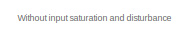
[diagram: root canvas - part 1/34, top center region]
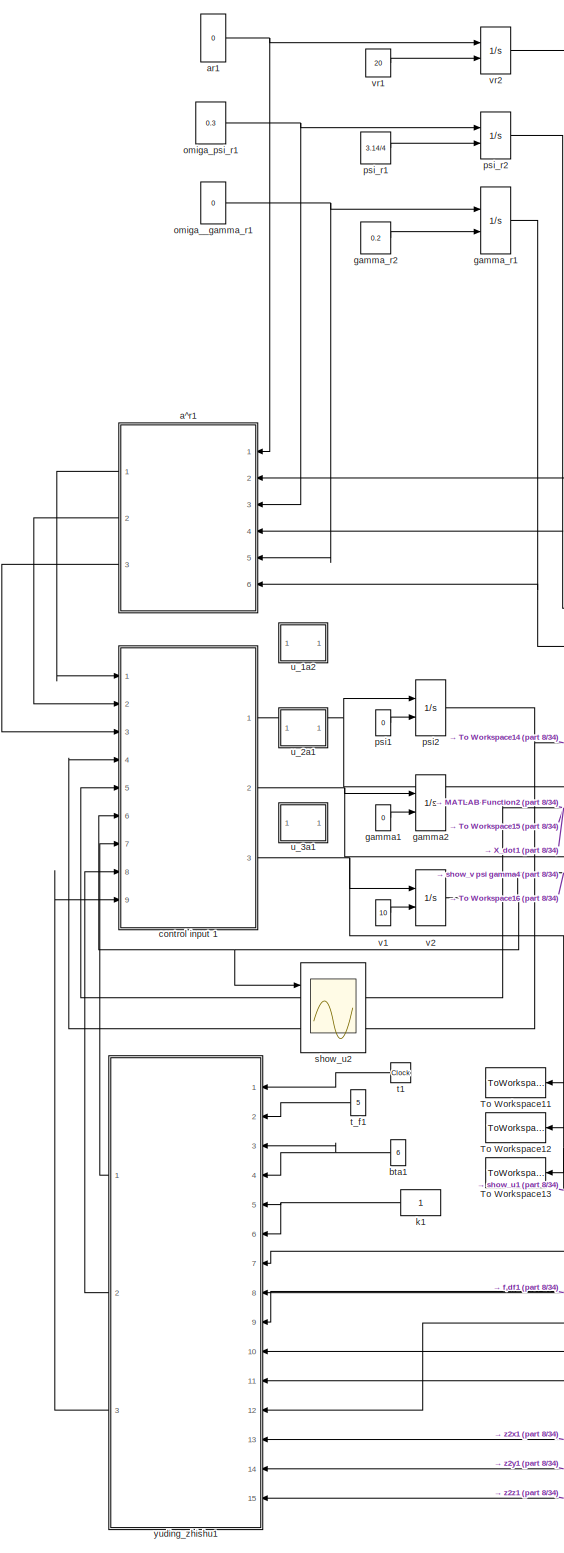
[diagram: root canvas - part 2/34, top center region]
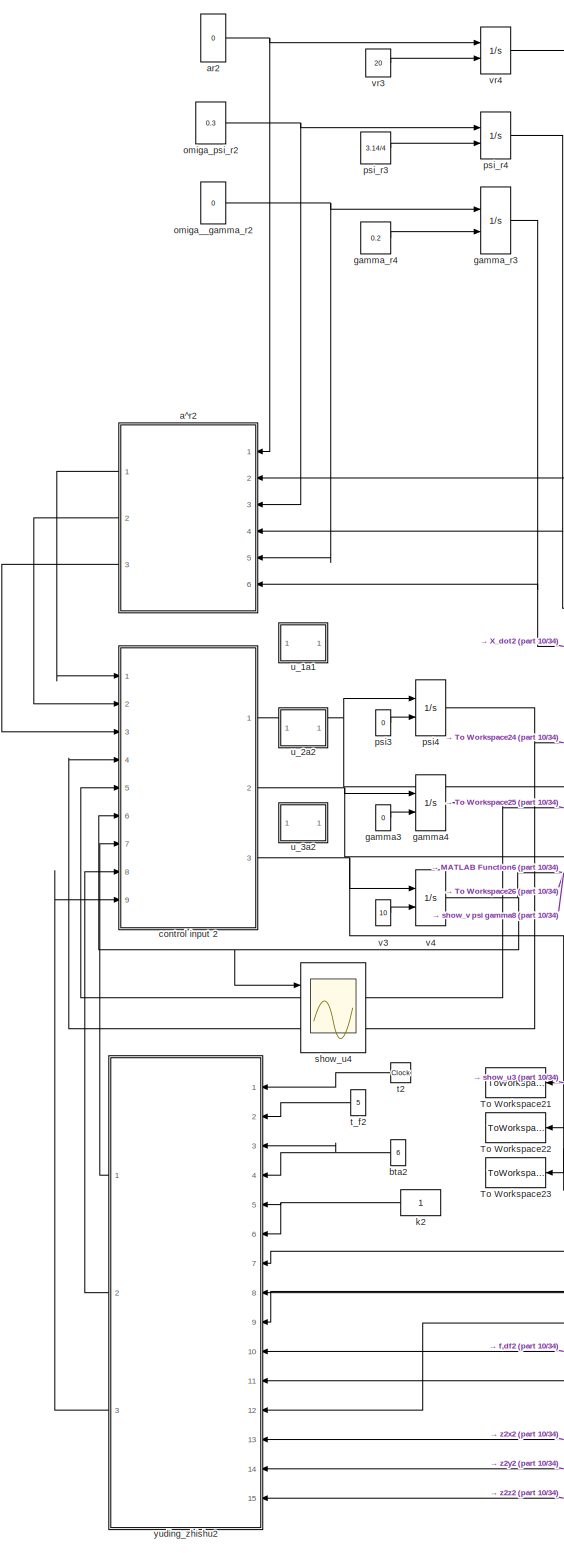
[diagram: root canvas - part 3/34, top right region]
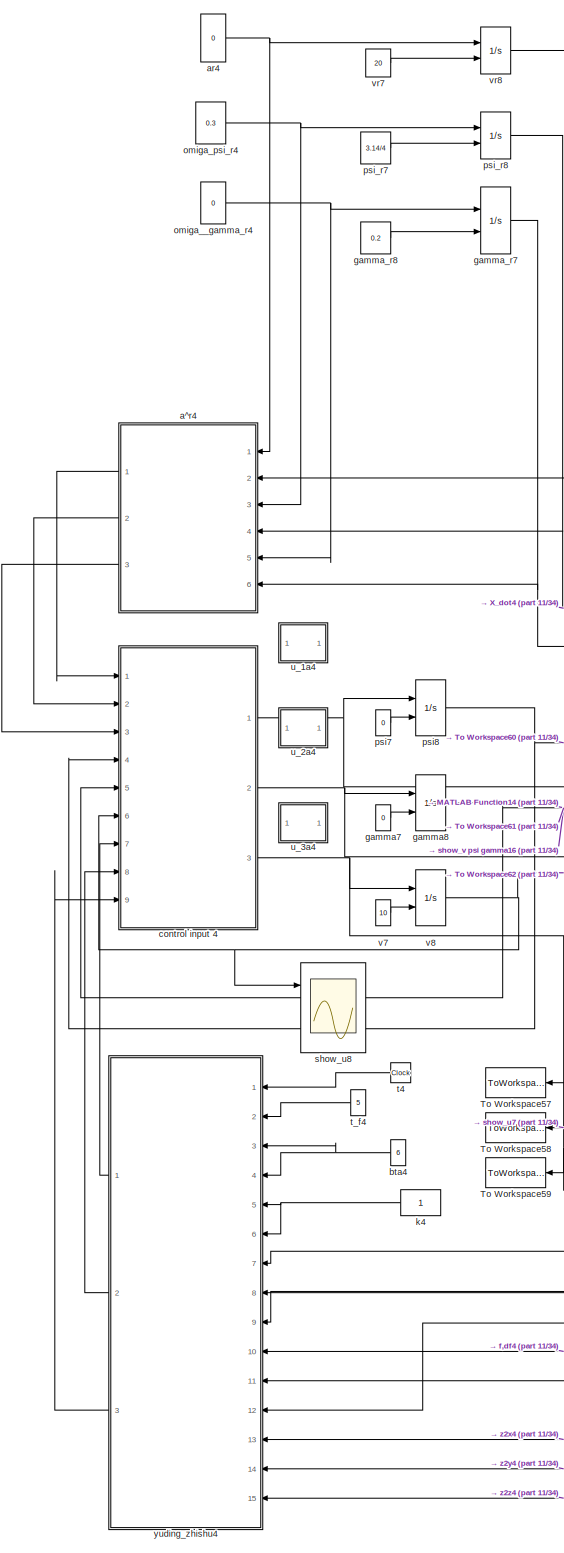
[diagram: root canvas - part 4/34, top left region]
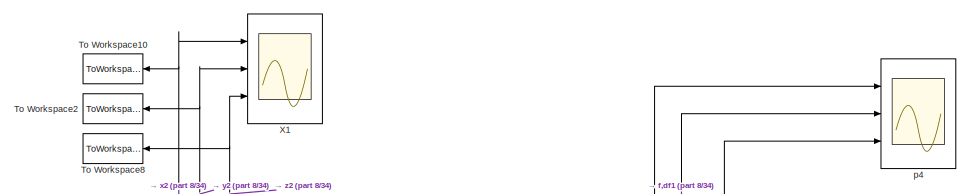
[diagram: root canvas - part 5/34, top center region]
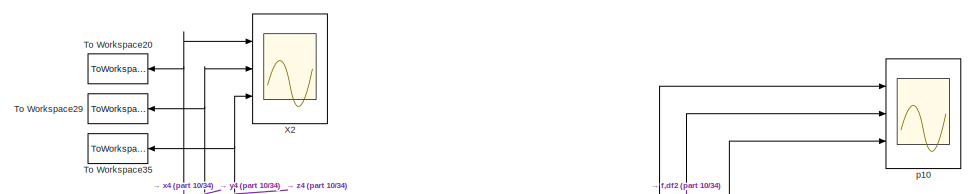
[diagram: root canvas - part 6/34, top right region]
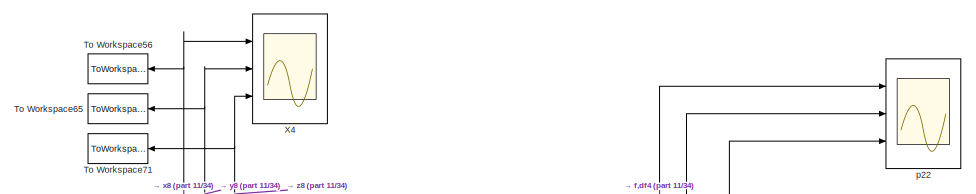
[diagram: root canvas - part 7/34, top left region]
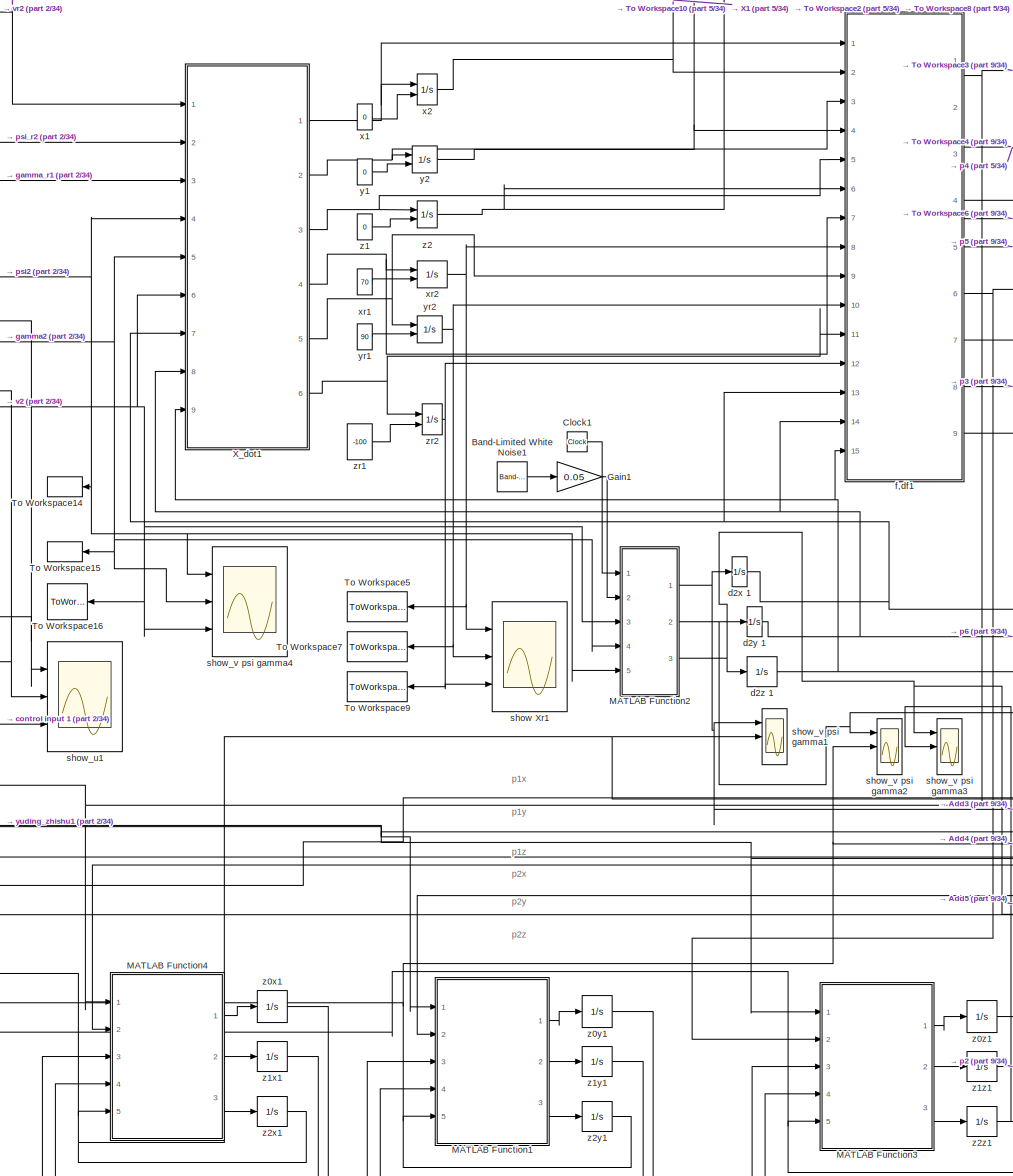
[diagram: root canvas - part 8/34, top center region]
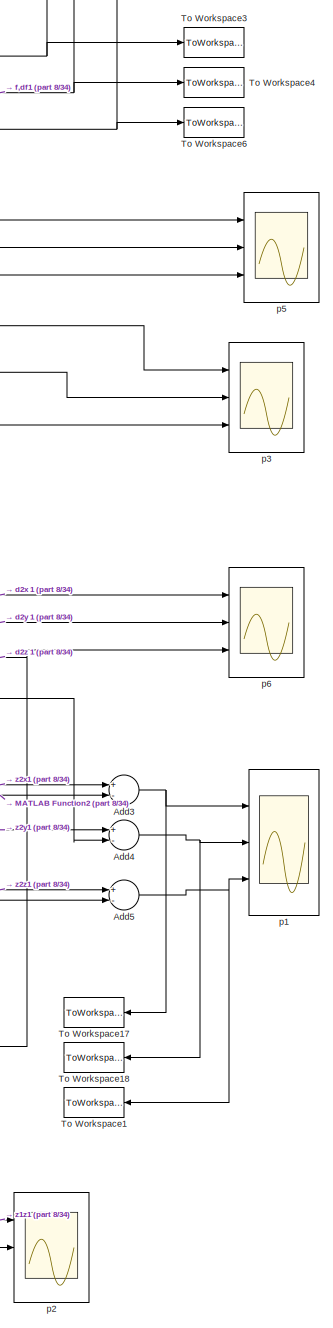
[diagram: root canvas - part 9/34, top center region]
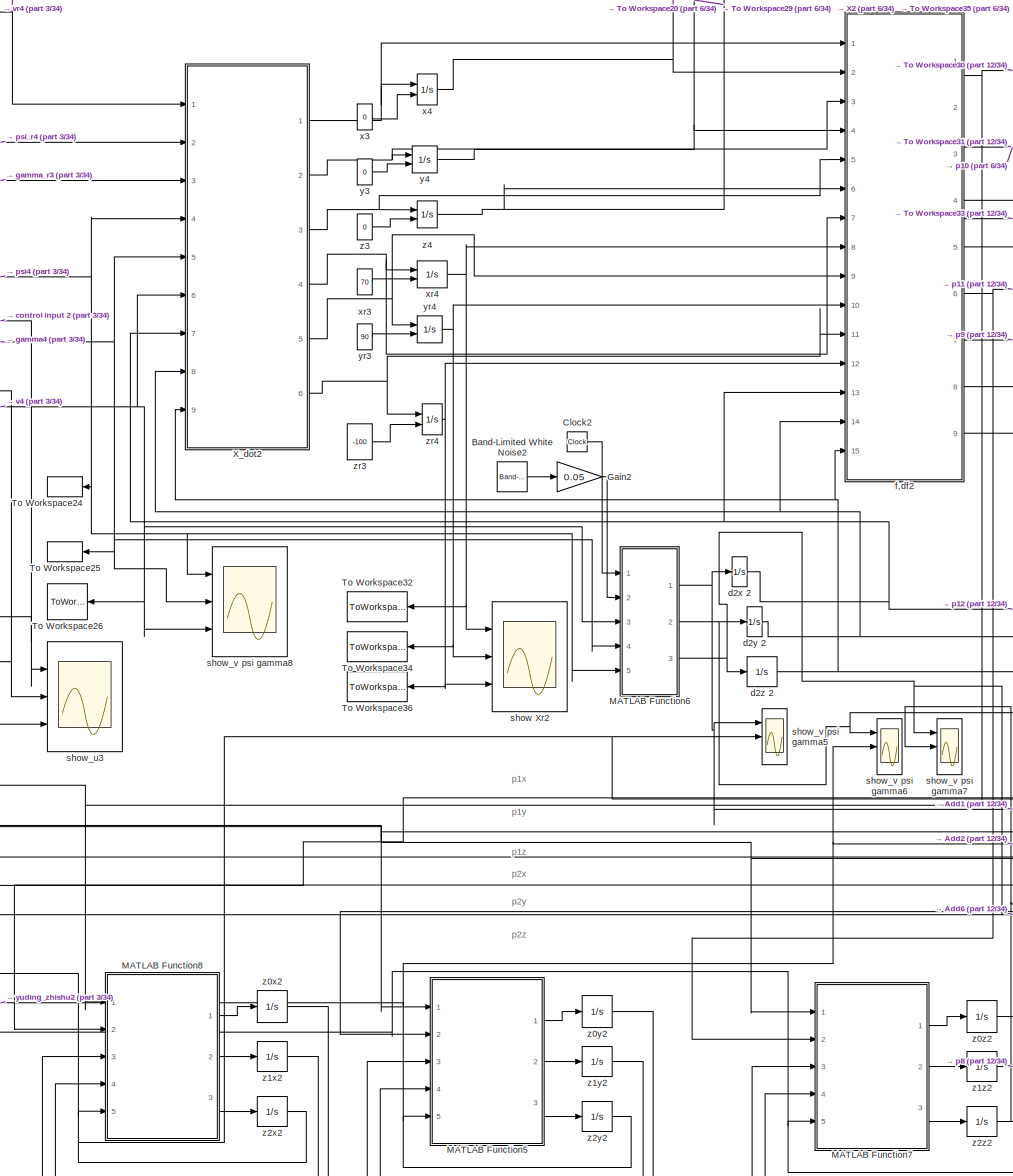
[diagram: root canvas - part 10/34, top right region]
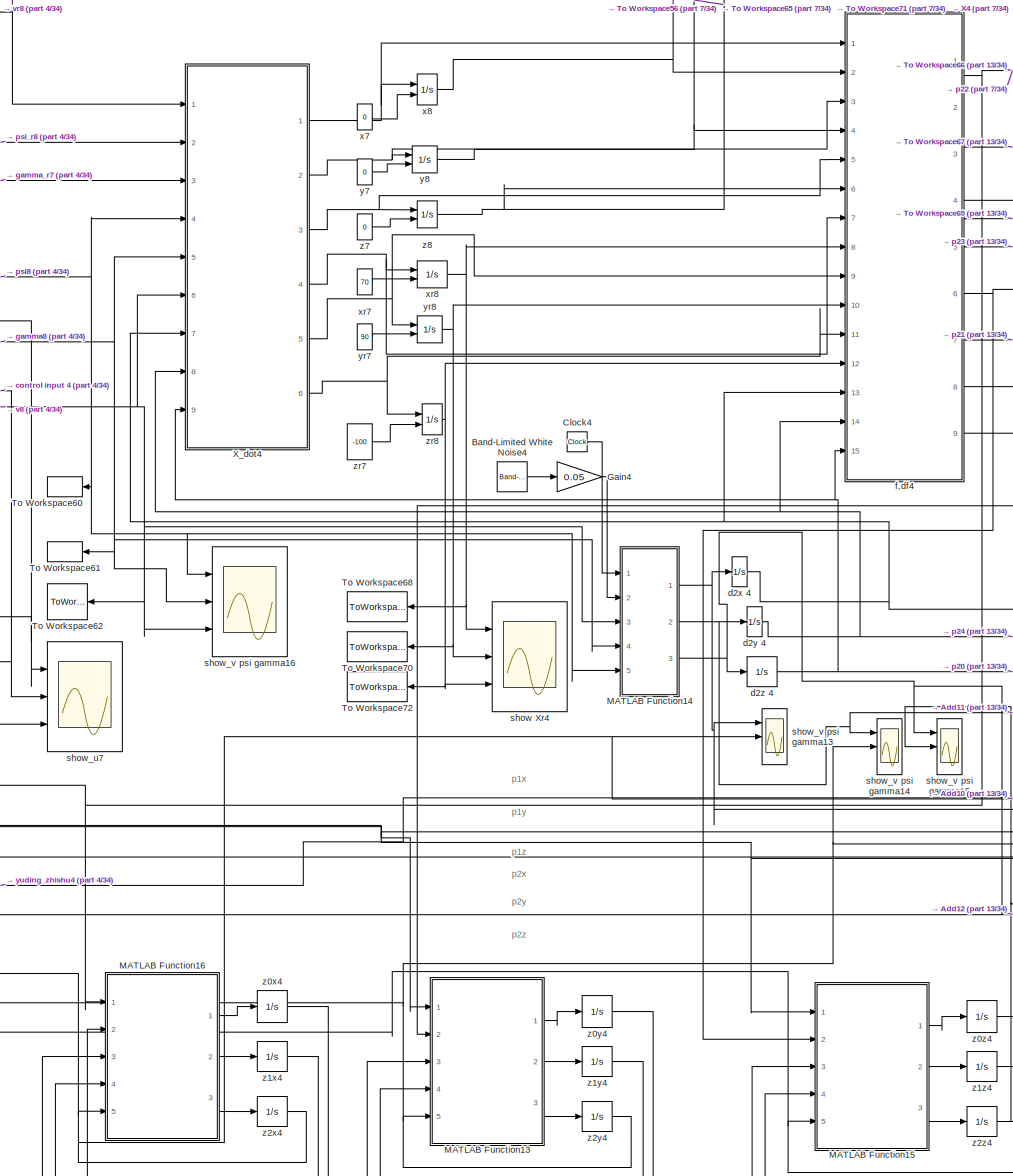
[diagram: root canvas - part 11/34, top left region]
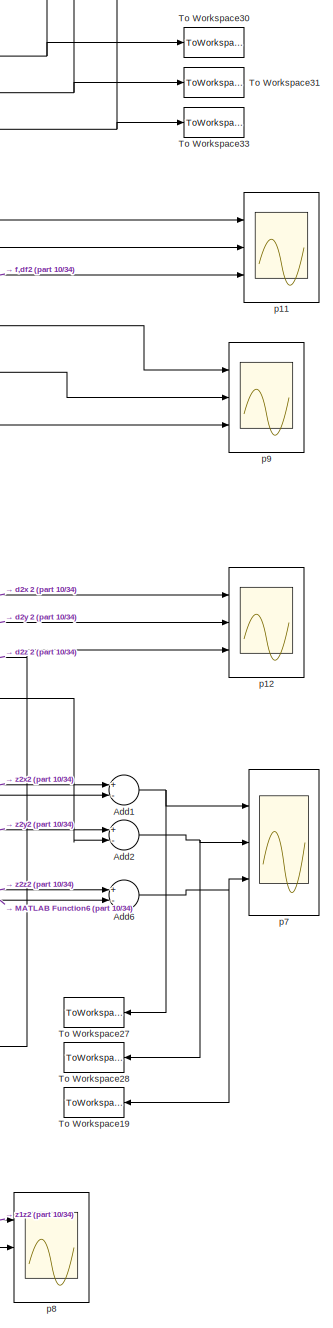
[diagram: root canvas - part 12/34, top right region]
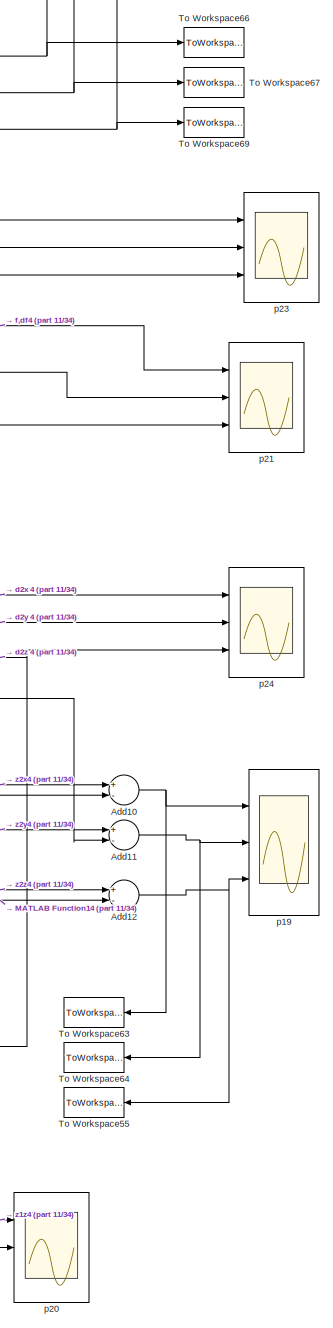
[diagram: root canvas - part 13/34, top left region]
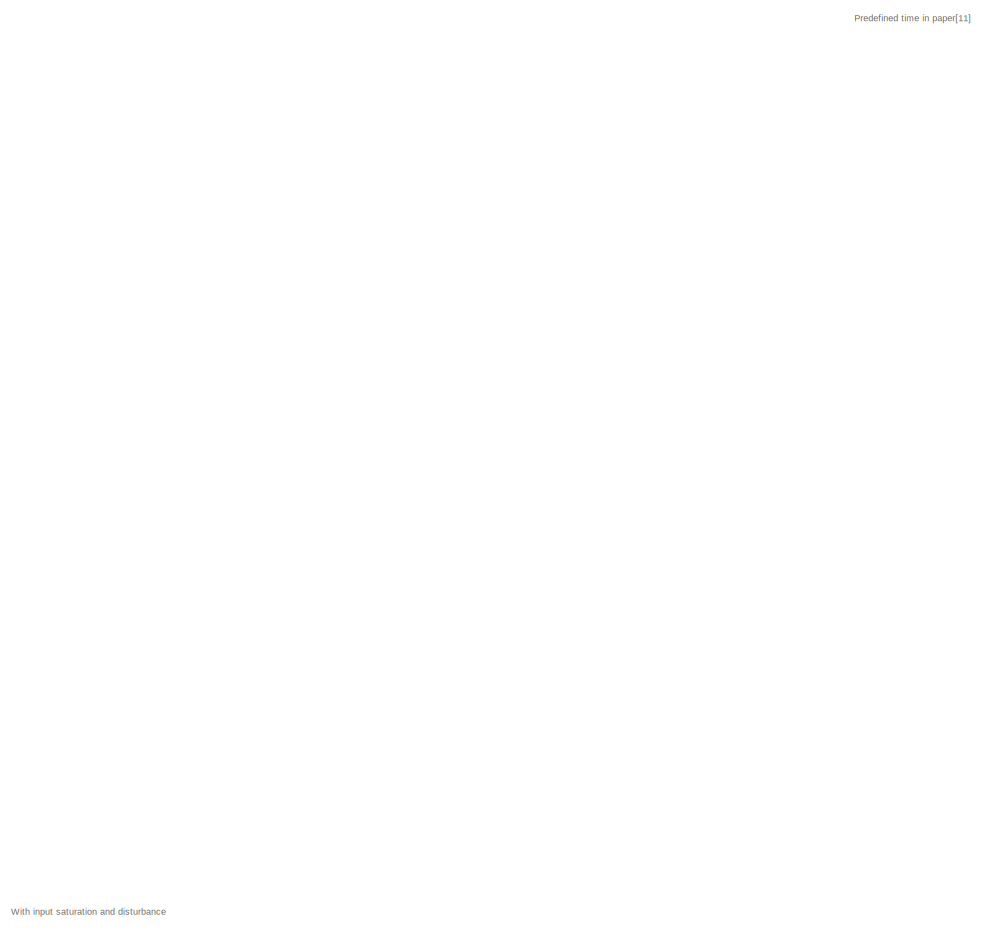
[diagram: root canvas - part 14/34, central region]
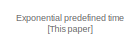
[diagram: root canvas - part 15/34, middle right region]
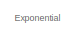
[diagram: root canvas - part 16/34, middle left region]
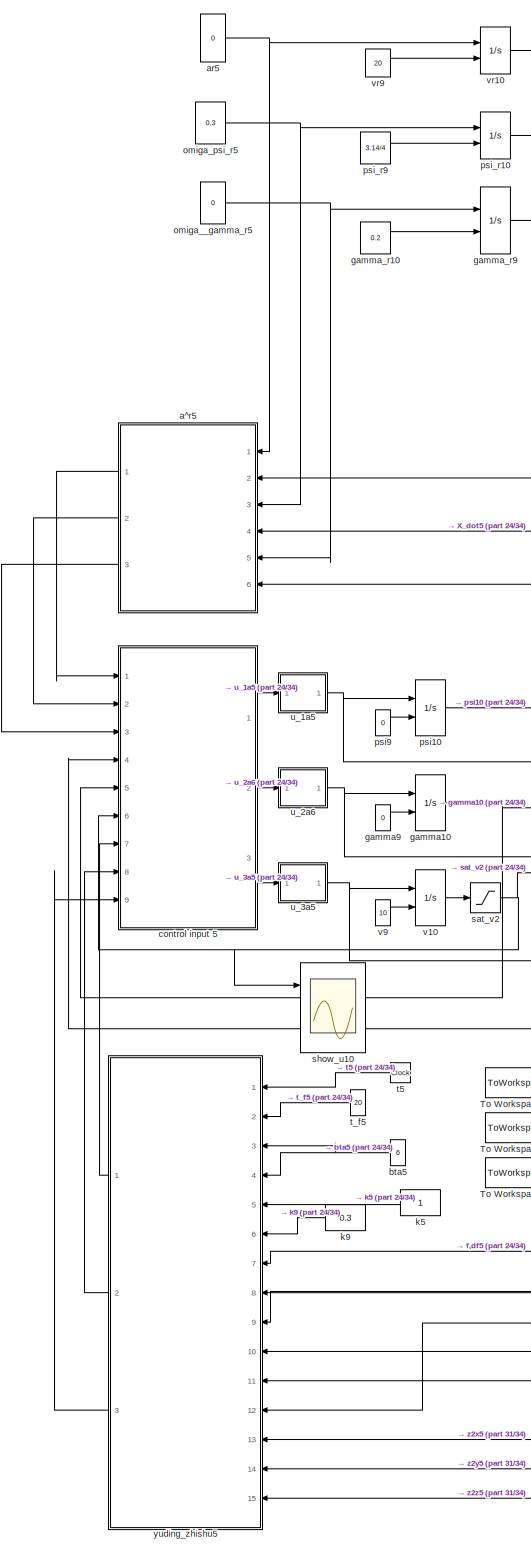
[diagram: root canvas - part 17/34, bottom left region]
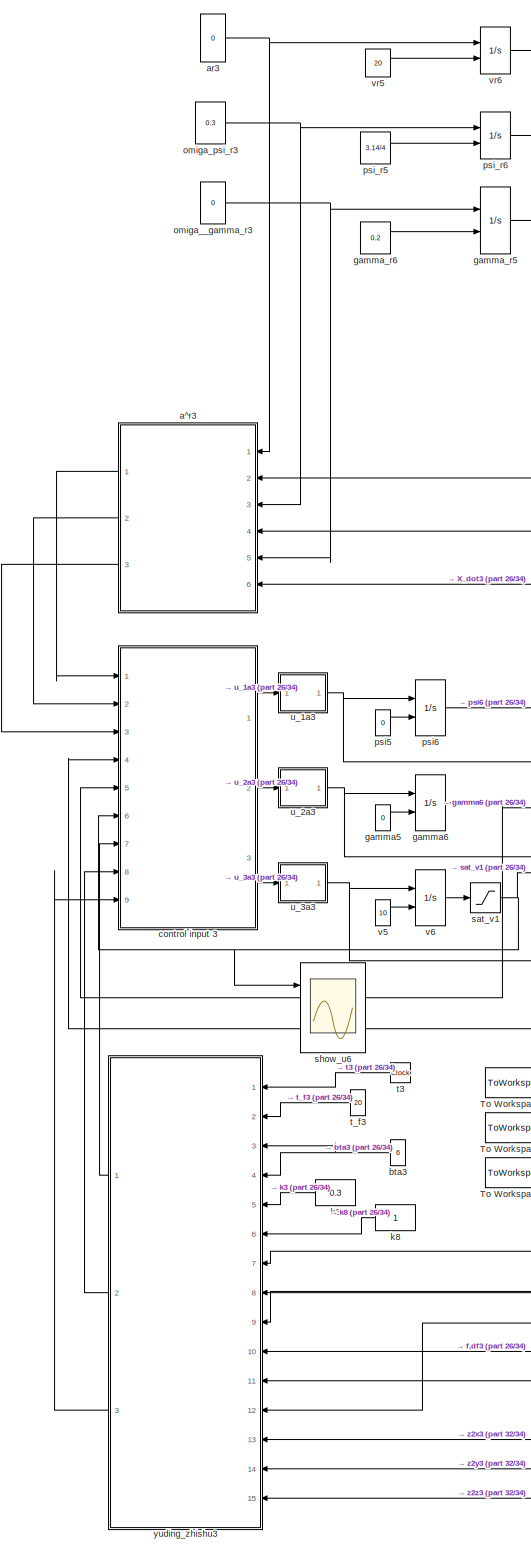
[diagram: root canvas - part 18/34, bottom center region]
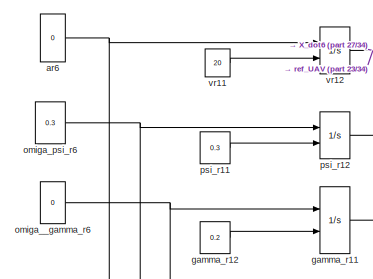
[diagram: root canvas - part 19/34, bottom right region]
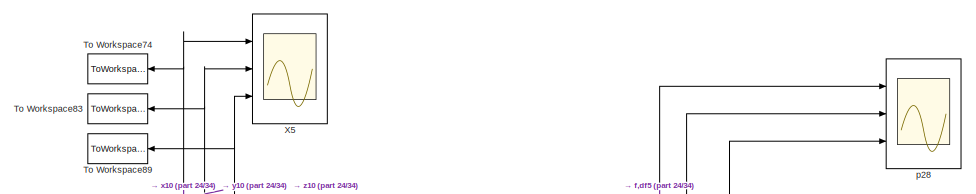
[diagram: root canvas - part 20/34, bottom left region]
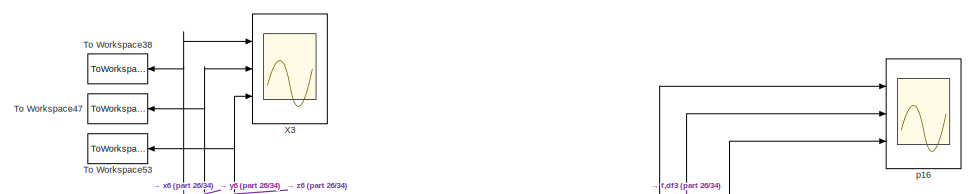
[diagram: root canvas - part 21/34, bottom center region]
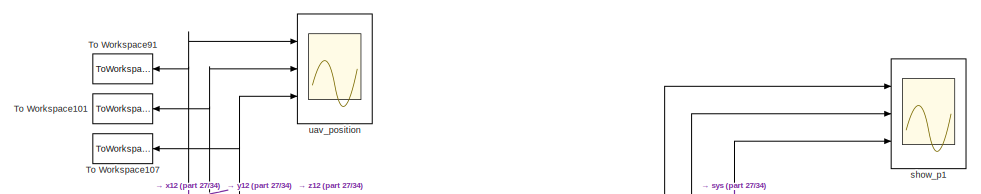
[diagram: root canvas - part 22/34, bottom right region]
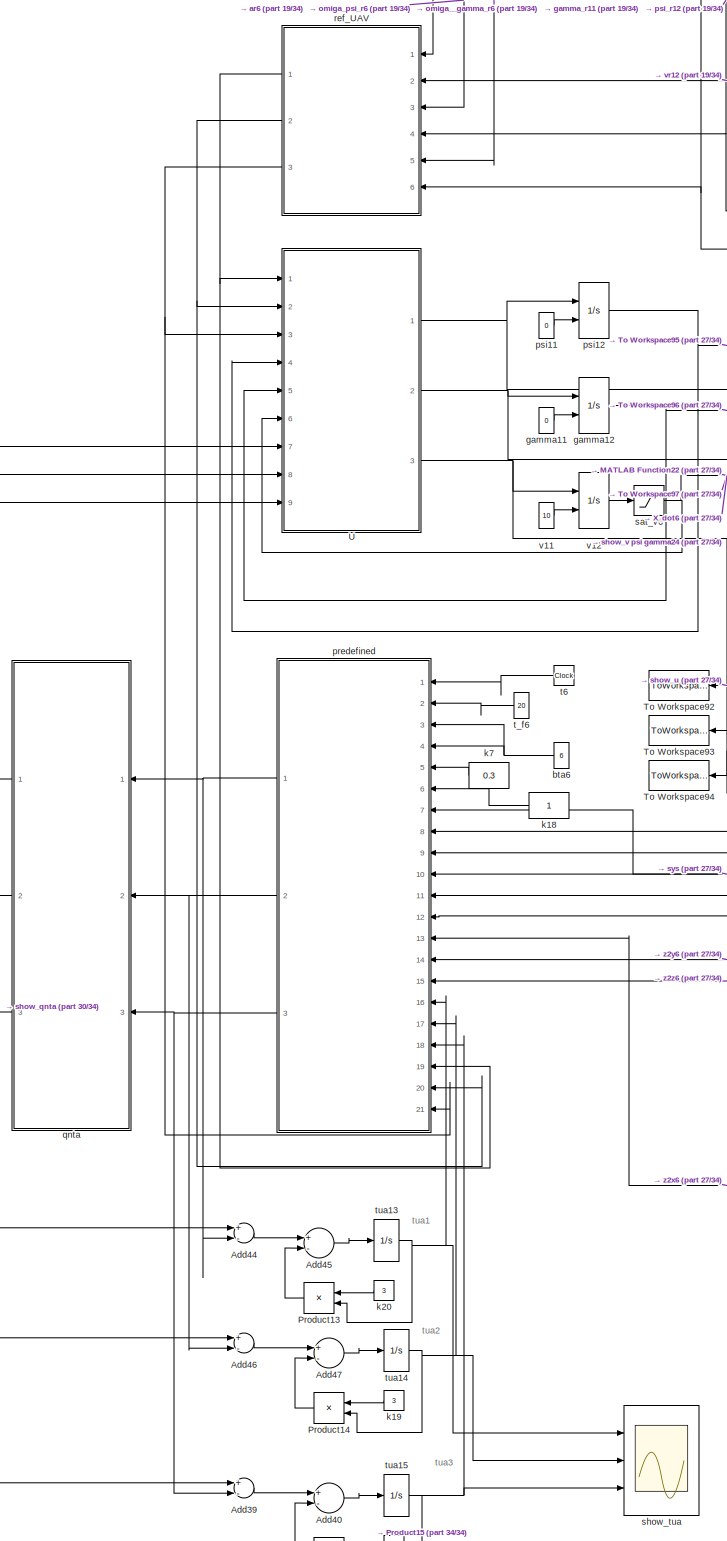
[diagram: root canvas - part 23/34, bottom right region]
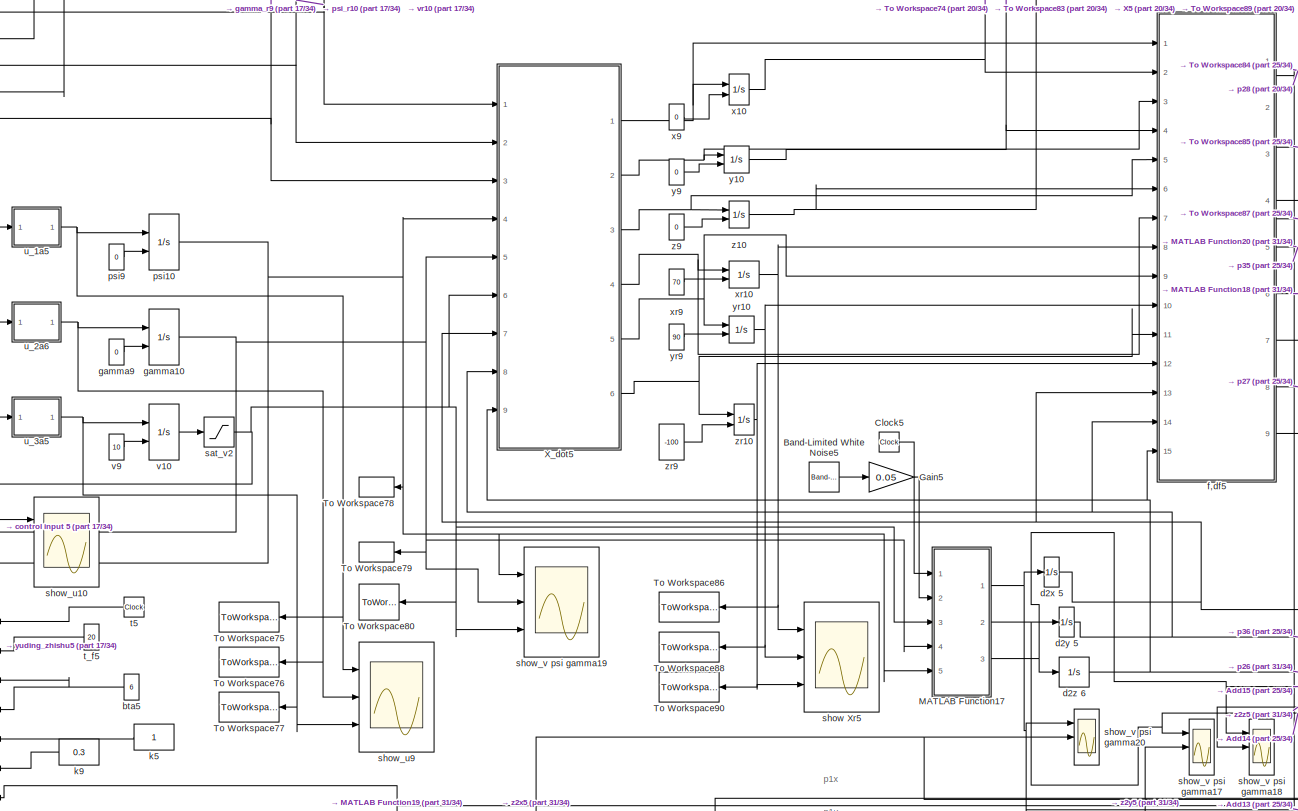
[diagram: root canvas - part 24/34, bottom left region]
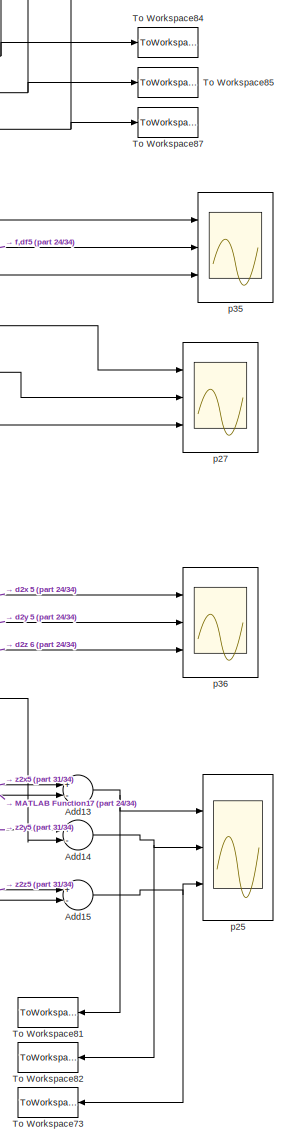
[diagram: root canvas - part 25/34, bottom left region]
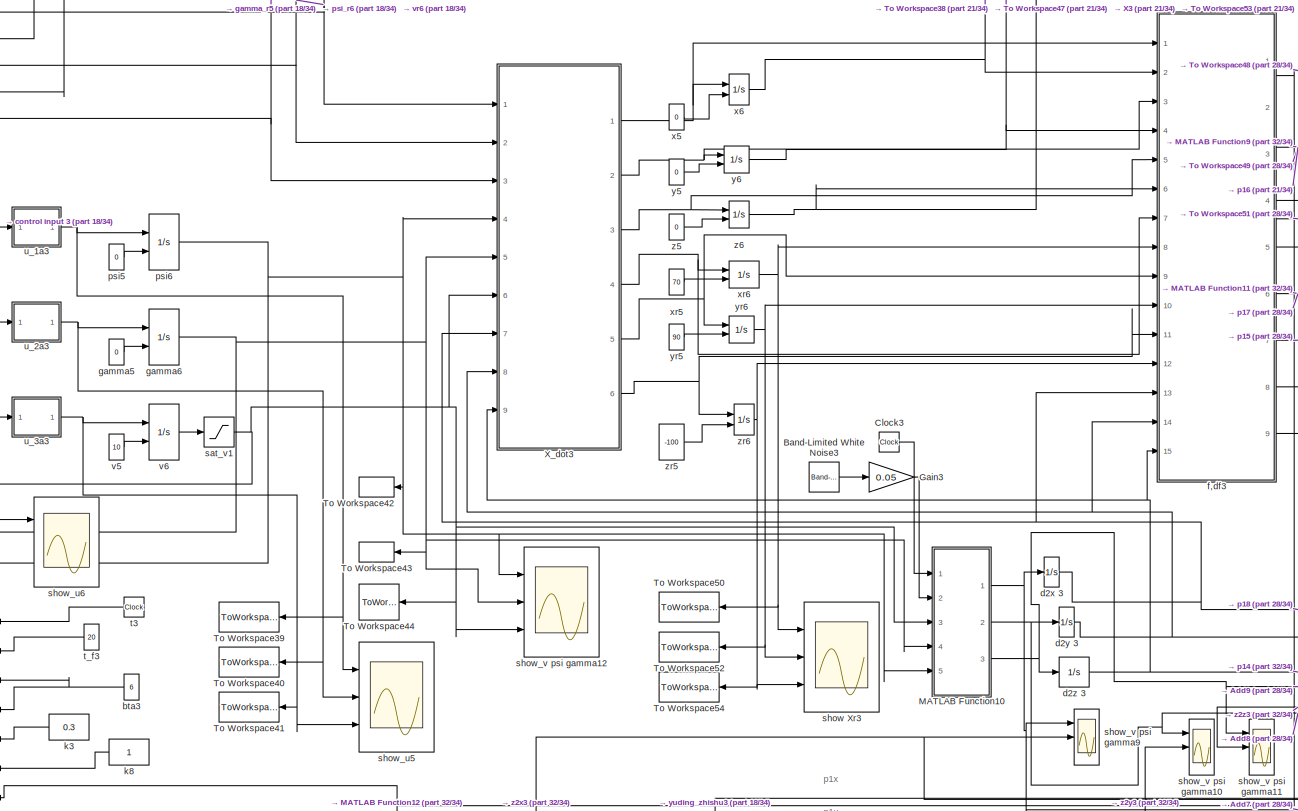
[diagram: root canvas - part 26/34, bottom center region]
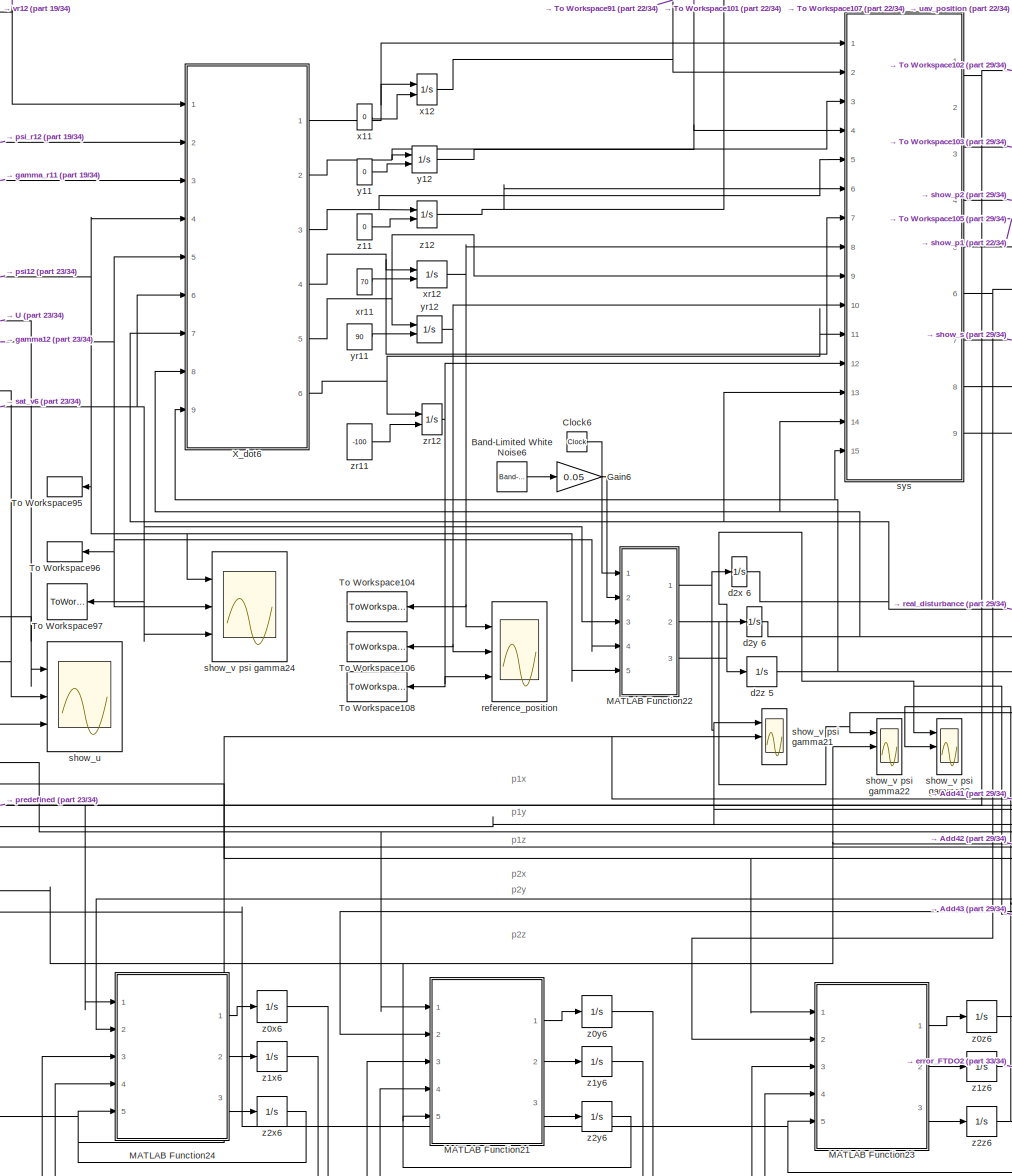
[diagram: root canvas - part 27/34, bottom right region]
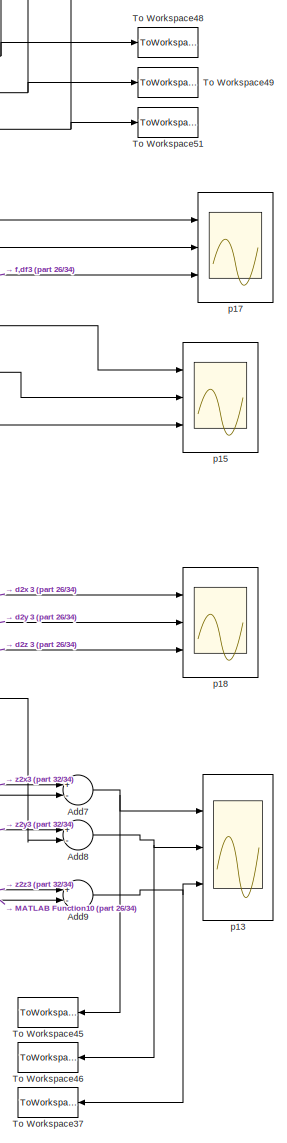
[diagram: root canvas - part 28/34, bottom center region]
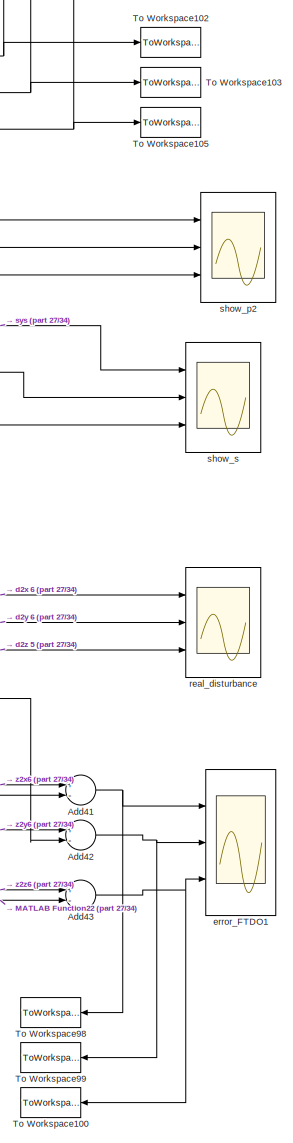
[diagram: root canvas - part 29/34, bottom right region]
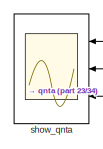
[diagram: root canvas - part 30/34, bottom right region]
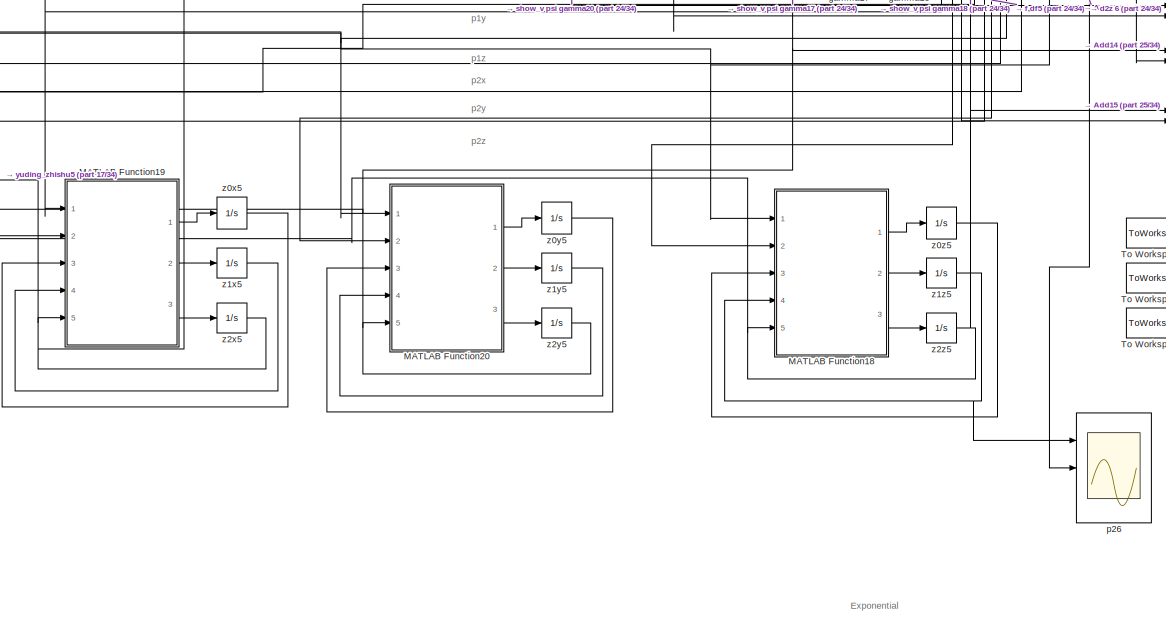
[diagram: root canvas - part 31/34, bottom left region]
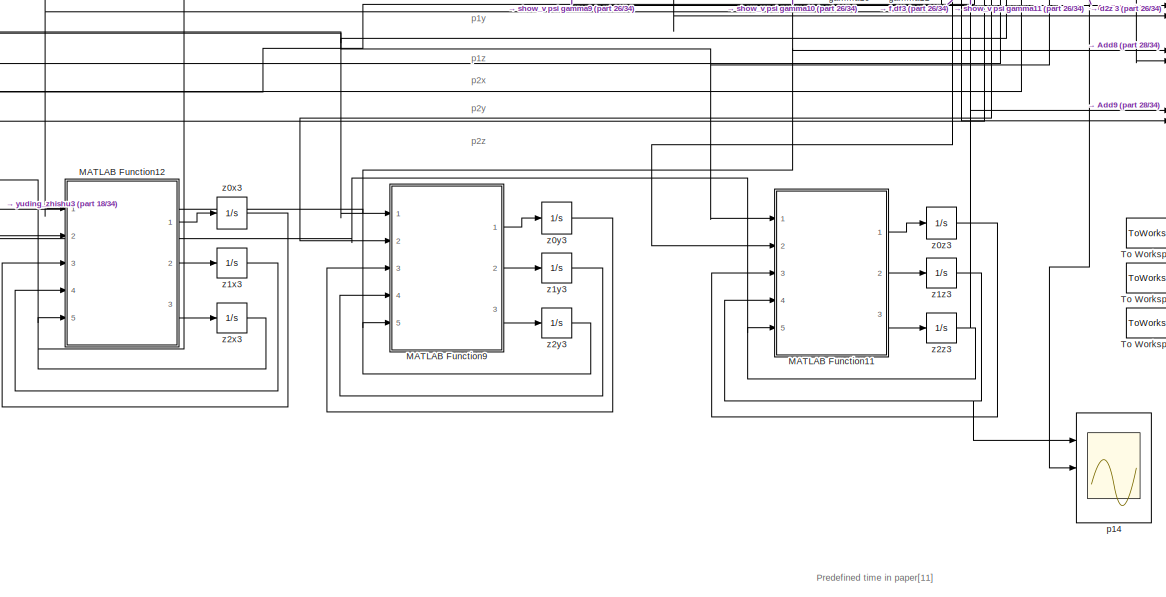
[diagram: root canvas - part 32/34, bottom center region]
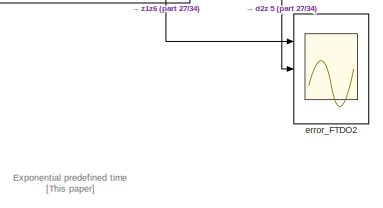
[diagram: root canvas - part 33/34, bottom right region]
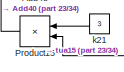
[diagram: root canvas - part 34/34, bottom right region]
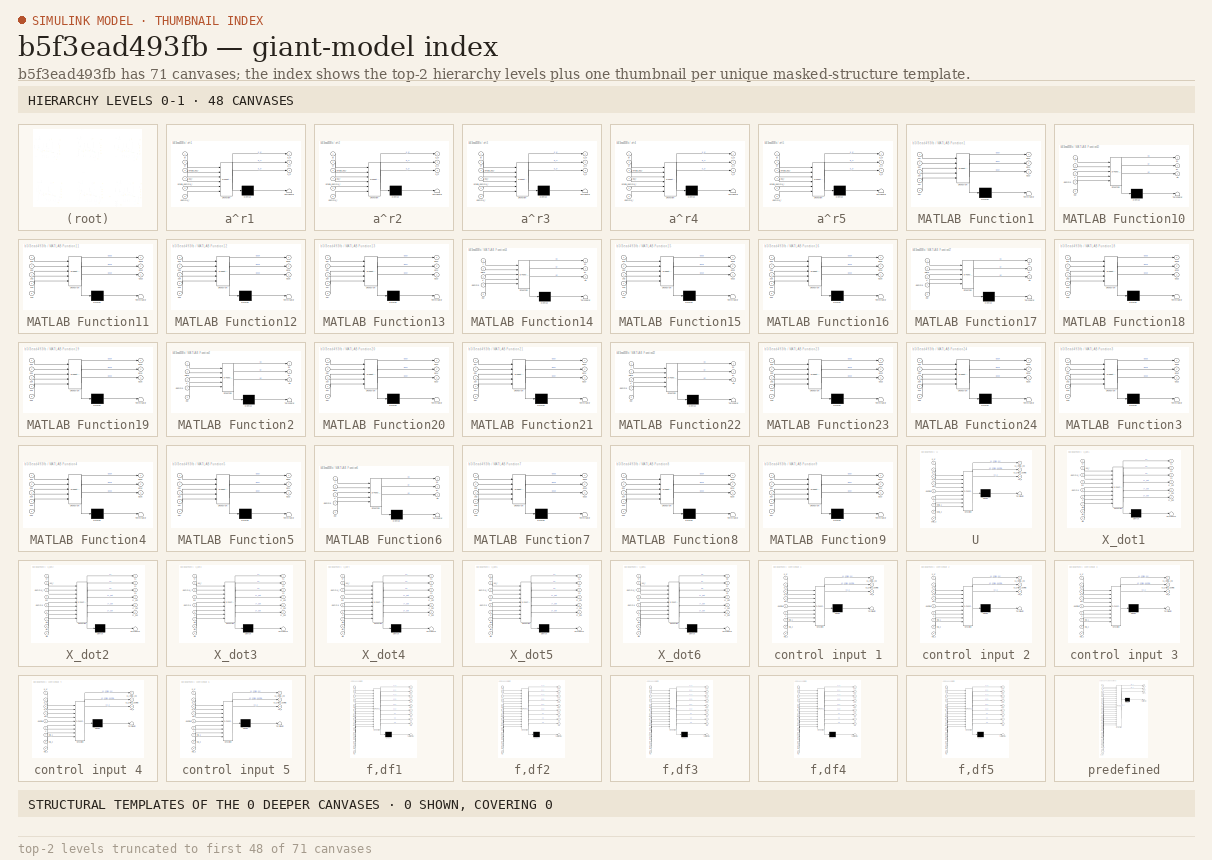
[diagram: thumbnail index - top-2 hierarchy levels (71 canvases (first 48 of 71 shown)) + 0 structural-template representatives of the remaining 0 canvases]
MODEL slx_b5f3ead493fb
KIND model
CONFIG AbsTol = auto
CONFIG EnableMultiTasking = off
CONFIG FixedStep = 0.001
CONFIG MaxStep = auto
CONFIG MinStep = auto
CONFIG RelTol = 1e-3
CONFIG SampleTimeConstraint = Unconstrained
CONFIG Solver = ode4
CONFIG SolverName = ode4
CONFIG StartTime = 0.0
CONFIG StopTime = 40
BLOCK [SubSystem]  a^r1
  ErrorFcn = Stateflow.Translate.translate
  PermitHierarchicalResolution = ExplicitOnly
  Ports = [6, 3]
  RequestExecContextInheritance = off
  SFBlockType = MATLAB Function
  TreatAsAtomicUnit = on
BLOCK [Demux]  a^r1/ Demux 
  DisplayOption = bar
  Outputs = 1
  Ports = [1, 1]
BLOCK [S-Function]  a^r1/ SFunction 
  EnableBusSupport = on
  FunctionName = sf_sfun
  PortCounts = [6 4]
  Ports = [6, 4]
  SFcnIsStateOwnerBlock = off
  SFunctionDeploymentMode = off
  Tag = Stateflow S-Function paper_Exponential_Predefined_825 1
BLOCK [Terminator]  a^r1/ Terminator 
BLOCK [Outport]  a^r1/a_xr
  IconDisplay = Port number
  VectorParamsAs1DForOutWhenUnconnected = on
BLOCK [Outport]  a^r1/a_yr
  IconDisplay = Port number
  Port = 2
  VectorParamsAs1DForOutWhenUnconnected = on
BLOCK [Outport]  a^r1/a_zr
  IconDisplay = Port number
  Port = 3
BLOCK [Inport]  a^r1/ar
  IconDisplay = Port number
BLOCK [Inport]  a^r1/gamma_r
  IconDisplay = Port number
  Port = 6
BLOCK [Inport]  a^r1/omiga_gamma_r
  IconDisplay = Port number
  Port = 5
BLOCK [Inport]  a^r1/omiga_psi_r
  IconDisplay = Port number
  Port = 3
BLOCK [Inport]  a^r1/psi_r
  IconDisplay = Port number
  Port = 4
BLOCK [Inport]  a^r1/vr
  IconDisplay = Port number
  Port = 2
BLOCK [SubSystem]  a^r2
  ErrorFcn = Stateflow.Translate.translate
  PermitHierarchicalResolution = ExplicitOnly
  Ports = [6, 3]
  RequestExecContextInheritance = off
  SFBlockType = MATLAB Function
  TreatAsAtomicUnit = on
BLOCK [Demux]  a^r2/ Demux 
  DisplayOption = bar
  Outputs = 1
  Ports = [1, 1]
BLOCK [S-Function]  a^r2/ SFunction 
  EnableBusSupport = on
  FunctionName = sf_sfun
  PortCounts = [6 4]
  Ports = [6, 4]
  SFcnIsStateOwnerBlock = off
  SFunctionDeploymentMode = off
  Tag = Stateflow S-Function paper_Exponential_Predefined_825 9
BLOCK [Terminator]  a^r2/ Terminator 
BLOCK [Outport]  a^r2/a_xr
  IconDisplay = Port number
  VectorParamsAs1DForOutWhenUnconnected = on
BLOCK [Outport]  a^r2/a_yr
  IconDisplay = Port number
  Port = 2
  VectorParamsAs1DForOutWhenUnconnected = on
BLOCK [Outport]  a^r2/a_zr
  IconDisplay = Port number
  Port = 3
BLOCK [Inport]  a^r2/ar
  IconDisplay = Port number
BLOCK [Inport]  a^r2/gamma_r
  IconDisplay = Port number
  Port = 6
BLOCK [Inport]  a^r2/omiga_gamma_r
  IconDisplay = Port number
  Port = 5
BLOCK [Inport]  a^r2/omiga_psi_r
  IconDisplay = Port number
  Port = 3
BLOCK [Inport]  a^r2/psi_r
  IconDisplay = Port number
  Port = 4
BLOCK [Inport]  a^r2/vr
  IconDisplay = Port number
  Port = 2
BLOCK [SubSystem]  a^r3
  ErrorFcn = Stateflow.Translate.translate
  PermitHierarchicalResolution = ExplicitOnly
  Ports = [6, 3]
  RequestExecContextInheritance = off
  SFBlockType = MATLAB Function
  TreatAsAtomicUnit = on
BLOCK [Demux]  a^r3/ Demux 
  DisplayOption = bar
  Outputs = 1
  Ports = [1, 1]
BLOCK [S-Function]  a^r3/ SFunction 
  EnableBusSupport = on
  FunctionName = sf_sfun
  PortCounts = [6 4]
  Ports = [6, 4]
  SFcnIsStateOwnerBlock = off
  SFunctionDeploymentMode = off
  Tag = Stateflow S-Function paper_Exponential_Predefined_825 25
BLOCK [Terminator]  a^r3/ Terminator 
BLOCK [Outport]  a^r3/a_xr
  IconDisplay = Port number
  VectorParamsAs1DForOutWhenUnconnected = on
BLOCK [Outport]  a^r3/a_yr
  IconDisplay = Port number
  Port = 2
  VectorParamsAs1DForOutWhenUnconnected = on
BLOCK [Outport]  a^r3/a_zr
  IconDisplay = Port number
  Port = 3
BLOCK [Inport]  a^r3/ar
  IconDisplay = Port number
BLOCK [Inport]  a^r3/gamma_r
  IconDisplay = Port number
  Port = 6
BLOCK [Inport]  a^r3/omiga_gamma_r
  IconDisplay = Port number
  Port = 5
BLOCK [Inport]  a^r3/omiga_psi_r
  IconDisplay = Port number
  Port = 3
BLOCK [Inport]  a^r3/psi_r
  IconDisplay = Port number
  Port = 4
BLOCK [Inport]  a^r3/vr
  IconDisplay = Port number
  Port = 2
BLOCK [SubSystem]  a^r4
  ErrorFcn = Stateflow.Translate.translate
  PermitHierarchicalResolution = ExplicitOnly
  Ports = [6, 3]
  RequestExecContextInheritance = off
  SFBlockType = MATLAB Function
  TreatAsAtomicUnit = on
BLOCK [Demux]  a^r4/ Demux 
  DisplayOption = bar
  Outputs = 1
  Ports = [1, 1]
BLOCK [S-Function]  a^r4/ SFunction 
  EnableBusSupport = on
  FunctionName = sf_sfun
  PortCounts = [6 4]
  Ports = [6, 4]
  SFcnIsStateOwnerBlock = off
  SFunctionDeploymentMode = off
  Tag = Stateflow S-Function paper_Exponential_Predefined_825 37
BLOCK [Terminator]  a^r4/ Terminator 
BLOCK [Outport]  a^r4/a_xr
  IconDisplay = Port number
  VectorParamsAs1DForOutWhenUnconnected = on
BLOCK [Outport]  a^r4/a_yr
  IconDisplay = Port number
  Port = 2
  VectorParamsAs1DForOutWhenUnconnected = on
BLOCK [Outport]  a^r4/a_zr
  IconDisplay = Port number
  Port = 3
BLOCK [Inport]  a^r4/ar
  IconDisplay = Port number
BLOCK [Inport]  a^r4/gamma_r
  IconDisplay = Port number
  Port = 6
BLOCK [Inport]  a^r4/omiga_gamma_r
  IconDisplay = Port number
  Port = 5
BLOCK [Inport]  a^r4/omiga_psi_r
  IconDisplay = Port number
  Port = 3
BLOCK [Inport]  a^r4/psi_r
  IconDisplay = Port number
  Port = 4
BLOCK [Inport]  a^r4/vr
  IconDisplay = Port number
  Port = 2
BLOCK [SubSystem]  a^r5
  ErrorFcn = Stateflow.Translate.translate
  PermitHierarchicalResolution = ExplicitOnly
  Ports = [6, 3]
  RequestExecContextInheritance = off
  SFBlockType = MATLAB Function
  TreatAsAtomicUnit = on
BLOCK [Demux]  a^r5/ Demux 
  DisplayOption = bar
  Outputs = 1
  Ports = [1, 1]
BLOCK [S-Function]  a^r5/ SFunction 
  EnableBusSupport = on
  FunctionName = sf_sfun
  PortCounts = [6 4]
  Ports = [6, 4]
  SFcnIsStateOwnerBlock = off
  SFunctionDeploymentMode = off
  Tag = Stateflow S-Function paper_Exponential_Predefined_825 49
BLOCK [Terminator]  a^r5/ Terminator 
BLOCK [Outport]  a^r5/a_xr
  IconDisplay = Port number
  VectorParamsAs1DForOutWhenUnconnected = on
BLOCK [Outport]  a^r5/a_yr
  IconDisplay = Port number
  Port = 2
  VectorParamsAs1DForOutWhenUnconnected = on
BLOCK [Outport]  a^r5/a_zr
  IconDisplay = Port number
  Port = 3
BLOCK [Inport]  a^r5/ar
  IconDisplay = Port number
BLOCK [Inport]  a^r5/gamma_r
  IconDisplay = Port number
  Port = 6
BLOCK [Inport]  a^r5/omiga_gamma_r
  IconDisplay = Port number
  Port = 5
BLOCK [Inport]  a^r5/omiga_psi_r
  IconDisplay = Port number
  Port = 3
BLOCK [Inport]  a^r5/psi_r
  IconDisplay = Port number
  Port = 4
BLOCK [Inport]  a^r5/vr
  IconDisplay = Port number
  Port = 2
BLOCK [Sum] Add1
  InputSameDT = off
  Inputs = +-
  OutDataTypeStr = Inherit: Inherit via internal rule
  Ports = [2, 1]
  SaturateOnIntegerOverflow = off
BLOCK [Sum] Add10
  InputSameDT = off
  Inputs = +-
  OutDataTypeStr = Inherit: Inherit via internal rule
  Ports = [2, 1]
  SaturateOnIntegerOverflow = off
BLOCK [Sum] Add11
  InputSameDT = off
  Inputs = +-
  OutDataTypeStr = Inherit: Inherit via internal rule
  Ports = [2, 1]
  SaturateOnIntegerOverflow = off
BLOCK [Sum] Add12
  InputSameDT = off
  Inputs = +-
  OutDataTypeStr = Inherit: Inherit via internal rule
  Ports = [2, 1]
  SaturateOnIntegerOverflow = off
BLOCK [Sum] Add13
  InputSameDT = off
  Inputs = +-
  OutDataTypeStr = Inherit: Inherit via internal rule
  Ports = [2, 1]
  SaturateOnIntegerOverflow = off
BLOCK [Sum] Add14
  InputSameDT = off
  Inputs = +-
  OutDataTypeStr = Inherit: Inherit via internal rule
  Ports = [2, 1]
  SaturateOnIntegerOverflow = off
BLOCK [Sum] Add15
  InputSameDT = off
  Inputs = +-
  OutDataTypeStr = Inherit: Inherit via internal rule
  Ports = [2, 1]
  SaturateOnIntegerOverflow = off
BLOCK [Sum] Add2
  InputSameDT = off
  Inputs = +-
  OutDataTypeStr = Inherit: Inherit via internal rule
  Ports = [2, 1]
  SaturateOnIntegerOverflow = off
BLOCK [Sum] Add3
  InputSameDT = off
  Inputs = +-
  OutDataTypeStr = Inherit: Inherit via internal rule
  Ports = [2, 1]
  SaturateOnIntegerOverflow = off
BLOCK [Sum] Add39
  InputSameDT = off
  Inputs = +-
  OutDataTypeStr = Inherit: Inherit via internal rule
  Ports = [2, 1]
  SaturateOnIntegerOverflow = off
BLOCK [Sum] Add4
  InputSameDT = off
  Inputs = +-
  OutDataTypeStr = Inherit: Inherit via internal rule
  Ports = [2, 1]
  SaturateOnIntegerOverflow = off
BLOCK [Sum] Add40
  InputSameDT = off
  Inputs = +-
  OutDataTypeStr = Inherit: Inherit via internal rule
  Ports = [2, 1]
  SaturateOnIntegerOverflow = off
BLOCK [Sum] Add41
  InputSameDT = off
  Inputs = +-
  OutDataTypeStr = Inherit: Inherit via internal rule
  Ports = [2, 1]
  SaturateOnIntegerOverflow = off
BLOCK [Sum] Add42
  InputSameDT = off
  Inputs = +-
  OutDataTypeStr = Inherit: Inherit via internal rule
  Ports = [2, 1]
  SaturateOnIntegerOverflow = off
BLOCK [Sum] Add43
  InputSameDT = off
  Inputs = +-
  OutDataTypeStr = Inherit: Inherit via internal rule
  Ports = [2, 1]
  SaturateOnIntegerOverflow = off
BLOCK [Sum] Add44
  InputSameDT = off
  Inputs = +-
  OutDataTypeStr = Inherit: Inherit via internal rule
  Ports = [2, 1]
  SaturateOnIntegerOverflow = off
BLOCK [Sum] Add45
  InputSameDT = off
  Inputs = +-
  OutDataTypeStr = Inherit: Inherit via internal rule
  Ports = [2, 1]
  SaturateOnIntegerOverflow = off
BLOCK [Sum] Add46
  InputSameDT = off
  Inputs = +-
  OutDataTypeStr = Inherit: Inherit via internal rule
  Ports = [2, 1]
  SaturateOnIntegerOverflow = off
BLOCK [Sum] Add47
  InputSameDT = off
  Inputs = +-
  OutDataTypeStr = Inherit: Inherit via internal rule
  Ports = [2, 1]
  SaturateOnIntegerOverflow = off
BLOCK [Sum] Add5
  InputSameDT = off
  Inputs = +-
  OutDataTypeStr = Inherit: Inherit via internal rule
  Ports = [2, 1]
  SaturateOnIntegerOverflow = off
BLOCK [Sum] Add6
  InputSameDT = off
  Inputs = +-
  OutDataTypeStr = Inherit: Inherit via internal rule
  Ports = [2, 1]
  SaturateOnIntegerOverflow = off
BLOCK [Sum] Add7
  InputSameDT = off
  Inputs = +-
  OutDataTypeStr = Inherit: Inherit via internal rule
  Ports = [2, 1]
  SaturateOnIntegerOverflow = off
BLOCK [Sum] Add8
  InputSameDT = off
  Inputs = +-
  OutDataTypeStr = Inherit: Inherit via internal rule
  Ports = [2, 1]
  SaturateOnIntegerOverflow = off
BLOCK [Sum] Add9
  InputSameDT = off
  Inputs = +-
  OutDataTypeStr = Inherit: Inherit via internal rule
  Ports = [2, 1]
  SaturateOnIntegerOverflow = off
BLOCK [Reference] Band-Limited White Noise1  REF=simulink/Sources/Band-Limited
White Noise
  Ports = [0, 1]
  SourceBlock = simulink/Sources/Band-Limited\nWhite Noise
  SourceProductBaseCode = SL
  SourceProductName = Simulink
  SourceType = Band-Limited White Noise.
BLOCK [Reference] Band-Limited White Noise2  REF=simulink/Sources/Band-Limited
White Noise
  Ports = [0, 1]
  SourceBlock = simulink/Sources/Band-Limited\nWhite Noise
  SourceProductBaseCode = SL
  SourceProductName = Simulink
  SourceType = Band-Limited White Noise.
BLOCK [Reference] Band-Limited White Noise3  REF=simulink/Sources/Band-Limited
White Noise
  Ports = [0, 1]
  SourceBlock = simulink/Sources/Band-Limited\nWhite Noise
  SourceProductBaseCode = SL
  SourceProductName = Simulink
  SourceType = Band-Limited White Noise.
BLOCK [Reference] Band-Limited White Noise4  REF=simulink/Sources/Band-Limited
White Noise
  Ports = [0, 1]
  SourceBlock = simulink/Sources/Band-Limited\nWhite Noise
  SourceProductBaseCode = SL
  SourceProductName = Simulink
  SourceType = Band-Limited White Noise.
BLOCK [Reference] Band-Limited White Noise5  REF=simulink/Sources/Band-Limited
White Noise
  Ports = [0, 1]
  SourceBlock = simulink/Sources/Band-Limited\nWhite Noise
  SourceProductBaseCode = SL
  SourceProductName = Simulink
  SourceType = Band-Limited White Noise.
BLOCK [Reference] Band-Limited White Noise6  REF=simulink/Sources/Band-Limited
White Noise
  Ports = [0, 1]
  SourceBlock = simulink/Sources/Band-Limited\nWhite Noise
  SourceProductBaseCode = SL
  SourceProductName = Simulink
  SourceType = Band-Limited White Noise.
BLOCK [Clock] Clock1
BLOCK [Clock] Clock2
BLOCK [Clock] Clock3
BLOCK [Clock] Clock4
BLOCK [Clock] Clock5
BLOCK [Clock] Clock6
BLOCK [Gain] Gain1
  Gain = 0.05
  OutDataTypeStr = Inherit: Inherit via internal rule
  ParamDataTypeStr = Inherit: Inherit via internal rule
  SaturateOnIntegerOverflow = off
BLOCK [Gain] Gain2
  Gain = 0.05
  OutDataTypeStr = Inherit: Inherit via internal rule
  ParamDataTypeStr = Inherit: Inherit via internal rule
  SaturateOnIntegerOverflow = off
BLOCK [Gain] Gain3
  Gain = 0.05
  OutDataTypeStr = Inherit: Inherit via internal rule
  ParamDataTypeStr = Inherit: Inherit via internal rule
  SaturateOnIntegerOverflow = off
BLOCK [Gain] Gain4
  Gain = 0.05
  OutDataTypeStr = Inherit: Inherit via internal rule
  ParamDataTypeStr = Inherit: Inherit via internal rule
  SaturateOnIntegerOverflow = off
BLOCK [Gain] Gain5
  Gain = 0.05
  OutDataTypeStr = Inherit: Inherit via internal rule
  ParamDataTypeStr = Inherit: Inherit via internal rule
  SaturateOnIntegerOverflow = off
BLOCK [Gain] Gain6
  Gain = 0.05
  OutDataTypeStr = Inherit: Inherit via internal rule
  ParamDataTypeStr = Inherit: Inherit via internal rule
  SaturateOnIntegerOverflow = off
BLOCK [SubSystem] MATLAB Function1
  ErrorFcn = Stateflow.Translate.translate
  PermitHierarchicalResolution = ExplicitOnly
  Ports = [5, 3]
  RequestExecContextInheritance = off
  SFBlockType = MATLAB Function
  TreatAsAtomicUnit = on
BLOCK [Demux] MATLAB Function1/ Demux 
  Outputs = 1
  Ports = [1, 1]
BLOCK [S-Function] MATLAB Function1/ SFunction 
  EnableBusSupport = on
  FunctionName = sf_sfun
  PortCounts = [5 4]
  Ports = [5, 4]
  SFcnIsStateOwnerBlock = off
  SFunctionDeploymentMode = off
  Tag = Stateflow S-Function paper_Exponential_Predefined_825 2
BLOCK [Terminator] MATLAB Function1/ Terminator 
BLOCK [Outport] MATLAB Function1/dz0y
  IconDisplay = Port number
BLOCK [Outport] MATLAB Function1/dz1y
  IconDisplay = Port number
  Port = 2
BLOCK [Outport] MATLAB Function1/dz2y
  IconDisplay = Port number
  Port = 3
BLOCK [Inport] MATLAB Function1/p1y
  IconDisplay = Port number
BLOCK [Inport] MATLAB Function1/p2y
  IconDisplay = Port number
  Port = 2
BLOCK [Inport] MATLAB Function1/z0y
  IconDisplay = Port number
  Port = 3
BLOCK [Inport] MATLAB Function1/z1y
  IconDisplay = Port number
  Port = 4
BLOCK [Inport] MATLAB Function1/z2y
  IconDisplay = Port number
  Port = 5
BLOCK [SubSystem] MATLAB Function10
  ErrorFcn = Stateflow.Translate.translate
  PermitHierarchicalResolution = ExplicitOnly
  Ports = [5, 3]
  RequestExecContextInheritance = off
  SFBlockType = MATLAB Function
  TreatAsAtomicUnit = on
BLOCK [Demux] MATLAB Function10/ Demux 
  Outputs = 1
  Ports = [1, 1]
BLOCK [S-Function] MATLAB Function10/ SFunction 
  EnableBusSupport = on
  FunctionName = sf_sfun
  PortCounts = [5 4]
  Ports = [5, 4]
  SFcnIsStateOwnerBlock = off
  SFunctionDeploymentMode = off
  Tag = Stateflow S-Function paper_Exponential_Predefined_825 26
BLOCK [Terminator] MATLAB Function10/ Terminator 
BLOCK [Inport] MATLAB Function10/delta
  IconDisplay = Port number
  Port = 2
BLOCK [Outport] MATLAB Function10/dx
  IconDisplay = Port number
BLOCK [Outport] MATLAB Function10/dy
  IconDisplay = Port number
  Port = 2
BLOCK [Outport] MATLAB Function10/dz
  IconDisplay = Port number
  Port = 3
BLOCK [Inport] MATLAB Function10/gamma
  IconDisplay = Port number
  Port = 4
BLOCK [Inport] MATLAB Function10/psi
  IconDisplay = Port number
  Port = 5
BLOCK [Inport] MATLAB Function10/t
  IconDisplay = Port number
BLOCK [Inport] MATLAB Function10/v
  IconDisplay = Port number
  Port = 3
BLOCK [SubSystem] MATLAB Function11
  ErrorFcn = Stateflow.Translate.translate
  PermitHierarchicalResolution = ExplicitOnly
  Ports = [5, 3]
  RequestExecContextInheritance = off
  SFBlockType = MATLAB Function
  TreatAsAtomicUnit = on
BLOCK [Demux] MATLAB Function11/ Demux 
  Outputs = 1
  Ports = [1, 1]
BLOCK [S-Function] MATLAB Function11/ SFunction 
  EnableBusSupport = on
  FunctionName = sf_sfun
  PortCounts = [5 4]
  Ports = [5, 4]
  SFcnIsStateOwnerBlock = off
  SFunctionDeploymentMode = off
  Tag = Stateflow S-Function paper_Exponential_Predefined_825 27
BLOCK [Terminator] MATLAB Function11/ Terminator 
BLOCK [Outport] MATLAB Function11/dz0z
  IconDisplay = Port number
BLOCK [Outport] MATLAB Function11/dz1z
  IconDisplay = Port number
  Port = 2
BLOCK [Outport] MATLAB Function11/dz2z
  IconDisplay = Port number
  Port = 3
BLOCK [Inport] MATLAB Function11/p1z
  IconDisplay = Port number
BLOCK [Inport] MATLAB Function11/p2z
  IconDisplay = Port number
  Port = 2
BLOCK [Inport] MATLAB Function11/z0z
  IconDisplay = Port number
  Port = 3
BLOCK [Inport] MATLAB Function11/z1z
  IconDisplay = Port number
  Port = 4
BLOCK [Inport] MATLAB Function11/z2z
  IconDisplay = Port number
  Port = 5
BLOCK [SubSystem] MATLAB Function12
  ErrorFcn = Stateflow.Translate.translate
  PermitHierarchicalResolution = ExplicitOnly
  Ports = [5, 3]
  RequestExecContextInheritance = off
  SFBlockType = MATLAB Function
  TreatAsAtomicUnit = on
BLOCK [Demux] MATLAB Function12/ Demux 
  Outputs = 1
  Ports = [1, 1]
BLOCK [S-Function] MATLAB Function12/ SFunction 
  EnableBusSupport = on
  FunctionName = sf_sfun
  PortCounts = [5 4]
  Ports = [5, 4]
  SFcnIsStateOwnerBlock = off
  SFunctionDeploymentMode = off
  Tag = Stateflow S-Function paper_Exponential_Predefined_825 28
BLOCK [Terminator] MATLAB Function12/ Terminator 
BLOCK [Outport] MATLAB Function12/dz0x
  IconDisplay = Port number
BLOCK [Outport] MATLAB Function12/dz1x
  IconDisplay = Port number
  Port = 2
BLOCK [Outport] MATLAB Function12/dz2x
  IconDisplay = Port number
  Port = 3
BLOCK [Inport] MATLAB Function12/p1x
  IconDisplay = Port number
BLOCK [Inport] MATLAB Function12/p2x
  IconDisplay = Port number
  Port = 2
BLOCK [Inport] MATLAB Function12/z0x
  IconDisplay = Port number
  Port = 3
BLOCK [Inport] MATLAB Function12/z1x
  IconDisplay = Port number
  Port = 4
BLOCK [Inport] MATLAB Function12/z2x
  IconDisplay = Port number
  Port = 5
BLOCK [SubSystem] MATLAB Function13
  ErrorFcn = Stateflow.Translate.translate
  PermitHierarchicalResolution = ExplicitOnly
  Ports = [5, 3]
  RequestExecContextInheritance = off
  SFBlockType = MATLAB Function
  TreatAsAtomicUnit = on
BLOCK [Demux] MATLAB Function13/ Demux 
  Outputs = 1
  Ports = [1, 1]
BLOCK [S-Function] MATLAB Function13/ SFunction 
  EnableBusSupport = on
  FunctionName = sf_sfun
  PortCounts = [5 4]
  Ports = [5, 4]
  SFcnIsStateOwnerBlock = off
  SFunctionDeploymentMode = off
  Tag = Stateflow S-Function paper_Exponential_Predefined_825 38
BLOCK [Terminator] MATLAB Function13/ Terminator 
BLOCK [Outport] MATLAB Function13/dz0y
  IconDisplay = Port number
BLOCK [Outport] MATLAB Function13/dz1y
  IconDisplay = Port number
  Port = 2
BLOCK [Outport] MATLAB Function13/dz2y
  IconDisplay = Port number
  Port = 3
BLOCK [Inport] MATLAB Function13/p1y
  IconDisplay = Port number
BLOCK [Inport] MATLAB Function13/p2y
  IconDisplay = Port number
  Port = 2
BLOCK [Inport] MATLAB Function13/z0y
  IconDisplay = Port number
  Port = 3
BLOCK [Inport] MATLAB Function13/z1y
  IconDisplay = Port number
  Port = 4
BLOCK [Inport] MATLAB Function13/z2y
  IconDisplay = Port number
  Port = 5
BLOCK [SubSystem] MATLAB Function14
  ErrorFcn = Stateflow.Translate.translate
  PermitHierarchicalResolution = ExplicitOnly
  Ports = [5, 3]
  RequestExecContextInheritance = off
  SFBlockType = MATLAB Function
  TreatAsAtomicUnit = on
BLOCK [Demux] MATLAB Function14/ Demux 
  Outputs = 1
  Ports = [1, 1]
BLOCK [S-Function] MATLAB Function14/ SFunction 
  EnableBusSupport = on
  FunctionName = sf_sfun
  PortCounts = [5 4]
  Ports = [5, 4]
  SFcnIsStateOwnerBlock = off
  SFunctionDeploymentMode = off
  Tag = Stateflow S-Function paper_Exponential_Predefined_825 39
BLOCK [Terminator] MATLAB Function14/ Terminator 
BLOCK [Inport] MATLAB Function14/delta
  IconDisplay = Port number
  Port = 2
BLOCK [Outport] MATLAB Function14/dx
  IconDisplay = Port number
BLOCK [Outport] MATLAB Function14/dy
  IconDisplay = Port number
  Port = 2
BLOCK [Outport] MATLAB Function14/dz
  IconDisplay = Port number
  Port = 3
BLOCK [Inport] MATLAB Function14/gamma
  IconDisplay = Port number
  Port = 4
BLOCK [Inport] MATLAB Function14/psi
  IconDisplay = Port number
  Port = 5
BLOCK [Inport] MATLAB Function14/t
  IconDisplay = Port number
BLOCK [Inport] MATLAB Function14/v
  IconDisplay = Port number
  Port = 3
BLOCK [SubSystem] MATLAB Function15
  ErrorFcn = Stateflow.Translate.translate
  PermitHierarchicalResolution = ExplicitOnly
  Ports = [5, 3]
  RequestExecContextInheritance = off
  SFBlockType = MATLAB Function
  TreatAsAtomicUnit = on
BLOCK [Demux] MATLAB Function15/ Demux 
  Outputs = 1
  Ports = [1, 1]
BLOCK [S-Function] MATLAB Function15/ SFunction 
  EnableBusSupport = on
  FunctionName = sf_sfun
  PortCounts = [5 4]
  Ports = [5, 4]
  SFcnIsStateOwnerBlock = off
  SFunctionDeploymentMode = off
  Tag = Stateflow S-Function paper_Exponential_Predefined_825 40
BLOCK [Terminator] MATLAB Function15/ Terminator 
BLOCK [Outport] MATLAB Function15/dz0z
  IconDisplay = Port number
BLOCK [Outport] MATLAB Function15/dz1z
  IconDisplay = Port number
  Port = 2
BLOCK [Outport] MATLAB Function15/dz2z
  IconDisplay = Port number
  Port = 3
BLOCK [Inport] MATLAB Function15/p1z
  IconDisplay = Port number
BLOCK [Inport] MATLAB Function15/p2z
  IconDisplay = Port number
  Port = 2
BLOCK [Inport] MATLAB Function15/z0z
  IconDisplay = Port number
  Port = 3
BLOCK [Inport] MATLAB Function15/z1z
  IconDisplay = Port number
  Port = 4
BLOCK [Inport] MATLAB Function15/z2z
  IconDisplay = Port number
  Port = 5
BLOCK [SubSystem] MATLAB Function16
  ErrorFcn = Stateflow.Translate.translate
  PermitHierarchicalResolution = ExplicitOnly
  Ports = [5, 3]
  RequestExecContextInheritance = off
  SFBlockType = MATLAB Function
  TreatAsAtomicUnit = on
BLOCK [Demux] MATLAB Function16/ Demux 
  Outputs = 1
  Ports = [1, 1]
BLOCK [S-Function] MATLAB Function16/ SFunction 
  EnableBusSupport = on
  FunctionName = sf_sfun
  PortCounts = [5 4]
  Ports = [5, 4]
  SFcnIsStateOwnerBlock = off
  SFunctionDeploymentMode = off
  Tag = Stateflow S-Function paper_Exponential_Predefined_825 41
BLOCK [Terminator] MATLAB Function16/ Terminator 
BLOCK [Outport] MATLAB Function16/dz0x
  IconDisplay = Port number
BLOCK [Outport] MATLAB Function16/dz1x
  IconDisplay = Port number
  Port = 2
BLOCK [Outport] MATLAB Function16/dz2x
  IconDisplay = Port number
  Port = 3
BLOCK [Inport] MATLAB Function16/p1x
  IconDisplay = Port number
BLOCK [Inport] MATLAB Function16/p2x
  IconDisplay = Port number
  Port = 2
BLOCK [Inport] MATLAB Function16/z0x
  IconDisplay = Port number
  Port = 3
BLOCK [Inport] MATLAB Function16/z1x
  IconDisplay = Port number
  Port = 4
BLOCK [Inport] MATLAB Function16/z2x
  IconDisplay = Port number
  Port = 5
BLOCK [SubSystem] MATLAB Function17
  ErrorFcn = Stateflow.Translate.translate
  PermitHierarchicalResolution = ExplicitOnly
  Ports = [5, 3]
  RequestExecContextInheritance = off
  SFBlockType = MATLAB Function
  TreatAsAtomicUnit = on
BLOCK [Demux] MATLAB Function17/ Demux 
  Outputs = 1
  Ports = [1, 1]
BLOCK [S-Function] MATLAB Function17/ SFunction 
  EnableBusSupport = on
  FunctionName = sf_sfun
  PortCounts = [5 4]
  Ports = [5, 4]
  SFcnIsStateOwnerBlock = off
  SFunctionDeploymentMode = off
  Tag = Stateflow S-Function paper_Exponential_Predefined_825 50
BLOCK [Terminator] MATLAB Function17/ Terminator 
BLOCK [Inport] MATLAB Function17/delta
  IconDisplay = Port number
  Port = 2
BLOCK [Outport] MATLAB Function17/dx
  IconDisplay = Port number
BLOCK [Outport] MATLAB Function17/dy
  IconDisplay = Port number
  Port = 2
BLOCK [Outport] MATLAB Function17/dz
  IconDisplay = Port number
  Port = 3
BLOCK [Inport] MATLAB Function17/gamma
  IconDisplay = Port number
  Port = 4
BLOCK [Inport] MATLAB Function17/psi
  IconDisplay = Port number
  Port = 5
BLOCK [Inport] MATLAB Function17/t
  IconDisplay = Port number
BLOCK [Inport] MATLAB Function17/v
  IconDisplay = Port number
  Port = 3
BLOCK [SubSystem] MATLAB Function18
  ErrorFcn = Stateflow.Translate.translate
  PermitHierarchicalResolution = ExplicitOnly
  Ports = [5, 3]
  RequestExecContextInheritance = off
  SFBlockType = MATLAB Function
  TreatAsAtomicUnit = on
BLOCK [Demux] MATLAB Function18/ Demux 
  Outputs = 1
  Ports = [1, 1]
BLOCK [S-Function] MATLAB Function18/ SFunction 
  EnableBusSupport = on
  FunctionName = sf_sfun
  PortCounts = [5 4]
  Ports = [5, 4]
  SFcnIsStateOwnerBlock = off
  SFunctionDeploymentMode = off
  Tag = Stateflow S-Function paper_Exponential_Predefined_825 51
BLOCK [Terminator] MATLAB Function18/ Terminator 
BLOCK [Outport] MATLAB Function18/dz0z
  IconDisplay = Port number
BLOCK [Outport] MATLAB Function18/dz1z
  IconDisplay = Port number
  Port = 2
BLOCK [Outport] MATLAB Function18/dz2z
  IconDisplay = Port number
  Port = 3
BLOCK [Inport] MATLAB Function18/p1z
  IconDisplay = Port number
BLOCK [Inport] MATLAB Function18/p2z
  IconDisplay = Port number
  Port = 2
BLOCK [Inport] MATLAB Function18/z0z
  IconDisplay = Port number
  Port = 3
BLOCK [Inport] MATLAB Function18/z1z
  IconDisplay = Port number
  Port = 4
BLOCK [Inport] MATLAB Function18/z2z
  IconDisplay = Port number
  Port = 5
BLOCK [SubSystem] MATLAB Function19
  ErrorFcn = Stateflow.Translate.translate
  PermitHierarchicalResolution = ExplicitOnly
  Ports = [5, 3]
  RequestExecContextInheritance = off
  SFBlockType = MATLAB Function
  TreatAsAtomicUnit = on
BLOCK [Demux] MATLAB Function19/ Demux 
  Outputs = 1
  Ports = [1, 1]
BLOCK [S-Function] MATLAB Function19/ SFunction 
  EnableBusSupport = on
  FunctionName = sf_sfun
  PortCounts = [5 4]
  Ports = [5, 4]
  SFcnIsStateOwnerBlock = off
  SFunctionDeploymentMode = off
  Tag = Stateflow S-Function paper_Exponential_Predefined_825 52
BLOCK [Terminator] MATLAB Function19/ Terminator 
BLOCK [Outport] MATLAB Function19/dz0x
  IconDisplay = Port number
BLOCK [Outport] MATLAB Function19/dz1x
  IconDisplay = Port number
  Port = 2
BLOCK [Outport] MATLAB Function19/dz2x
  IconDisplay = Port number
  Port = 3
BLOCK [Inport] MATLAB Function19/p1x
  IconDisplay = Port number
BLOCK [Inport] MATLAB Function19/p2x
  IconDisplay = Port number
  Port = 2
BLOCK [Inport] MATLAB Function19/z0x
  IconDisplay = Port number
  Port = 3
BLOCK [Inport] MATLAB Function19/z1x
  IconDisplay = Port number
  Port = 4
BLOCK [Inport] MATLAB Function19/z2x
  IconDisplay = Port number
  Port = 5
BLOCK [SubSystem] MATLAB Function2
  ErrorFcn = Stateflow.Translate.translate
  PermitHierarchicalResolution = ExplicitOnly
  Ports = [5, 3]
  RequestExecContextInheritance = off
  SFBlockType = MATLAB Function
  TreatAsAtomicUnit = on
BLOCK [Demux] MATLAB Function2/ Demux 
  Outputs = 1
  Ports = [1, 1]
BLOCK [S-Function] MATLAB Function2/ SFunction 
  EnableBusSupport = on
  FunctionName = sf_sfun
  PortCounts = [5 4]
  Ports = [5, 4]
  SFcnIsStateOwnerBlock = off
  SFunctionDeploymentMode = off
  Tag = Stateflow S-Function paper_Exponential_Predefined_825 3
BLOCK [Terminator] MATLAB Function2/ Terminator 
BLOCK [Inport] MATLAB Function2/delta
  IconDisplay = Port number
  Port = 2
BLOCK [Outport] MATLAB Function2/dx
  IconDisplay = Port number
BLOCK [Outport] MATLAB Function2/dy
  IconDisplay = Port number
  Port = 2
BLOCK [Outport] MATLAB Function2/dz
  IconDisplay = Port number
  Port = 3
BLOCK [Inport] MATLAB Function2/gamma
  IconDisplay = Port number
  Port = 4
BLOCK [Inport] MATLAB Function2/psi
  IconDisplay = Port number
  Port = 5
BLOCK [Inport] MATLAB Function2/t
  IconDisplay = Port number
BLOCK [Inport] MATLAB Function2/v
  IconDisplay = Port number
  Port = 3
BLOCK [SubSystem] MATLAB Function20
  ErrorFcn = Stateflow.Translate.translate
  PermitHierarchicalResolution = ExplicitOnly
  Ports = [5, 3]
  RequestExecContextInheritance = off
  SFBlockType = MATLAB Function
  TreatAsAtomicUnit = on
BLOCK [Demux] MATLAB Function20/ Demux 
  Outputs = 1
  Ports = [1, 1]
BLOCK [S-Function] MATLAB Function20/ SFunction 
  EnableBusSupport = on
  FunctionName = sf_sfun
  PortCounts = [5 4]
  Ports = [5, 4]
  SFcnIsStateOwnerBlock = off
  SFunctionDeploymentMode = off
  Tag = Stateflow S-Function paper_Exponential_Predefined_825 53
BLOCK [Terminator] MATLAB Function20/ Terminator 
BLOCK [Outport] MATLAB Function20/dz0y
  IconDisplay = Port number
BLOCK [Outport] MATLAB Function20/dz1y
  IconDisplay = Port number
  Port = 2
BLOCK [Outport] MATLAB Function20/dz2y
  IconDisplay = Port number
  Port = 3
BLOCK [Inport] MATLAB Function20/p1y
  IconDisplay = Port number
BLOCK [Inport] MATLAB Function20/p2y
  IconDisplay = Port number
  Port = 2
BLOCK [Inport] MATLAB Function20/z0y
  IconDisplay = Port number
  Port = 3
BLOCK [Inport] MATLAB Function20/z1y
  IconDisplay = Port number
  Port = 4
BLOCK [Inport] MATLAB Function20/z2y
  IconDisplay = Port number
  Port = 5
BLOCK [SubSystem] MATLAB Function21
  ErrorFcn = Stateflow.Translate.translate
  PermitHierarchicalResolution = ExplicitOnly
  Ports = [5, 3]
  RequestExecContextInheritance = off
  SFBlockType = MATLAB Function
  TreatAsAtomicUnit = on
BLOCK [Demux] MATLAB Function21/ Demux 
  Outputs = 1
  Ports = [1, 1]
BLOCK [S-Function] MATLAB Function21/ SFunction 
  EnableBusSupport = on
  FunctionName = sf_sfun
  PortCounts = [5 4]
  Ports = [5, 4]
  SFcnIsStateOwnerBlock = off
  SFunctionDeploymentMode = off
  Tag = Stateflow S-Function paper_Exponential_Predefined_825 67
BLOCK [Terminator] MATLAB Function21/ Terminator 
BLOCK [Outport] MATLAB Function21/dz0y
  IconDisplay = Port number
BLOCK [Outport] MATLAB Function21/dz1y
  IconDisplay = Port number
  Port = 2
BLOCK [Outport] MATLAB Function21/dz2y
  IconDisplay = Port number
  Port = 3
BLOCK [Inport] MATLAB Function21/p1y
  IconDisplay = Port number
BLOCK [Inport] MATLAB Function21/p2y
  IconDisplay = Port number
  Port = 2
BLOCK [Inport] MATLAB Function21/z0y
  IconDisplay = Port number
  Port = 3
BLOCK [Inport] MATLAB Function21/z1y
  IconDisplay = Port number
  Port = 4
BLOCK [Inport] MATLAB Function21/z2y
  IconDisplay = Port number
  Port = 5
BLOCK [SubSystem] MATLAB Function22
  ErrorFcn = Stateflow.Translate.translate
  PermitHierarchicalResolution = ExplicitOnly
  Ports = [5, 3]
  RequestExecContextInheritance = off
  SFBlockType = MATLAB Function
  TreatAsAtomicUnit = on
BLOCK [Demux] MATLAB Function22/ Demux 
  Outputs = 1
  Ports = [1, 1]
BLOCK [S-Function] MATLAB Function22/ SFunction 
  EnableBusSupport = on
  FunctionName = sf_sfun
  PortCounts = [5 4]
  Ports = [5, 4]
  SFcnIsStateOwnerBlock = off
  SFunctionDeploymentMode = off
  Tag = Stateflow S-Function paper_Exponential_Predefined_825 68
BLOCK [Terminator] MATLAB Function22/ Terminator 
BLOCK [Inport] MATLAB Function22/delta
  IconDisplay = Port number
  Port = 2
BLOCK [Outport] MATLAB Function22/dx
  IconDisplay = Port number
BLOCK [Outport] MATLAB Function22/dy
  IconDisplay = Port number
  Port = 2
BLOCK [Outport] MATLAB Function22/dz
  IconDisplay = Port number
  Port = 3
BLOCK [Inport] MATLAB Function22/gamma
  IconDisplay = Port number
  Port = 4
BLOCK [Inport] MATLAB Function22/psi
  IconDisplay = Port number
  Port = 5
BLOCK [Inport] MATLAB Function22/t
  IconDisplay = Port number
BLOCK [Inport] MATLAB Function22/v
  IconDisplay = Port number
  Port = 3
BLOCK [SubSystem] MATLAB Function23
  ErrorFcn = Stateflow.Translate.translate
  PermitHierarchicalResolution = ExplicitOnly
  Ports = [5, 3]
  RequestExecContextInheritance = off
  SFBlockType = MATLAB Function
  TreatAsAtomicUnit = on
BLOCK [Demux] MATLAB Function23/ Demux 
  Outputs = 1
  Ports = [1, 1]
BLOCK [S-Function] MATLAB Function23/ SFunction 
  EnableBusSupport = on
  FunctionName = sf_sfun
  PortCounts = [5 4]
  Ports = [5, 4]
  SFcnIsStateOwnerBlock = off
  SFunctionDeploymentMode = off
  Tag = Stateflow S-Function paper_Exponential_Predefined_825 69
BLOCK [Terminator] MATLAB Function23/ Terminator 
BLOCK [Outport] MATLAB Function23/dz0z
  IconDisplay = Port number
BLOCK [Outport] MATLAB Function23/dz1z
  IconDisplay = Port number
  Port = 2
BLOCK [Outport] MATLAB Function23/dz2z
  IconDisplay = Port number
  Port = 3
BLOCK [Inport] MATLAB Function23/p1z
  IconDisplay = Port number
BLOCK [Inport] MATLAB Function23/p2z
  IconDisplay = Port number
  Port = 2
BLOCK [Inport] MATLAB Function23/z0z
  IconDisplay = Port number
  Port = 3
BLOCK [Inport] MATLAB Function23/z1z
  IconDisplay = Port number
  Port = 4
BLOCK [Inport] MATLAB Function23/z2z
  IconDisplay = Port number
  Port = 5
BLOCK [SubSystem] MATLAB Function24
  ErrorFcn = Stateflow.Translate.translate
  PermitHierarchicalResolution = ExplicitOnly
  Ports = [5, 3]
  RequestExecContextInheritance = off
  SFBlockType = MATLAB Function
  TreatAsAtomicUnit = on
BLOCK [Demux] MATLAB Function24/ Demux 
  Outputs = 1
  Ports = [1, 1]
BLOCK [S-Function] MATLAB Function24/ SFunction 
  EnableBusSupport = on
  FunctionName = sf_sfun
  PortCounts = [5 4]
  Ports = [5, 4]
  SFcnIsStateOwnerBlock = off
  SFunctionDeploymentMode = off
  Tag = Stateflow S-Function paper_Exponential_Predefined_825 70
BLOCK [Terminator] MATLAB Function24/ Terminator 
BLOCK [Outport] MATLAB Function24/dz0x
  IconDisplay = Port number
BLOCK [Outport] MATLAB Function24/dz1x
  IconDisplay = Port number
  Port = 2
BLOCK [Outport] MATLAB Function24/dz2x
  IconDisplay = Port number
  Port = 3
BLOCK [Inport] MATLAB Function24/p1x
  IconDisplay = Port number
BLOCK [Inport] MATLAB Function24/p2x
  IconDisplay = Port number
  Port = 2
BLOCK [Inport] MATLAB Function24/z0x
  IconDisplay = Port number
  Port = 3
BLOCK [Inport] MATLAB Function24/z1x
  IconDisplay = Port number
  Port = 4
BLOCK [Inport] MATLAB Function24/z2x
  IconDisplay = Port number
  Port = 5
BLOCK [SubSystem] MATLAB Function3
  ErrorFcn = Stateflow.Translate.translate
  PermitHierarchicalResolution = ExplicitOnly
  Ports = [5, 3]
  RequestExecContextInheritance = off
  SFBlockType = MATLAB Function
  TreatAsAtomicUnit = on
BLOCK [Demux] MATLAB Function3/ Demux 
  Outputs = 1
  Ports = [1, 1]
BLOCK [S-Function] MATLAB Function3/ SFunction 
  EnableBusSupport = on
  FunctionName = sf_sfun
  PortCounts = [5 4]
  Ports = [5, 4]
  SFcnIsStateOwnerBlock = off
  SFunctionDeploymentMode = off
  Tag = Stateflow S-Function paper_Exponential_Predefined_825 4
BLOCK [Terminator] MATLAB Function3/ Terminator 
BLOCK [Outport] MATLAB Function3/dz0z
  IconDisplay = Port number
BLOCK [Outport] MATLAB Function3/dz1z
  IconDisplay = Port number
  Port = 2
BLOCK [Outport] MATLAB Function3/dz2z
  IconDisplay = Port number
  Port = 3
BLOCK [Inport] MATLAB Function3/p1z
  IconDisplay = Port number
BLOCK [Inport] MATLAB Function3/p2z
  IconDisplay = Port number
  Port = 2
BLOCK [Inport] MATLAB Function3/z0z
  IconDisplay = Port number
  Port = 3
BLOCK [Inport] MATLAB Function3/z1z
  IconDisplay = Port number
  Port = 4
BLOCK [Inport] MATLAB Function3/z2z
  IconDisplay = Port number
  Port = 5
BLOCK [SubSystem] MATLAB Function4
  ErrorFcn = Stateflow.Translate.translate
  PermitHierarchicalResolution = ExplicitOnly
  Ports = [5, 3]
  RequestExecContextInheritance = off
  SFBlockType = MATLAB Function
  TreatAsAtomicUnit = on
BLOCK [Demux] MATLAB Function4/ Demux 
  Outputs = 1
  Ports = [1, 1]
BLOCK [S-Function] MATLAB Function4/ SFunction 
  EnableBusSupport = on
  FunctionName = sf_sfun
  PortCounts = [5 4]
  Ports = [5, 4]
  SFcnIsStateOwnerBlock = off
  SFunctionDeploymentMode = off
  Tag = Stateflow S-Function paper_Exponential_Predefined_825 5
BLOCK [Terminator] MATLAB Function4/ Terminator 
BLOCK [Outport] MATLAB Function4/dz0x
  IconDisplay = Port number
BLOCK [Outport] MATLAB Function4/dz1x
  IconDisplay = Port number
  Port = 2
BLOCK [Outport] MATLAB Function4/dz2x
  IconDisplay = Port number
  Port = 3
BLOCK [Inport] MATLAB Function4/p1x
  IconDisplay = Port number
BLOCK [Inport] MATLAB Function4/p2x
  IconDisplay = Port number
  Port = 2
BLOCK [Inport] MATLAB Function4/z0x
  IconDisplay = Port number
  Port = 3
BLOCK [Inport] MATLAB Function4/z1x
  IconDisplay = Port number
  Port = 4
BLOCK [Inport] MATLAB Function4/z2x
  IconDisplay = Port number
  Port = 5
BLOCK [SubSystem] MATLAB Function5
  ErrorFcn = Stateflow.Translate.translate
  PermitHierarchicalResolution = ExplicitOnly
  Ports = [5, 3]
  RequestExecContextInheritance = off
  SFBlockType = MATLAB Function
  TreatAsAtomicUnit = on
BLOCK [Demux] MATLAB Function5/ Demux 
  Outputs = 1
  Ports = [1, 1]
BLOCK [S-Function] MATLAB Function5/ SFunction 
  EnableBusSupport = on
  FunctionName = sf_sfun
  PortCounts = [5 4]
  Ports = [5, 4]
  SFcnIsStateOwnerBlock = off
  SFunctionDeploymentMode = off
  Tag = Stateflow S-Function paper_Exponential_Predefined_825 14
BLOCK [Terminator] MATLAB Function5/ Terminator 
BLOCK [Outport] MATLAB Function5/dz0y
  IconDisplay = Port number
BLOCK [Outport] MATLAB Function5/dz1y
  IconDisplay = Port number
  Port = 2
BLOCK [Outport] MATLAB Function5/dz2y
  IconDisplay = Port number
  Port = 3
BLOCK [Inport] MATLAB Function5/p1y
  IconDisplay = Port number
BLOCK [Inport] MATLAB Function5/p2y
  IconDisplay = Port number
  Port = 2
BLOCK [Inport] MATLAB Function5/z0y
  IconDisplay = Port number
  Port = 3
BLOCK [Inport] MATLAB Function5/z1y
  IconDisplay = Port number
  Port = 4
BLOCK [Inport] MATLAB Function5/z2y
  IconDisplay = Port number
  Port = 5
BLOCK [SubSystem] MATLAB Function6
  ErrorFcn = Stateflow.Translate.translate
  PermitHierarchicalResolution = ExplicitOnly
  Ports = [5, 3]
  RequestExecContextInheritance = off
  SFBlockType = MATLAB Function
  TreatAsAtomicUnit = on
BLOCK [Demux] MATLAB Function6/ Demux 
  Outputs = 1
  Ports = [1, 1]
BLOCK [S-Function] MATLAB Function6/ SFunction 
  EnableBusSupport = on
  FunctionName = sf_sfun
  PortCounts = [5 4]
  Ports = [5, 4]
  SFcnIsStateOwnerBlock = off
  SFunctionDeploymentMode = off
  Tag = Stateflow S-Function paper_Exponential_Predefined_825 15
BLOCK [Terminator] MATLAB Function6/ Terminator 
BLOCK [Inport] MATLAB Function6/delta
  IconDisplay = Port number
  Port = 2
BLOCK [Outport] MATLAB Function6/dx
  IconDisplay = Port number
BLOCK [Outport] MATLAB Function6/dy
  IconDisplay = Port number
  Port = 2
BLOCK [Outport] MATLAB Function6/dz
  IconDisplay = Port number
  Port = 3
BLOCK [Inport] MATLAB Function6/gamma
  IconDisplay = Port number
  Port = 4
BLOCK [Inport] MATLAB Function6/psi
  IconDisplay = Port number
  Port = 5
BLOCK [Inport] MATLAB Function6/t
  IconDisplay = Port number
BLOCK [Inport] MATLAB Function6/v
  IconDisplay = Port number
  Port = 3
BLOCK [SubSystem] MATLAB Function7
  ErrorFcn = Stateflow.Translate.translate
  PermitHierarchicalResolution = ExplicitOnly
  Ports = [5, 3]
  RequestExecContextInheritance = off
  SFBlockType = MATLAB Function
  TreatAsAtomicUnit = on
BLOCK [Demux] MATLAB Function7/ Demux 
  Outputs = 1
  Ports = [1, 1]
BLOCK [S-Function] MATLAB Function7/ SFunction 
  EnableBusSupport = on
  FunctionName = sf_sfun
  PortCounts = [5 4]
  Ports = [5, 4]
  SFcnIsStateOwnerBlock = off
  SFunctionDeploymentMode = off
  Tag = Stateflow S-Function paper_Exponential_Predefined_825 16
BLOCK [Terminator] MATLAB Function7/ Terminator 
BLOCK [Outport] MATLAB Function7/dz0z
  IconDisplay = Port number
BLOCK [Outport] MATLAB Function7/dz1z
  IconDisplay = Port number
  Port = 2
BLOCK [Outport] MATLAB Function7/dz2z
  IconDisplay = Port number
  Port = 3
BLOCK [Inport] MATLAB Function7/p1z
  IconDisplay = Port number
BLOCK [Inport] MATLAB Function7/p2z
  IconDisplay = Port number
  Port = 2
BLOCK [Inport] MATLAB Function7/z0z
  IconDisplay = Port number
  Port = 3
BLOCK [Inport] MATLAB Function7/z1z
  IconDisplay = Port number
  Port = 4
BLOCK [Inport] MATLAB Function7/z2z
  IconDisplay = Port number
  Port = 5
BLOCK [SubSystem] MATLAB Function8
  ErrorFcn = Stateflow.Translate.translate
  PermitHierarchicalResolution = ExplicitOnly
  Ports = [5, 3]
  RequestExecContextInheritance = off
  SFBlockType = MATLAB Function
  TreatAsAtomicUnit = on
BLOCK [Demux] MATLAB Function8/ Demux 
  Outputs = 1
  Ports = [1, 1]
BLOCK [S-Function] MATLAB Function8/ SFunction 
  EnableBusSupport = on
  FunctionName = sf_sfun
  PortCounts = [5 4]
  Ports = [5, 4]
  SFcnIsStateOwnerBlock = off
  SFunctionDeploymentMode = off
  Tag = Stateflow S-Function paper_Exponential_Predefined_825 17
BLOCK [Terminator] MATLAB Function8/ Terminator 
BLOCK [Outport] MATLAB Function8/dz0x
  IconDisplay = Port number
BLOCK [Outport] MATLAB Function8/dz1x
  IconDisplay = Port number
  Port = 2
BLOCK [Outport] MATLAB Function8/dz2x
  IconDisplay = Port number
  Port = 3
BLOCK [Inport] MATLAB Function8/p1x
  IconDisplay = Port number
BLOCK [Inport] MATLAB Function8/p2x
  IconDisplay = Port number
  Port = 2
BLOCK [Inport] MATLAB Function8/z0x
  IconDisplay = Port number
  Port = 3
BLOCK [Inport] MATLAB Function8/z1x
  IconDisplay = Port number
  Port = 4
BLOCK [Inport] MATLAB Function8/z2x
  IconDisplay = Port number
  Port = 5
BLOCK [SubSystem] MATLAB Function9
  ErrorFcn = Stateflow.Translate.translate
  PermitHierarchicalResolution = ExplicitOnly
  Ports = [5, 3]
  RequestExecContextInheritance = off
  SFBlockType = MATLAB Function
  TreatAsAtomicUnit = on
BLOCK [Demux] MATLAB Function9/ Demux 
  Outputs = 1
  Ports = [1, 1]
BLOCK [S-Function] MATLAB Function9/ SFunction 
  EnableBusSupport = on
  FunctionName = sf_sfun
  PortCounts = [5 4]
  Ports = [5, 4]
  SFcnIsStateOwnerBlock = off
  SFunctionDeploymentMode = off
  Tag = Stateflow S-Function paper_Exponential_Predefined_825 29
BLOCK [Terminator] MATLAB Function9/ Terminator 
BLOCK [Outport] MATLAB Function9/dz0y
  IconDisplay = Port number
BLOCK [Outport] MATLAB Function9/dz1y
  IconDisplay = Port number
  Port = 2
BLOCK [Outport] MATLAB Function9/dz2y
  IconDisplay = Port number
  Port = 3
BLOCK [Inport] MATLAB Function9/p1y
  IconDisplay = Port number
BLOCK [Inport] MATLAB Function9/p2y
  IconDisplay = Port number
  Port = 2
BLOCK [Inport] MATLAB Function9/z0y
  IconDisplay = Port number
  Port = 3
BLOCK [Inport] MATLAB Function9/z1y
  IconDisplay = Port number
  Port = 4
BLOCK [Inport] MATLAB Function9/z2y
  IconDisplay = Port number
  Port = 5
BLOCK [Product] Product13
  InputSameDT = off
  OutDataTypeStr = Inherit: Inherit via internal rule
  Ports = [2, 1]
  RndMeth = Floor
  SaturateOnIntegerOverflow = off
BLOCK [Product] Product14
  InputSameDT = off
  OutDataTypeStr = Inherit: Inherit via internal rule
  Ports = [2, 1]
  RndMeth = Floor
  SaturateOnIntegerOverflow = off
BLOCK [Product] Product15
  InputSameDT = off
  OutDataTypeStr = Inherit: Inherit via internal rule
  Ports = [2, 1]
  RndMeth = Floor
  SaturateOnIntegerOverflow = off
BLOCK [ToWorkspace] To Workspace1
  FixptAsFi = on
  MaxDataPoints = inf
  Ports = [1]
  SampleTime = -1
  VariableName = deta
BLOCK [ToWorkspace] To Workspace10
  FixptAsFi = on
  MaxDataPoints = inf
  Ports = [1]
  SampleTime = -1
  VariableName = x
BLOCK [ToWorkspace] To Workspace100
  FixptAsFi = on
  MaxDataPoints = inf
  Ports = [1]
  SampleTime = -1
  VariableName = deta15
BLOCK [ToWorkspace] To Workspace101
  FixptAsFi = on
  MaxDataPoints = inf
  Ports = [1]
  SampleTime = -1
  VariableName = y5
BLOCK [ToWorkspace] To Workspace102
  FixptAsFi = on
  MaxDataPoints = inf
  Ports = [1]
  SampleTime = -1
  VariableName = p1x5
BLOCK [ToWorkspace] To Workspace103
  FixptAsFi = on
  MaxDataPoints = inf
  Ports = [1]
  SampleTime = -1
  VariableName = p1y5
BLOCK [ToWorkspace] To Workspace104
  FixptAsFi = on
  MaxDataPoints = inf
  Ports = [1]
  SampleTime = -1
  VariableName = xr5
BLOCK [ToWorkspace] To Workspace105
  FixptAsFi = on
  MaxDataPoints = inf
  Ports = [1]
  SampleTime = -1
  VariableName = p1z5
BLOCK [ToWorkspace] To Workspace106
  FixptAsFi = on
  MaxDataPoints = inf
  Ports = [1]
  SampleTime = -1
  VariableName = yr5
BLOCK [ToWorkspace] To Workspace107
  FixptAsFi = on
  MaxDataPoints = inf
  Ports = [1]
  SampleTime = -1
  VariableName = z5
BLOCK [ToWorkspace] To Workspace108
  FixptAsFi = on
  MaxDataPoints = inf
  Ports = [1]
  SampleTime = -1
  VariableName = zr5
BLOCK [ToWorkspace] To Workspace11
  FixptAsFi = on
  MaxDataPoints = inf
  Ports = [1]
  SampleTime = -1
  VariableName = u
BLOCK [ToWorkspace] To Workspace12
  FixptAsFi = on
  MaxDataPoints = inf
  Ports = [1]
  SampleTime = -1
  VariableName = u1
BLOCK [ToWorkspace] To Workspace13
  FixptAsFi = on
  MaxDataPoints = inf
  Ports = [1]
  SampleTime = -1
  VariableName = u2
BLOCK [ToWorkspace] To Workspace14
  FixptAsFi = on
  MaxDataPoints = inf
  Ports = [1]
  SampleTime = -1
  VariableName = psi
BLOCK [ToWorkspace] To Workspace15
  FixptAsFi = on
  MaxDataPoints = inf
  Ports = [1]
  SampleTime = -1
  VariableName = gamma
BLOCK [ToWorkspace] To Workspace16
  FixptAsFi = on
  MaxDataPoints = inf
  Ports = [1]
  SampleTime = -1
  VariableName = v
BLOCK [ToWorkspace] To Workspace17
  FixptAsFi = on
  MaxDataPoints = inf
  Ports = [1]
  SampleTime = -1
  VariableName = deta1
BLOCK [ToWorkspace] To Workspace18
  FixptAsFi = on
  MaxDataPoints = inf
  Ports = [1]
  SampleTime = -1
  VariableName = deta2
BLOCK [ToWorkspace] To Workspace19
  FixptAsFi = on
  MaxDataPoints = inf
  Ports = [1]
  SampleTime = -1
  VariableName = deta3
BLOCK [ToWorkspace] To Workspace2
  FixptAsFi = on
  MaxDataPoints = inf
  Ports = [1]
  SampleTime = -1
  VariableName = y
BLOCK [ToWorkspace] To Workspace20
  FixptAsFi = on
  MaxDataPoints = inf
  Ports = [1]
  SampleTime = -1
  VariableName = x1
BLOCK [ToWorkspace] To Workspace21
  FixptAsFi = on
  MaxDataPoints = inf
  Ports = [1]
  SampleTime = -1
  VariableName = u3
BLOCK [ToWorkspace] To Workspace22
  FixptAsFi = on
  MaxDataPoints = inf
  Ports = [1]
  SampleTime = -1
  VariableName = u4
BLOCK [ToWorkspace] To Workspace23
  FixptAsFi = on
  MaxDataPoints = inf
  Ports = [1]
  SampleTime = -1
  VariableName = u5
BLOCK [ToWorkspace] To Workspace24
  FixptAsFi = on
  MaxDataPoints = inf
  Ports = [1]
  SampleTime = -1
  VariableName = psi1
BLOCK [ToWorkspace] To Workspace25
  FixptAsFi = on
  MaxDataPoints = inf
  Ports = [1]
  SampleTime = -1
  VariableName = gamma1
BLOCK [ToWorkspace] To Workspace26
  FixptAsFi = on
  MaxDataPoints = inf
  Ports = [1]
  SampleTime = -1
  VariableName = v1
BLOCK [ToWorkspace] To Workspace27
  FixptAsFi = on
  MaxDataPoints = inf
  Ports = [1]
  SampleTime = -1
  VariableName = deta4
BLOCK [ToWorkspace] To Workspace28
  FixptAsFi = on
  MaxDataPoints = inf
  Ports = [1]
  SampleTime = -1
  VariableName = deta5
BLOCK [ToWorkspace] To Workspace29
  FixptAsFi = on
  MaxDataPoints = inf
  Ports = [1]
  SampleTime = -1
  VariableName = y1
BLOCK [ToWorkspace] To Workspace3
  FixptAsFi = on
  MaxDataPoints = inf
  Ports = [1]
  SampleTime = -1
  VariableName = p1x
BLOCK [ToWorkspace] To Workspace30
  FixptAsFi = on
  MaxDataPoints = inf
  Ports = [1]
  SampleTime = -1
  VariableName = p1x1
BLOCK [ToWorkspace] To Workspace31
  FixptAsFi = on
  MaxDataPoints = inf
  Ports = [1]
  SampleTime = -1
  VariableName = p1y1
BLOCK [ToWorkspace] To Workspace32
  FixptAsFi = on
  MaxDataPoints = inf
  Ports = [1]
  SampleTime = -1
  VariableName = xr1
BLOCK [ToWorkspace] To Workspace33
  FixptAsFi = on
  MaxDataPoints = inf
  Ports = [1]
  SampleTime = -1
  VariableName = p1z1
BLOCK [ToWorkspace] To Workspace34
  FixptAsFi = on
  MaxDataPoints = inf
  Ports = [1]
  SampleTime = -1
  VariableName = yr1
BLOCK [ToWorkspace] To Workspace35
  FixptAsFi = on
  MaxDataPoints = inf
  Ports = [1]
  SampleTime = -1
  VariableName = z1
BLOCK [ToWorkspace] To Workspace36
  FixptAsFi = on
  MaxDataPoints = inf
  Ports = [1]
  SampleTime = -1
  VariableName = zr1
BLOCK [ToWorkspace] To Workspace37
  FixptAsFi = on
  MaxDataPoints = inf
  Ports = [1]
  SampleTime = -1
  VariableName = deta6
BLOCK [ToWorkspace] To Workspace38
  FixptAsFi = on
  MaxDataPoints = inf
  Ports = [1]
  SampleTime = -1
  VariableName = x2
BLOCK [ToWorkspace] To Workspace39
  FixptAsFi = on
  MaxDataPoints = inf
  Ports = [1]
  SampleTime = -1
  VariableName = u6
BLOCK [ToWorkspace] To Workspace4
  FixptAsFi = on
  MaxDataPoints = inf
  Ports = [1]
  SampleTime = -1
  VariableName = p1y
BLOCK [ToWorkspace] To Workspace40
  FixptAsFi = on
  MaxDataPoints = inf
  Ports = [1]
  SampleTime = -1
  VariableName = u7
BLOCK [ToWorkspace] To Workspace41
  FixptAsFi = on
  MaxDataPoints = inf
  Ports = [1]
  SampleTime = -1
  VariableName = u8
BLOCK [ToWorkspace] To Workspace42
  FixptAsFi = on
  MaxDataPoints = inf
  Ports = [1]
  SampleTime = -1
  VariableName = psi2
BLOCK [ToWorkspace] To Workspace43
  FixptAsFi = on
  MaxDataPoints = inf
  Ports = [1]
  SampleTime = -1
  VariableName = gamma2
BLOCK [ToWorkspace] To Workspace44
  FixptAsFi = on
  MaxDataPoints = inf
  Ports = [1]
  SampleTime = -1
  VariableName = v2
BLOCK [ToWorkspace] To Workspace45
  FixptAsFi = on
  MaxDataPoints = inf
  Ports = [1]
  SampleTime = -1
  VariableName = deta7
BLOCK [ToWorkspace] To Workspace46
  FixptAsFi = on
  MaxDataPoints = inf
  Ports = [1]
  SampleTime = -1
  VariableName = deta8
BLOCK [ToWorkspace] To Workspace47
  FixptAsFi = on
  MaxDataPoints = inf
  Ports = [1]
  SampleTime = -1
  VariableName = y2
BLOCK [ToWorkspace] To Workspace48
  FixptAsFi = on
  MaxDataPoints = inf
  Ports = [1]
  SampleTime = -1
  VariableName = p1x2
BLOCK [ToWorkspace] To Workspace49
  FixptAsFi = on
  MaxDataPoints = inf
  Ports = [1]
  SampleTime = -1
  VariableName = p1y2
BLOCK [ToWorkspace] To Workspace5
  FixptAsFi = on
  MaxDataPoints = inf
  Ports = [1]
  SampleTime = -1
  VariableName = xr
BLOCK [ToWorkspace] To Workspace50
  FixptAsFi = on
  MaxDataPoints = inf
  Ports = [1]
  SampleTime = -1
  VariableName = xr2
BLOCK [ToWorkspace] To Workspace51
  FixptAsFi = on
  MaxDataPoints = inf
  Ports = [1]
  SampleTime = -1
  VariableName = p1z2
BLOCK [ToWorkspace] To Workspace52
  FixptAsFi = on
  MaxDataPoints = inf
  Ports = [1]
  SampleTime = -1
  VariableName = yr2
BLOCK [ToWorkspace] To Workspace53
  FixptAsFi = on
  MaxDataPoints = inf
  Ports = [1]
  SampleTime = -1
  VariableName = z2
BLOCK [ToWorkspace] To Workspace54
  FixptAsFi = on
  MaxDataPoints = inf
  Ports = [1]
  SampleTime = -1
  VariableName = zr2
BLOCK [ToWorkspace] To Workspace55
  FixptAsFi = on
  MaxDataPoints = inf
  Ports = [1]
  SampleTime = -1
  VariableName = deta9
BLOCK [ToWorkspace] To Workspace56
  FixptAsFi = on
  MaxDataPoints = inf
  Ports = [1]
  SampleTime = -1
  VariableName = x3
BLOCK [ToWorkspace] To Workspace57
  FixptAsFi = on
  MaxDataPoints = inf
  Ports = [1]
  SampleTime = -1
  VariableName = u9
BLOCK [ToWorkspace] To Workspace58
  FixptAsFi = on
  MaxDataPoints = inf
  Ports = [1]
  SampleTime = -1
  VariableName = u10
BLOCK [ToWorkspace] To Workspace59
  FixptAsFi = on
  MaxDataPoints = inf
  Ports = [1]
  SampleTime = -1
  VariableName = u11
BLOCK [ToWorkspace] To Workspace6
  FixptAsFi = on
  MaxDataPoints = inf
  Ports = [1]
  SampleTime = -1
  VariableName = p1z
BLOCK [ToWorkspace] To Workspace60
  FixptAsFi = on
  MaxDataPoints = inf
  Ports = [1]
  SampleTime = -1
  VariableName = psi3
BLOCK [ToWorkspace] To Workspace61
  FixptAsFi = on
  MaxDataPoints = inf
  Ports = [1]
  SampleTime = -1
  VariableName = gamma3
BLOCK [ToWorkspace] To Workspace62
  FixptAsFi = on
  MaxDataPoints = inf
  Ports = [1]
  SampleTime = -1
  VariableName = v3
BLOCK [ToWorkspace] To Workspace63
  FixptAsFi = on
  MaxDataPoints = inf
  Ports = [1]
  SampleTime = -1
  VariableName = deta10
BLOCK [ToWorkspace] To Workspace64
  FixptAsFi = on
  MaxDataPoints = inf
  Ports = [1]
  SampleTime = -1
  VariableName = deta11
BLOCK [ToWorkspace] To Workspace65
  FixptAsFi = on
  MaxDataPoints = inf
  Ports = [1]
  SampleTime = -1
  VariableName = y3
BLOCK [ToWorkspace] To Workspace66
  FixptAsFi = on
  MaxDataPoints = inf
  Ports = [1]
  SampleTime = -1
  VariableName = p1x3
BLOCK [ToWorkspace] To Workspace67
  FixptAsFi = on
  MaxDataPoints = inf
  Ports = [1]
  SampleTime = -1
  VariableName = p1y3
BLOCK [ToWorkspace] To Workspace68
  FixptAsFi = on
  MaxDataPoints = inf
  Ports = [1]
  SampleTime = -1
  VariableName = xr3
BLOCK [ToWorkspace] To Workspace69
  FixptAsFi = on
  MaxDataPoints = inf
  Ports = [1]
  SampleTime = -1
  VariableName = p1z3
BLOCK [ToWorkspace] To Workspace7
  FixptAsFi = on
  MaxDataPoints = inf
  Ports = [1]
  SampleTime = -1
  VariableName = yr
BLOCK [ToWorkspace] To Workspace70
  FixptAsFi = on
  MaxDataPoints = inf
  Ports = [1]
  SampleTime = -1
  VariableName = yr3
BLOCK [ToWorkspace] To Workspace71
  FixptAsFi = on
  MaxDataPoints = inf
  Ports = [1]
  SampleTime = -1
  VariableName = z3
BLOCK [ToWorkspace] To Workspace72
  FixptAsFi = on
  MaxDataPoints = inf
  Ports = [1]
  SampleTime = -1
  VariableName = zr3
BLOCK [ToWorkspace] To Workspace73
  FixptAsFi = on
  MaxDataPoints = inf
  Ports = [1]
  SampleTime = -1
  VariableName = deta12
BLOCK [ToWorkspace] To Workspace74
  FixptAsFi = on
  MaxDataPoints = inf
  Ports = [1]
  SampleTime = -1
  VariableName = x4
BLOCK [ToWorkspace] To Workspace75
  FixptAsFi = on
  MaxDataPoints = inf
  Ports = [1]
  SampleTime = -1
  VariableName = u12
BLOCK [ToWorkspace] To Workspace76
  FixptAsFi = on
  MaxDataPoints = inf
  Ports = [1]
  SampleTime = -1
  VariableName = u13
BLOCK [ToWorkspace] To Workspace77
  FixptAsFi = on
  MaxDataPoints = inf
  Ports = [1]
  SampleTime = -1
  VariableName = u14
BLOCK [ToWorkspace] To Workspace78
  FixptAsFi = on
  MaxDataPoints = inf
  Ports = [1]
  SampleTime = -1
  VariableName = psi4
BLOCK [ToWorkspace] To Workspace79
  FixptAsFi = on
  MaxDataPoints = inf
  Ports = [1]
  SampleTime = -1
  VariableName = gamma4
BLOCK [ToWorkspace] To Workspace8
  FixptAsFi = on
  MaxDataPoints = inf
  Ports = [1]
  SampleTime = -1
  VariableName = z
BLOCK [ToWorkspace] To Workspace80
  FixptAsFi = on
  MaxDataPoints = inf
  Ports = [1]
  SampleTime = -1
  VariableName = v4
BLOCK [ToWorkspace] To Workspace81
  FixptAsFi = on
  MaxDataPoints = inf
  Ports = [1]
  SampleTime = -1
  VariableName = deta13
BLOCK [ToWorkspace] To Workspace82
  FixptAsFi = on
  MaxDataPoints = inf
  Ports = [1]
  SampleTime = -1
  VariableName = deta14
BLOCK [ToWorkspace] To Workspace83
  FixptAsFi = on
  MaxDataPoints = inf
  Ports = [1]
  SampleTime = -1
  VariableName = y4
BLOCK [ToWorkspace] To Workspace84
  FixptAsFi = on
  MaxDataPoints = inf
  Ports = [1]
  SampleTime = -1
  VariableName = p1x4
BLOCK [ToWorkspace] To Workspace85
  FixptAsFi = on
  MaxDataPoints = inf
  Ports = [1]
  SampleTime = -1
  VariableName = p1y4
BLOCK [ToWorkspace] To Workspace86
  FixptAsFi = on
  MaxDataPoints = inf
  Ports = [1]
  SampleTime = -1
  VariableName = xr4
BLOCK [ToWorkspace] To Workspace87
  FixptAsFi = on
  MaxDataPoints = inf
  Ports = [1]
  SampleTime = -1
  VariableName = p1z4
BLOCK [ToWorkspace] To Workspace88
  FixptAsFi = on
  MaxDataPoints = inf
  Ports = [1]
  SampleTime = -1
  VariableName = yr4
BLOCK [ToWorkspace] To Workspace89
  FixptAsFi = on
  MaxDataPoints = inf
  Ports = [1]
  SampleTime = -1
  VariableName = z4
BLOCK [ToWorkspace] To Workspace9
  FixptAsFi = on
  MaxDataPoints = inf
  Ports = [1]
  SampleTime = -1
  VariableName = zr
BLOCK [ToWorkspace] To Workspace90
  FixptAsFi = on
  MaxDataPoints = inf
  Ports = [1]
  SampleTime = -1
  VariableName = zr4
BLOCK [ToWorkspace] To Workspace91
  FixptAsFi = on
  MaxDataPoints = inf
  Ports = [1]
  SampleTime = -1
  VariableName = x5
BLOCK [ToWorkspace] To Workspace92
  FixptAsFi = on
  MaxDataPoints = inf
  Ports = [1]
  SampleTime = -1
  VariableName = u15
BLOCK [ToWorkspace] To Workspace93
  FixptAsFi = on
  MaxDataPoints = inf
  Ports = [1]
  SampleTime = -1
  VariableName = u16
BLOCK [ToWorkspace] To Workspace94
  FixptAsFi = on
  MaxDataPoints = inf
  Ports = [1]
  SampleTime = -1
  VariableName = u17
BLOCK [ToWorkspace] To Workspace95
  FixptAsFi = on
  MaxDataPoints = inf
  Ports = [1]
  SampleTime = -1
  VariableName = psi5
BLOCK [ToWorkspace] To Workspace96
  FixptAsFi = on
  MaxDataPoints = inf
  Ports = [1]
  SampleTime = -1
  VariableName = gamma5
BLOCK [ToWorkspace] To Workspace97
  FixptAsFi = on
  MaxDataPoints = inf
  Ports = [1]
  SampleTime = -1
  VariableName = v5
BLOCK [ToWorkspace] To Workspace98
  FixptAsFi = on
  MaxDataPoints = inf
  Ports = [1]
  SampleTime = -1
  VariableName = deta16
BLOCK [ToWorkspace] To Workspace99
  FixptAsFi = on
  MaxDataPoints = inf
  Ports = [1]
  SampleTime = -1
  VariableName = deta17
BLOCK [SubSystem] U
  ErrorFcn = Stateflow.Translate.translate
  PermitHierarchicalResolution = ExplicitOnly
  Ports = [9, 3]
  RequestExecContextInheritance = off
  SFBlockType = MATLAB Function
  TreatAsAtomicUnit = on
BLOCK [Demux] U/ Demux 
  DisplayOption = bar
  Outputs = 1
  Ports = [1, 1]
BLOCK [S-Function] U/ SFunction 
  EnableBusSupport = on
  FunctionName = sf_sfun
  PortCounts = [9 4]
  Ports = [9, 4]
  SFcnIsStateOwnerBlock = off
  SFunctionDeploymentMode = off
  Tag = Stateflow S-Function paper_Exponential_Predefined_825 72
BLOCK [Terminator] U/ Terminator 
BLOCK [Inport] U/a_xr
  IconDisplay = Port number
BLOCK [Inport] U/a_yr
  IconDisplay = Port number
  Port = 2
BLOCK [Inport] U/a_zr
  IconDisplay = Port number
  Port = 3
BLOCK [Inport] U/gamma
  IconDisplay = Port number
  Port = 5
BLOCK [Inport] U/psi
  IconDisplay = Port number
  Port = 4
BLOCK [Inport] U/qnta_1
  IconDisplay = Port number
  Port = 7
BLOCK [Inport] U/qnta_2
  IconDisplay = Port number
  Port = 8
BLOCK [Inport] U/qnta_3
  IconDisplay = Port number
  Port = 9
BLOCK [Outport] U/u1_omiga_psi
  IconDisplay = Port number
  VectorParamsAs1DForOutWhenUnconnected = on
BLOCK [Outport] U/u2_omiga_gamma
  IconDisplay = Port number
  Port = 2
  VectorParamsAs1DForOutWhenUnconnected = on
BLOCK [Outport] U/u3_a
  IconDisplay = Port number
  Port = 3
BLOCK [Inport] U/v
  IconDisplay = Port number
  Port = 6
BLOCK [Scope] X1
  Floating = off
  NumInputPorts = 3
  Ports = [3]
  ScopeSpecificationString = Simulink.scopes.TimeScopeBlockCfg('CurrentConfiguration', extmgr.ConfigurationSet(extmgr.Configuration('Core','General UI',true,'FigureColor',[1 1 1]),extmgr.Configuration('Core','Source UI',true),extmgr.Configuration('Sources','WiredSimulink',true,'DataLoggingVariableName','ScopeData1'),extmgr.Configuration('Visuals','Time Domain',true,'SerializedDisplays',{struct('MinYLimReal','-26851.20373','Ma...<+2301ch>  <repeated x3 — deduplicated; at blocks: X1, X2, X4>
BLOCK [Scope] X2
  Floating = off
  NumInputPorts = 3
  Ports = [3]
BLOCK [Scope] X3
  Floating = off
  NumInputPorts = 3
  Ports = [3]
  ScopeSpecificationString = Simulink.scopes.TimeScopeBlockCfg('CurrentConfiguration', extmgr.ConfigurationSet(extmgr.Configuration('Core','General UI',true,'FigureColor',[1 1 1]),extmgr.Configuration('Core','Source UI',true),extmgr.Configuration('Sources','WiredSimulink',true,'DataLoggingVariableName','ScopeData15'),extmgr.Configuration('Visuals','Time Domain',true,'SerializedDisplays',{struct('MinYLimReal','-26851.20373','M...<+2302ch>
BLOCK [Scope] X4
  Floating = off
  NumInputPorts = 3
  Ports = [3]
BLOCK [Scope] X5
  Floating = off
  NumInputPorts = 3
  Ports = [3]
  ScopeSpecificationString = Simulink.scopes.TimeScopeBlockCfg('CurrentConfiguration', extmgr.ConfigurationSet(extmgr.Configuration('Core','General UI',true,'FigureColor',[1 1 1]),extmgr.Configuration('Core','Source UI',true),extmgr.Configuration('Sources','WiredSimulink',true,'DataLoggingVariableName','ScopeData15'),extmgr.Configuration('Visuals','Time Domain',true,'SerializedDisplays',{struct('MinYLimReal','-26851.20373','M...<+2302ch>
BLOCK [SubSystem] X_dot1
  ErrorFcn = Stateflow.Translate.translate
  PermitHierarchicalResolution = ExplicitOnly
  Ports = [9, 6]
  RequestExecContextInheritance = off
  SFBlockType = MATLAB Function
  TreatAsAtomicUnit = on
BLOCK [Demux] X_dot1/ Demux 
  DisplayOption = bar
  Outputs = 1
  Ports = [1, 1]
BLOCK [S-Function] X_dot1/ SFunction 
  EnableBusSupport = on
  FunctionName = sf_sfun
  PortCounts = [9 7]
  Ports = [9, 7]
  SFcnIsStateOwnerBlock = off
  SFunctionDeploymentMode = off
  Tag = Stateflow S-Function paper_Exponential_Predefined_825 6
BLOCK [Terminator] X_dot1/ Terminator 
BLOCK [Inport] X_dot1/gamma
  IconDisplay = Port number
  Port = 5
BLOCK [Inport] X_dot1/gamma_r
  IconDisplay = Port number
  Port = 3
BLOCK [Inport] X_dot1/psi
  IconDisplay = Port number
  Port = 4
BLOCK [Inport] X_dot1/psi_r
  IconDisplay = Port number
  Port = 2
BLOCK [Outport] X_dot1/s1
  IconDisplay = Port number
  VectorParamsAs1DForOutWhenUnconnected = on
BLOCK [Outport] X_dot1/s2
  IconDisplay = Port number
  Port = 2
  VectorParamsAs1DForOutWhenUnconnected = on
BLOCK [Outport] X_dot1/s3
  IconDisplay = Port number
  Port = 3
BLOCK [Inport] X_dot1/v
  IconDisplay = Port number
  Port = 6
BLOCK [Inport] X_dot1/vr
  IconDisplay = Port number
BLOCK [Inport] X_dot1/wx
  IconDisplay = Port number
  Port = 7
BLOCK [Inport] X_dot1/wy
  IconDisplay = Port number
  Port = 8
BLOCK [Inport] X_dot1/wz
  IconDisplay = Port number
  Port = 9
BLOCK [Outport] X_dot1/xr_dot
  IconDisplay = Port number
  Port = 4
BLOCK [Outport] X_dot1/yr_dot
  IconDisplay = Port number
  Port = 5
BLOCK [Outport] X_dot1/zr_dot
  IconDisplay = Port number
  Port = 6
BLOCK [SubSystem] X_dot2
  ErrorFcn = Stateflow.Translate.translate
  PermitHierarchicalResolution = ExplicitOnly
  Ports = [9, 6]
  RequestExecContextInheritance = off
  SFBlockType = MATLAB Function
  TreatAsAtomicUnit = on
BLOCK [Demux] X_dot2/ Demux 
  DisplayOption = bar
  Outputs = 1
  Ports = [1, 1]
BLOCK [S-Function] X_dot2/ SFunction 
  EnableBusSupport = on
  FunctionName = sf_sfun
  PortCounts = [9 7]
  Ports = [9, 7]
  SFcnIsStateOwnerBlock = off
  SFunctionDeploymentMode = off
  Tag = Stateflow S-Function paper_Exponential_Predefined_825 18
BLOCK [Terminator] X_dot2/ Terminator 
BLOCK [Inport] X_dot2/gamma
  IconDisplay = Port number
  Port = 5
BLOCK [Inport] X_dot2/gamma_r
  IconDisplay = Port number
  Port = 3
BLOCK [Inport] X_dot2/psi
  IconDisplay = Port number
  Port = 4
BLOCK [Inport] X_dot2/psi_r
  IconDisplay = Port number
  Port = 2
BLOCK [Outport] X_dot2/s1
  IconDisplay = Port number
  VectorParamsAs1DForOutWhenUnconnected = on
BLOCK [Outport] X_dot2/s2
  IconDisplay = Port number
  Port = 2
  VectorParamsAs1DForOutWhenUnconnected = on
BLOCK [Outport] X_dot2/s3
  IconDisplay = Port number
  Port = 3
BLOCK [Inport] X_dot2/v
  IconDisplay = Port number
  Port = 6
BLOCK [Inport] X_dot2/vr
  IconDisplay = Port number
BLOCK [Inport] X_dot2/wx
  IconDisplay = Port number
  Port = 7
BLOCK [Inport] X_dot2/wy
  IconDisplay = Port number
  Port = 8
BLOCK [Inport] X_dot2/wz
  IconDisplay = Port number
  Port = 9
BLOCK [Outport] X_dot2/xr_dot
  IconDisplay = Port number
  Port = 4
BLOCK [Outport] X_dot2/yr_dot
  IconDisplay = Port number
  Port = 5
BLOCK [Outport] X_dot2/zr_dot
  IconDisplay = Port number
  Port = 6
BLOCK [SubSystem] X_dot3
  ErrorFcn = Stateflow.Translate.translate
  PermitHierarchicalResolution = ExplicitOnly
  Ports = [9, 6]
  RequestExecContextInheritance = off
  SFBlockType = MATLAB Function
  TreatAsAtomicUnit = on
BLOCK [Demux] X_dot3/ Demux 
  DisplayOption = bar
  Outputs = 1
  Ports = [1, 1]
BLOCK [S-Function] X_dot3/ SFunction 
  EnableBusSupport = on
  FunctionName = sf_sfun
  PortCounts = [9 7]
  Ports = [9, 7]
  SFcnIsStateOwnerBlock = off
  SFunctionDeploymentMode = off
  Tag = Stateflow S-Function paper_Exponential_Predefined_825 30
BLOCK [Terminator] X_dot3/ Terminator 
BLOCK [Inport] X_dot3/gamma
  IconDisplay = Port number
  Port = 5
BLOCK [Inport] X_dot3/gamma_r
  IconDisplay = Port number
  Port = 3
BLOCK [Inport] X_dot3/psi
  IconDisplay = Port number
  Port = 4
BLOCK [Inport] X_dot3/psi_r
  IconDisplay = Port number
  Port = 2
BLOCK [Outport] X_dot3/s1
  IconDisplay = Port number
  VectorParamsAs1DForOutWhenUnconnected = on
BLOCK [Outport] X_dot3/s2
  IconDisplay = Port number
  Port = 2
  VectorParamsAs1DForOutWhenUnconnected = on
BLOCK [Outport] X_dot3/s3
  IconDisplay = Port number
  Port = 3
BLOCK [Inport] X_dot3/v
  IconDisplay = Port number
  Port = 6
BLOCK [Inport] X_dot3/vr
  IconDisplay = Port number
BLOCK [Inport] X_dot3/wx
  IconDisplay = Port number
  Port = 7
BLOCK [Inport] X_dot3/wy
  IconDisplay = Port number
  Port = 8
BLOCK [Inport] X_dot3/wz
  IconDisplay = Port number
  Port = 9
BLOCK [Outport] X_dot3/xr_dot
  IconDisplay = Port number
  Port = 4
BLOCK [Outport] X_dot3/yr_dot
  IconDisplay = Port number
  Port = 5
BLOCK [Outport] X_dot3/zr_dot
  IconDisplay = Port number
  Port = 6
BLOCK [SubSystem] X_dot4
  ErrorFcn = Stateflow.Translate.translate
  PermitHierarchicalResolution = ExplicitOnly
  Ports = [9, 6]
  RequestExecContextInheritance = off
  SFBlockType = MATLAB Function
  TreatAsAtomicUnit = on
BLOCK [Demux] X_dot4/ Demux 
  DisplayOption = bar
  Outputs = 1
  Ports = [1, 1]
BLOCK [S-Function] X_dot4/ SFunction 
  EnableBusSupport = on
  FunctionName = sf_sfun
  PortCounts = [9 7]
  Ports = [9, 7]
  SFcnIsStateOwnerBlock = off
  SFunctionDeploymentMode = off
  Tag = Stateflow S-Function paper_Exponential_Predefined_825 42
BLOCK [Terminator] X_dot4/ Terminator 
BLOCK [Inport] X_dot4/gamma
  IconDisplay = Port number
  Port = 5
BLOCK [Inport] X_dot4/gamma_r
  IconDisplay = Port number
  Port = 3
BLOCK [Inport] X_dot4/psi
  IconDisplay = Port number
  Port = 4
BLOCK [Inport] X_dot4/psi_r
  IconDisplay = Port number
  Port = 2
BLOCK [Outport] X_dot4/s1
  IconDisplay = Port number
  VectorParamsAs1DForOutWhenUnconnected = on
BLOCK [Outport] X_dot4/s2
  IconDisplay = Port number
  Port = 2
  VectorParamsAs1DForOutWhenUnconnected = on
BLOCK [Outport] X_dot4/s3
  IconDisplay = Port number
  Port = 3
BLOCK [Inport] X_dot4/v
  IconDisplay = Port number
  Port = 6
BLOCK [Inport] X_dot4/vr
  IconDisplay = Port number
BLOCK [Inport] X_dot4/wx
  IconDisplay = Port number
  Port = 7
BLOCK [Inport] X_dot4/wy
  IconDisplay = Port number
  Port = 8
BLOCK [Inport] X_dot4/wz
  IconDisplay = Port number
  Port = 9
BLOCK [Outport] X_dot4/xr_dot
  IconDisplay = Port number
  Port = 4
BLOCK [Outport] X_dot4/yr_dot
  IconDisplay = Port number
  Port = 5
BLOCK [Outport] X_dot4/zr_dot
  IconDisplay = Port number
  Port = 6
BLOCK [SubSystem] X_dot5
  ErrorFcn = Stateflow.Translate.translate
  PermitHierarchicalResolution = ExplicitOnly
  Ports = [9, 6]
  RequestExecContextInheritance = off
  SFBlockType = MATLAB Function
  TreatAsAtomicUnit = on
BLOCK [Demux] X_dot5/ Demux 
  DisplayOption = bar
  Outputs = 1
  Ports = [1, 1]
BLOCK [S-Function] X_dot5/ SFunction 
  EnableBusSupport = on
  FunctionName = sf_sfun
  PortCounts = [9 7]
  Ports = [9, 7]
  SFcnIsStateOwnerBlock = off
  SFunctionDeploymentMode = off
  Tag = Stateflow S-Function paper_Exponential_Predefined_825 54
BLOCK [Terminator] X_dot5/ Terminator 
BLOCK [Inport] X_dot5/gamma
  IconDisplay = Port number
  Port = 5
BLOCK [Inport] X_dot5/gamma_r
  IconDisplay = Port number
  Port = 3
BLOCK [Inport] X_dot5/psi
  IconDisplay = Port number
  Port = 4
BLOCK [Inport] X_dot5/psi_r
  IconDisplay = Port number
  Port = 2
BLOCK [Outport] X_dot5/s1
  IconDisplay = Port number
  VectorParamsAs1DForOutWhenUnconnected = on
BLOCK [Outport] X_dot5/s2
  IconDisplay = Port number
  Port = 2
  VectorParamsAs1DForOutWhenUnconnected = on
BLOCK [Outport] X_dot5/s3
  IconDisplay = Port number
  Port = 3
BLOCK [Inport] X_dot5/v
  IconDisplay = Port number
  Port = 6
BLOCK [Inport] X_dot5/vr
  IconDisplay = Port number
BLOCK [Inport] X_dot5/wx
  IconDisplay = Port number
  Port = 7
BLOCK [Inport] X_dot5/wy
  IconDisplay = Port number
  Port = 8
BLOCK [Inport] X_dot5/wz
  IconDisplay = Port number
  Port = 9
BLOCK [Outport] X_dot5/xr_dot
  IconDisplay = Port number
  Port = 4
BLOCK [Outport] X_dot5/yr_dot
  IconDisplay = Port number
  Port = 5
BLOCK [Outport] X_dot5/zr_dot
  IconDisplay = Port number
  Port = 6
BLOCK [SubSystem] X_dot6
  ErrorFcn = Stateflow.Translate.translate
  PermitHierarchicalResolution = ExplicitOnly
  Ports = [9, 6]
  RequestExecContextInheritance = off
  SFBlockType = MATLAB Function
  TreatAsAtomicUnit = on
BLOCK [Demux] X_dot6/ Demux 
  DisplayOption = bar
  Outputs = 1
  Ports = [1, 1]
BLOCK [S-Function] X_dot6/ SFunction 
  EnableBusSupport = on
  FunctionName = sf_sfun
  PortCounts = [9 7]
  Ports = [9, 7]
  SFcnIsStateOwnerBlock = off
  SFunctionDeploymentMode = off
  Tag = Stateflow S-Function paper_Exponential_Predefined_825 71
BLOCK [Terminator] X_dot6/ Terminator 
BLOCK [Outport] X_dot6/dx
  IconDisplay = Port number
  VectorParamsAs1DForOutWhenUnconnected = on
BLOCK [Outport] X_dot6/dy
  IconDisplay = Port number
  Port = 2
  VectorParamsAs1DForOutWhenUnconnected = on
BLOCK [Outport] X_dot6/dz
  IconDisplay = Port number
  Port = 3
BLOCK [Inport] X_dot6/gamma
  IconDisplay = Port number
  Port = 5
BLOCK [Inport] X_dot6/gamma_r
  IconDisplay = Port number
  Port = 3
BLOCK [Inport] X_dot6/psi
  IconDisplay = Port number
  Port = 4
BLOCK [Inport] X_dot6/psi_r
  IconDisplay = Port number
  Port = 2
BLOCK [Inport] X_dot6/v
  IconDisplay = Port number
  Port = 6
BLOCK [Inport] X_dot6/vr
  IconDisplay = Port number
BLOCK [Inport] X_dot6/wx
  IconDisplay = Port number
  Port = 7
BLOCK [Inport] X_dot6/wy
  IconDisplay = Port number
  Port = 8
BLOCK [Inport] X_dot6/wz
  IconDisplay = Port number
  Port = 9
BLOCK [Outport] X_dot6/xr_dot
  IconDisplay = Port number
  Port = 4
BLOCK [Outport] X_dot6/yr_dot
  IconDisplay = Port number
  Port = 5
BLOCK [Outport] X_dot6/zr_dot
  IconDisplay = Port number
  Port = 6
BLOCK [Constant] ar1
  Value = 0
BLOCK [Constant] ar2
  Value = 0
BLOCK [Constant] ar3
  Value = 0
BLOCK [Constant] ar4
  Value = 0
BLOCK [Constant] ar5
  Value = 0
BLOCK [Constant] ar6
  Value = 0
BLOCK [Constant] bta1
  Value = 6
BLOCK [Constant] bta2
  Value = 6
BLOCK [Constant] bta3
  Value = 6
BLOCK [Constant] bta4
  Value = 6
BLOCK [Constant] bta5
  Value = 6
BLOCK [Constant] bta6
  Value = 6
BLOCK [SubSystem] control input 1
  ErrorFcn = Stateflow.Translate.translate
  PermitHierarchicalResolution = ExplicitOnly
  Ports = [9, 3]
  RequestExecContextInheritance = off
  SFBlockType = MATLAB Function
  TreatAsAtomicUnit = on
BLOCK [Demux] control input 1/ Demux 
  DisplayOption = bar
  Outputs = 1
  Ports = [1, 1]
BLOCK [S-Function] control input 1/ SFunction 
  EnableBusSupport = on
  FunctionName = sf_sfun
  PortCounts = [9 4]
  Ports = [9, 4]
  SFcnIsStateOwnerBlock = off
  SFunctionDeploymentMode = off
  Tag = Stateflow S-Function paper_Exponential_Predefined_825 7
BLOCK [Terminator] control input 1/ Terminator 
BLOCK [Inport] control input 1/a_xr
  IconDisplay = Port number
BLOCK [Inport] control input 1/a_yr
  IconDisplay = Port number
  Port = 2
BLOCK [Inport] control input 1/a_zr
  IconDisplay = Port number
  Port = 3
BLOCK [Inport] control input 1/gamma
  IconDisplay = Port number
  Port = 5
BLOCK [Inport] control input 1/nta_1
  IconDisplay = Port number
  Port = 7
BLOCK [Inport] control input 1/nta_2
  IconDisplay = Port number
  Port = 8
BLOCK [Inport] control input 1/nta_3
  IconDisplay = Port number
  Port = 9
BLOCK [Inport] control input 1/psi
  IconDisplay = Port number
  Port = 4
BLOCK [Outport] control input 1/u1_omiga_psi
  IconDisplay = Port number
  VectorParamsAs1DForOutWhenUnconnected = on
BLOCK [Outport] control input 1/u2_omiga_gamma
  IconDisplay = Port number
  Port = 2
  VectorParamsAs1DForOutWhenUnconnected = on
BLOCK [Outport] control input 1/u3_a
  IconDisplay = Port number
  Port = 3
BLOCK [Inport] control input 1/v
  IconDisplay = Port number
  Port = 6
BLOCK [SubSystem] control input 2
  ErrorFcn = Stateflow.Translate.translate
  PermitHierarchicalResolution = ExplicitOnly
  Ports = [9, 3]
  RequestExecContextInheritance = off
  SFBlockType = MATLAB Function
  TreatAsAtomicUnit = on
BLOCK [Demux] control input 2/ Demux 
  DisplayOption = bar
  Outputs = 1
  Ports = [1, 1]
BLOCK [S-Function] control input 2/ SFunction 
  EnableBusSupport = on
  FunctionName = sf_sfun
  PortCounts = [9 4]
  Ports = [9, 4]
  SFcnIsStateOwnerBlock = off
  SFunctionDeploymentMode = off
  Tag = Stateflow S-Function paper_Exponential_Predefined_825 19
BLOCK [Terminator] control input 2/ Terminator 
BLOCK [Inport] control input 2/a_xr
  IconDisplay = Port number
BLOCK [Inport] control input 2/a_yr
  IconDisplay = Port number
  Port = 2
BLOCK [Inport] control input 2/a_zr
  IconDisplay = Port number
  Port = 3
BLOCK [Inport] control input 2/gamma
  IconDisplay = Port number
  Port = 5
BLOCK [Inport] control input 2/nta_1
  IconDisplay = Port number
  Port = 7
BLOCK [Inport] control input 2/nta_2
  IconDisplay = Port number
  Port = 8
BLOCK [Inport] control input 2/nta_3
  IconDisplay = Port number
  Port = 9
BLOCK [Inport] control input 2/psi
  IconDisplay = Port number
  Port = 4
BLOCK [Outport] control input 2/u1_omiga_psi
  IconDisplay = Port number
  VectorParamsAs1DForOutWhenUnconnected = on
BLOCK [Outport] control input 2/u2_omiga_gamma
  IconDisplay = Port number
  Port = 2
  VectorParamsAs1DForOutWhenUnconnected = on
BLOCK [Outport] control input 2/u3_a
  IconDisplay = Port number
  Port = 3
BLOCK [Inport] control input 2/v
  IconDisplay = Port number
  Port = 6
BLOCK [SubSystem] control input 3
  ErrorFcn = Stateflow.Translate.translate
  PermitHierarchicalResolution = ExplicitOnly
  Ports = [9, 3]
  RequestExecContextInheritance = off
  SFBlockType = MATLAB Function
  TreatAsAtomicUnit = on
BLOCK [Demux] control input 3/ Demux 
  DisplayOption = bar
  Outputs = 1
  Ports = [1, 1]
BLOCK [S-Function] control input 3/ SFunction 
  EnableBusSupport = on
  FunctionName = sf_sfun
  PortCounts = [9 4]
  Ports = [9, 4]
  SFcnIsStateOwnerBlock = off
  SFunctionDeploymentMode = off
  Tag = Stateflow S-Function paper_Exponential_Predefined_825 31
BLOCK [Terminator] control input 3/ Terminator 
BLOCK [Inport] control input 3/a_xr
  IconDisplay = Port number
BLOCK [Inport] control input 3/a_yr
  IconDisplay = Port number
  Port = 2
BLOCK [Inport] control input 3/a_zr
  IconDisplay = Port number
  Port = 3
BLOCK [Inport] control input 3/gamma
  IconDisplay = Port number
  Port = 5
BLOCK [Inport] control input 3/nta_1
  IconDisplay = Port number
  Port = 7
BLOCK [Inport] control input 3/nta_2
  IconDisplay = Port number
  Port = 8
BLOCK [Inport] control input 3/nta_3
  IconDisplay = Port number
  Port = 9
BLOCK [Inport] control input 3/psi
  IconDisplay = Port number
  Port = 4
BLOCK [Outport] control input 3/u1_omiga_psi
  IconDisplay = Port number
  VectorParamsAs1DForOutWhenUnconnected = on
BLOCK [Outport] control input 3/u2_omiga_gamma
  IconDisplay = Port number
  Port = 2
  VectorParamsAs1DForOutWhenUnconnected = on
BLOCK [Outport] control input 3/u3_a
  IconDisplay = Port number
  Port = 3
BLOCK [Inport] control input 3/v
  IconDisplay = Port number
  Port = 6
BLOCK [SubSystem] control input 4
  ErrorFcn = Stateflow.Translate.translate
  PermitHierarchicalResolution = ExplicitOnly
  Ports = [9, 3]
  RequestExecContextInheritance = off
  SFBlockType = MATLAB Function
  TreatAsAtomicUnit = on
BLOCK [Demux] control input 4/ Demux 
  DisplayOption = bar
  Outputs = 1
  Ports = [1, 1]
BLOCK [S-Function] control input 4/ SFunction 
  EnableBusSupport = on
  FunctionName = sf_sfun
  PortCounts = [9 4]
  Ports = [9, 4]
  SFcnIsStateOwnerBlock = off
  SFunctionDeploymentMode = off
  Tag = Stateflow S-Function paper_Exponential_Predefined_825 43
BLOCK [Terminator] control input 4/ Terminator 
BLOCK [Inport] control input 4/a_xr
  IconDisplay = Port number
BLOCK [Inport] control input 4/a_yr
  IconDisplay = Port number
  Port = 2
BLOCK [Inport] control input 4/a_zr
  IconDisplay = Port number
  Port = 3
BLOCK [Inport] control input 4/gamma
  IconDisplay = Port number
  Port = 5
BLOCK [Inport] control input 4/nta_1
  IconDisplay = Port number
  Port = 7
BLOCK [Inport] control input 4/nta_2
  IconDisplay = Port number
  Port = 8
BLOCK [Inport] control input 4/nta_3
  IconDisplay = Port number
  Port = 9
BLOCK [Inport] control input 4/psi
  IconDisplay = Port number
  Port = 4
BLOCK [Outport] control input 4/u1_omiga_psi
  IconDisplay = Port number
  VectorParamsAs1DForOutWhenUnconnected = on
BLOCK [Outport] control input 4/u2_omiga_gamma
  IconDisplay = Port number
  Port = 2
  VectorParamsAs1DForOutWhenUnconnected = on
BLOCK [Outport] control input 4/u3_a
  IconDisplay = Port number
  Port = 3
BLOCK [Inport] control input 4/v
  IconDisplay = Port number
  Port = 6
BLOCK [SubSystem] control input 5
  ErrorFcn = Stateflow.Translate.translate
  PermitHierarchicalResolution = ExplicitOnly
  Ports = [9, 3]
  RequestExecContextInheritance = off
  SFBlockType = MATLAB Function
  TreatAsAtomicUnit = on
BLOCK [Demux] control input 5/ Demux 
  DisplayOption = bar
  Outputs = 1
  Ports = [1, 1]
BLOCK [S-Function] control input 5/ SFunction 
  EnableBusSupport = on
  FunctionName = sf_sfun
  PortCounts = [9 4]
  Ports = [9, 4]
  SFcnIsStateOwnerBlock = off
  SFunctionDeploymentMode = off
  Tag = Stateflow S-Function paper_Exponential_Predefined_825 55
BLOCK [Terminator] control input 5/ Terminator 
BLOCK [Inport] control input 5/a_xr
  IconDisplay = Port number
BLOCK [Inport] control input 5/a_yr
  IconDisplay = Port number
  Port = 2
BLOCK [Inport] control input 5/a_zr
  IconDisplay = Port number
  Port = 3
BLOCK [Inport] control input 5/gamma
  IconDisplay = Port number
  Port = 5
BLOCK [Inport] control input 5/nta_1
  IconDisplay = Port number
  Port = 7
BLOCK [Inport] control input 5/nta_2
  IconDisplay = Port number
  Port = 8
BLOCK [Inport] control input 5/nta_3
  IconDisplay = Port number
  Port = 9
BLOCK [Inport] control input 5/psi
  IconDisplay = Port number
  Port = 4
BLOCK [Outport] control input 5/u1_omiga_psi
  IconDisplay = Port number
  VectorParamsAs1DForOutWhenUnconnected = on
BLOCK [Outport] control input 5/u2_omiga_gamma
  IconDisplay = Port number
  Port = 2
  VectorParamsAs1DForOutWhenUnconnected = on
BLOCK [Outport] control input 5/u3_a
  IconDisplay = Port number
  Port = 3
BLOCK [Inport] control input 5/v
  IconDisplay = Port number
  Port = 6
BLOCK [Integrator] d2x 1
  Ports = [1, 1]
BLOCK [Integrator] d2x 2
  Ports = [1, 1]
BLOCK [Integrator] d2x 3
  Ports = [1, 1]
BLOCK [Integrator] d2x 4
  Ports = [1, 1]
BLOCK [Integrator] d2x 5
  Ports = [1, 1]
BLOCK [Integrator] d2x 6
  Ports = [1, 1]
BLOCK [Integrator] d2y 1
  Ports = [1, 1]
BLOCK [Integrator] d2y 2
  Ports = [1, 1]
BLOCK [Integrator] d2y 3
  Ports = [1, 1]
BLOCK [Integrator] d2y 4
  Ports = [1, 1]
BLOCK [Integrator] d2y 5
  Ports = [1, 1]
BLOCK [Integrator] d2y 6
  Ports = [1, 1]
BLOCK [Integrator] d2z 1
  Ports = [1, 1]
BLOCK [Integrator] d2z 2
  Ports = [1, 1]
BLOCK [Integrator] d2z 3
  Ports = [1, 1]
BLOCK [Integrator] d2z 4
  Ports = [1, 1]
BLOCK [Integrator] d2z 5
  Ports = [1, 1]
BLOCK [Integrator] d2z 6
  Ports = [1, 1]
BLOCK [Scope] error_FTDO1
  Floating = off
  NumInputPorts = 3
  Ports = [3]
  ScopeSpecificationString = Simulink.scopes.TimeScopeBlockCfg('CurrentConfiguration', extmgr.ConfigurationSet(extmgr.Configuration('Core','General UI',true,'FigureColor',[1 1 1]),extmgr.Configuration('Core','Source UI',true),extmgr.Configuration('Sources','WiredSimulink',true,'DataLoggingVariableName','ScopeData30'),extmgr.Configuration('Visuals','Time Domain',true,'SerializedDisplays',{struct('MinYLimReal','-4.78607','MaxYL...<+2277ch>
BLOCK [Scope] error_FTDO2
  Floating = off
  NumInputPorts = 3
  Ports = [3]
  ScopeSpecificationString = Simulink.scopes.TimeScopeBlockCfg('CurrentConfiguration', extmgr.ConfigurationSet(extmgr.Configuration('Core','General UI',true,'FigureColor',[1 1 1]),extmgr.Configuration('Core','Source UI',true),extmgr.Configuration('Sources','WiredSimulink',true,'DataLoggingVariableName','ScopeData31'),extmgr.Configuration('Visuals','Time Domain',true,'SerializedDisplays',{struct('MinYLimReal','-20.13275','MaxY...<+2296ch>
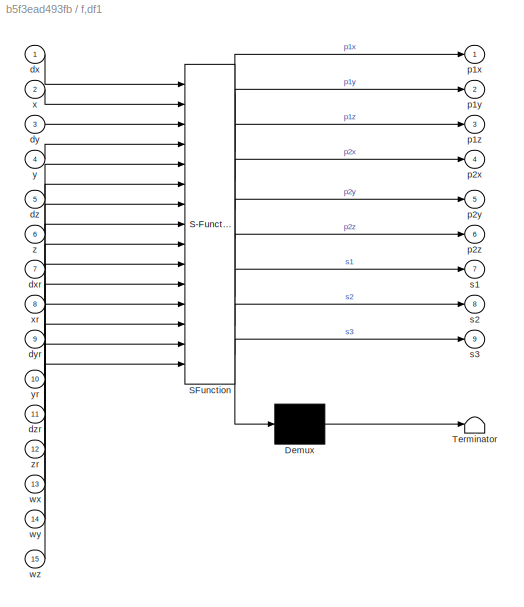
BLOCK [SubSystem] f,df1
  ErrorFcn = Stateflow.Translate.translate
  PermitHierarchicalResolution = ExplicitOnly
  Ports = [15, 9]
  RequestExecContextInheritance = off
  SFBlockType = MATLAB Function
  TreatAsAtomicUnit = on
BLOCK [Demux] f,df1/ Demux 
  DisplayOption = bar
  Outputs = 1
  Ports = [1, 1]
BLOCK [S-Function] f,df1/ SFunction 
  EnableBusSupport = on
  FunctionName = sf_sfun
  PortCounts = [15 10]
  Ports = [15, 10]
  SFcnIsStateOwnerBlock = off
  SFunctionDeploymentMode = off
  Tag = Stateflow S-Function paper_Exponential_Predefined_825 8
BLOCK [Terminator] f,df1/ Terminator 
BLOCK [Inport] f,df1/dx
  IconDisplay = Port number
BLOCK [Inport] f,df1/dxr
  IconDisplay = Port number
  Port = 7
BLOCK [Inport] f,df1/dy
  IconDisplay = Port number
  Port = 3
BLOCK [Inport] f,df1/dyr
  IconDisplay = Port number
  Port = 9
BLOCK [Inport] f,df1/dz
  IconDisplay = Port number
  Port = 5
BLOCK [Inport] f,df1/dzr
  IconDisplay = Port number
  Port = 11
BLOCK [Outport] f,df1/p1x
  IconDisplay = Port number
BLOCK [Outport] f,df1/p1y
  IconDisplay = Port number
  Port = 2
BLOCK [Outport] f,df1/p1z
  IconDisplay = Port number
  Port = 3
BLOCK [Outport] f,df1/p2x
  IconDisplay = Port number
  Port = 4
BLOCK [Outport] f,df1/p2y
  IconDisplay = Port number
  Port = 5
BLOCK [Outport] f,df1/p2z
  IconDisplay = Port number
  Port = 6
BLOCK [Outport] f,df1/s1
  IconDisplay = Port number
  Port = 7
BLOCK [Outport] f,df1/s2
  IconDisplay = Port number
  Port = 8
BLOCK [Outport] f,df1/s3
  IconDisplay = Port number
  Port = 9
BLOCK [Inport] f,df1/wx
  IconDisplay = Port number
  Port = 13
BLOCK [Inport] f,df1/wy
  IconDisplay = Port number
  Port = 14
BLOCK [Inport] f,df1/wz
  IconDisplay = Port number
  Port = 15
BLOCK [Inport] f,df1/x
  IconDisplay = Port number
  Port = 2
BLOCK [Inport] f,df1/xr
  IconDisplay = Port number
  Port = 8
BLOCK [Inport] f,df1/y
  IconDisplay = Port number
  Port = 4
BLOCK [Inport] f,df1/yr
  IconDisplay = Port number
  Port = 10
BLOCK [Inport] f,df1/z
  IconDisplay = Port number
  Port = 6
BLOCK [Inport] f,df1/zr
  IconDisplay = Port number
  Port = 12
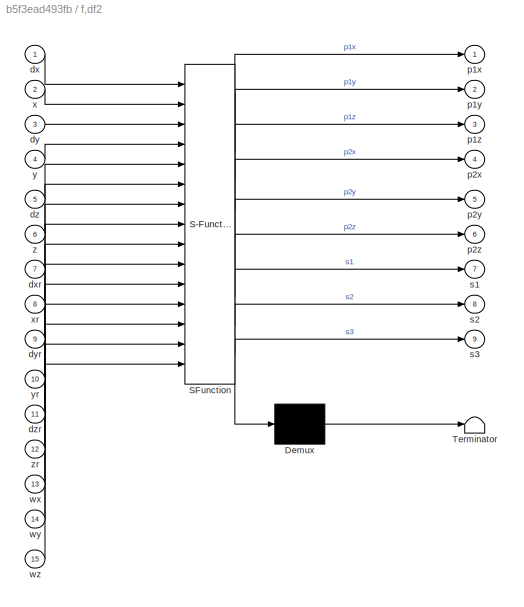
BLOCK [SubSystem] f,df2
  ErrorFcn = Stateflow.Translate.translate
  PermitHierarchicalResolution = ExplicitOnly
  Ports = [15, 9]
  RequestExecContextInheritance = off
  SFBlockType = MATLAB Function
  TreatAsAtomicUnit = on
BLOCK [Demux] f,df2/ Demux 
  DisplayOption = bar
  Outputs = 1
  Ports = [1, 1]
BLOCK [S-Function] f,df2/ SFunction 
  EnableBusSupport = on
  FunctionName = sf_sfun
  PortCounts = [15 10]
  Ports = [15, 10]
  SFcnIsStateOwnerBlock = off
  SFunctionDeploymentMode = off
  Tag = Stateflow S-Function paper_Exponential_Predefined_825 20
BLOCK [Terminator] f,df2/ Terminator 
BLOCK [Inport] f,df2/dx
  IconDisplay = Port number
BLOCK [Inport] f,df2/dxr
  IconDisplay = Port number
  Port = 7
BLOCK [Inport] f,df2/dy
  IconDisplay = Port number
  Port = 3
BLOCK [Inport] f,df2/dyr
  IconDisplay = Port number
  Port = 9
BLOCK [Inport] f,df2/dz
  IconDisplay = Port number
  Port = 5
BLOCK [Inport] f,df2/dzr
  IconDisplay = Port number
  Port = 11
BLOCK [Outport] f,df2/p1x
  IconDisplay = Port number
BLOCK [Outport] f,df2/p1y
  IconDisplay = Port number
  Port = 2
BLOCK [Outport] f,df2/p1z
  IconDisplay = Port number
  Port = 3
BLOCK [Outport] f,df2/p2x
  IconDisplay = Port number
  Port = 4
BLOCK [Outport] f,df2/p2y
  IconDisplay = Port number
  Port = 5
BLOCK [Outport] f,df2/p2z
  IconDisplay = Port number
  Port = 6
BLOCK [Outport] f,df2/s1
  IconDisplay = Port number
  Port = 7
BLOCK [Outport] f,df2/s2
  IconDisplay = Port number
  Port = 8
BLOCK [Outport] f,df2/s3
  IconDisplay = Port number
  Port = 9
BLOCK [Inport] f,df2/wx
  IconDisplay = Port number
  Port = 13
BLOCK [Inport] f,df2/wy
  IconDisplay = Port number
  Port = 14
BLOCK [Inport] f,df2/wz
  IconDisplay = Port number
  Port = 15
BLOCK [Inport] f,df2/x
  IconDisplay = Port number
  Port = 2
BLOCK [Inport] f,df2/xr
  IconDisplay = Port number
  Port = 8
BLOCK [Inport] f,df2/y
  IconDisplay = Port number
  Port = 4
BLOCK [Inport] f,df2/yr
  IconDisplay = Port number
  Port = 10
BLOCK [Inport] f,df2/z
  IconDisplay = Port number
  Port = 6
BLOCK [Inport] f,df2/zr
  IconDisplay = Port number
  Port = 12
BLOCK [SubSystem] f,df3
  ErrorFcn = Stateflow.Translate.translate
  PermitHierarchicalResolution = ExplicitOnly
  Ports = [15, 9]
  RequestExecContextInheritance = off
  SFBlockType = MATLAB Function
  TreatAsAtomicUnit = on
BLOCK [Demux] f,df3/ Demux 
  DisplayOption = bar
  Outputs = 1
  Ports = [1, 1]
BLOCK [S-Function] f,df3/ SFunction 
  EnableBusSupport = on
  FunctionName = sf_sfun
  PortCounts = [15 10]
  Ports = [15, 10]
  SFcnIsStateOwnerBlock = off
  SFunctionDeploymentMode = off
  Tag = Stateflow S-Function paper_Exponential_Predefined_825 32
BLOCK [Terminator] f,df3/ Terminator 
BLOCK [Inport] f,df3/dx
  IconDisplay = Port number
BLOCK [Inport] f,df3/dxr
  IconDisplay = Port number
  Port = 7
BLOCK [Inport] f,df3/dy
  IconDisplay = Port number
  Port = 3
BLOCK [Inport] f,df3/dyr
  IconDisplay = Port number
  Port = 9
BLOCK [Inport] f,df3/dz
  IconDisplay = Port number
  Port = 5
BLOCK [Inport] f,df3/dzr
  IconDisplay = Port number
  Port = 11
BLOCK [Outport] f,df3/p1x
  IconDisplay = Port number
BLOCK [Outport] f,df3/p1y
  IconDisplay = Port number
  Port = 2
BLOCK [Outport] f,df3/p1z
  IconDisplay = Port number
  Port = 3
BLOCK [Outport] f,df3/p2x
  IconDisplay = Port number
  Port = 4
BLOCK [Outport] f,df3/p2y
  IconDisplay = Port number
  Port = 5
BLOCK [Outport] f,df3/p2z
  IconDisplay = Port number
  Port = 6
BLOCK [Outport] f,df3/s1
  IconDisplay = Port number
  Port = 7
BLOCK [Outport] f,df3/s2
  IconDisplay = Port number
  Port = 8
BLOCK [Outport] f,df3/s3
  IconDisplay = Port number
  Port = 9
BLOCK [Inport] f,df3/wx
  IconDisplay = Port number
  Port = 13
BLOCK [Inport] f,df3/wy
  IconDisplay = Port number
  Port = 14
BLOCK [Inport] f,df3/wz
  IconDisplay = Port number
  Port = 15
BLOCK [Inport] f,df3/x
  IconDisplay = Port number
  Port = 2
BLOCK [Inport] f,df3/xr
  IconDisplay = Port number
  Port = 8
BLOCK [Inport] f,df3/y
  IconDisplay = Port number
  Port = 4
BLOCK [Inport] f,df3/yr
  IconDisplay = Port number
  Port = 10
BLOCK [Inport] f,df3/z
  IconDisplay = Port number
  Port = 6
BLOCK [Inport] f,df3/zr
  IconDisplay = Port number
  Port = 12
BLOCK [SubSystem] f,df4
  ErrorFcn = Stateflow.Translate.translate
  PermitHierarchicalResolution = ExplicitOnly
  Ports = [15, 9]
  RequestExecContextInheritance = off
  SFBlockType = MATLAB Function
  TreatAsAtomicUnit = on
BLOCK [Demux] f,df4/ Demux 
  DisplayOption = bar
  Outputs = 1
  Ports = [1, 1]
BLOCK [S-Function] f,df4/ SFunction 
  EnableBusSupport = on
  FunctionName = sf_sfun
  PortCounts = [15 10]
  Ports = [15, 10]
  SFcnIsStateOwnerBlock = off
  SFunctionDeploymentMode = off
  Tag = Stateflow S-Function paper_Exponential_Predefined_825 44
BLOCK [Terminator] f,df4/ Terminator 
BLOCK [Inport] f,df4/dx
  IconDisplay = Port number
BLOCK [Inport] f,df4/dxr
  IconDisplay = Port number
  Port = 7
BLOCK [Inport] f,df4/dy
  IconDisplay = Port number
  Port = 3
BLOCK [Inport] f,df4/dyr
  IconDisplay = Port number
  Port = 9
BLOCK [Inport] f,df4/dz
  IconDisplay = Port number
  Port = 5
BLOCK [Inport] f,df4/dzr
  IconDisplay = Port number
  Port = 11
BLOCK [Outport] f,df4/p1x
  IconDisplay = Port number
BLOCK [Outport] f,df4/p1y
  IconDisplay = Port number
  Port = 2
BLOCK [Outport] f,df4/p1z
  IconDisplay = Port number
  Port = 3
BLOCK [Outport] f,df4/p2x
  IconDisplay = Port number
  Port = 4
BLOCK [Outport] f,df4/p2y
  IconDisplay = Port number
  Port = 5
BLOCK [Outport] f,df4/p2z
  IconDisplay = Port number
  Port = 6
BLOCK [Outport] f,df4/s1
  IconDisplay = Port number
  Port = 7
BLOCK [Outport] f,df4/s2
  IconDisplay = Port number
  Port = 8
BLOCK [Outport] f,df4/s3
  IconDisplay = Port number
  Port = 9
BLOCK [Inport] f,df4/wx
  IconDisplay = Port number
  Port = 13
BLOCK [Inport] f,df4/wy
  IconDisplay = Port number
  Port = 14
BLOCK [Inport] f,df4/wz
  IconDisplay = Port number
  Port = 15
BLOCK [Inport] f,df4/x
  IconDisplay = Port number
  Port = 2
BLOCK [Inport] f,df4/xr
  IconDisplay = Port number
  Port = 8
BLOCK [Inport] f,df4/y
  IconDisplay = Port number
  Port = 4
BLOCK [Inport] f,df4/yr
  IconDisplay = Port number
  Port = 10
BLOCK [Inport] f,df4/z
  IconDisplay = Port number
  Port = 6
BLOCK [Inport] f,df4/zr
  IconDisplay = Port number
  Port = 12
BLOCK [SubSystem] f,df5
  ErrorFcn = Stateflow.Translate.translate
  PermitHierarchicalResolution = ExplicitOnly
  Ports = [15, 9]
  RequestExecContextInheritance = off
  SFBlockType = MATLAB Function
  TreatAsAtomicUnit = on
BLOCK [Demux] f,df5/ Demux 
  DisplayOption = bar
  Outputs = 1
  Ports = [1, 1]
BLOCK [S-Function] f,df5/ SFunction 
  EnableBusSupport = on
  FunctionName = sf_sfun
  PortCounts = [15 10]
  Ports = [15, 10]
  SFcnIsStateOwnerBlock = off
  SFunctionDeploymentMode = off
  Tag = Stateflow S-Function paper_Exponential_Predefined_825 56
BLOCK [Terminator] f,df5/ Terminator 
BLOCK [Inport] f,df5/dx
  IconDisplay = Port number
BLOCK [Inport] f,df5/dxr
  IconDisplay = Port number
  Port = 7
BLOCK [Inport] f,df5/dy
  IconDisplay = Port number
  Port = 3
BLOCK [Inport] f,df5/dyr
  IconDisplay = Port number
  Port = 9
BLOCK [Inport] f,df5/dz
  IconDisplay = Port number
  Port = 5
BLOCK [Inport] f,df5/dzr
  IconDisplay = Port number
  Port = 11
BLOCK [Outport] f,df5/p1x
  IconDisplay = Port number
BLOCK [Outport] f,df5/p1y
  IconDisplay = Port number
  Port = 2
BLOCK [Outport] f,df5/p1z
  IconDisplay = Port number
  Port = 3
BLOCK [Outport] f,df5/p2x
  IconDisplay = Port number
  Port = 4
BLOCK [Outport] f,df5/p2y
  IconDisplay = Port number
  Port = 5
BLOCK [Outport] f,df5/p2z
  IconDisplay = Port number
  Port = 6
BLOCK [Outport] f,df5/s1
  IconDisplay = Port number
  Port = 7
BLOCK [Outport] f,df5/s2
  IconDisplay = Port number
  Port = 8
BLOCK [Outport] f,df5/s3
  IconDisplay = Port number
  Port = 9
BLOCK [Inport] f,df5/wx
  IconDisplay = Port number
  Port = 13
BLOCK [Inport] f,df5/wy
  IconDisplay = Port number
  Port = 14
BLOCK [Inport] f,df5/wz
  IconDisplay = Port number
  Port = 15
BLOCK [Inport] f,df5/x
  IconDisplay = Port number
  Port = 2
BLOCK [Inport] f,df5/xr
  IconDisplay = Port number
  Port = 8
BLOCK [Inport] f,df5/y
  IconDisplay = Port number
  Port = 4
BLOCK [Inport] f,df5/yr
  IconDisplay = Port number
  Port = 10
BLOCK [Inport] f,df5/z
  IconDisplay = Port number
  Port = 6
BLOCK [Inport] f,df5/zr
  IconDisplay = Port number
  Port = 12
BLOCK [Constant] gamma1
  Value = 0
BLOCK [Integrator] gamma10
  InitialConditionSource = external
  Ports = [2, 1]
BLOCK [Constant] gamma11
  Value = 0
BLOCK [Integrator] gamma12
  InitialConditionSource = external
  Ports = [2, 1]
BLOCK [Integrator] gamma2
  InitialConditionSource = external
  Ports = [2, 1]
BLOCK [Constant] gamma3
  Value = 0
BLOCK [Integrator] gamma4
  InitialConditionSource = external
  Ports = [2, 1]
BLOCK [Constant] gamma5
  Value = 0
BLOCK [Integrator] gamma6
  InitialConditionSource = external
  Ports = [2, 1]
BLOCK [Constant] gamma7
  Value = 0
BLOCK [Integrator] gamma8
  InitialConditionSource = external
  Ports = [2, 1]
BLOCK [Constant] gamma9
  Value = 0
BLOCK [Integrator] gamma_r1
  InitialConditionSource = external
  Ports = [2, 1]
BLOCK [Constant] gamma_r10
  Value = 0.2
BLOCK [Integrator] gamma_r11
  InitialConditionSource = external
  Ports = [2, 1]
BLOCK [Constant] gamma_r12
  Value = 0.2
BLOCK [Constant] gamma_r2
  Value = 0.2
BLOCK [Integrator] gamma_r3
  InitialConditionSource = external
  Ports = [2, 1]
BLOCK [Constant] gamma_r4
  Value = 0.2
BLOCK [Integrator] gamma_r5
  InitialConditionSource = external
  Ports = [2, 1]
BLOCK [Constant] gamma_r6
  Value = 0.2
BLOCK [Integrator] gamma_r7
  InitialConditionSource = external
  Ports = [2, 1]
BLOCK [Constant] gamma_r8
  Value = 0.2
BLOCK [Integrator] gamma_r9
  InitialConditionSource = external
  Ports = [2, 1]
BLOCK [Constant] k1
BLOCK [Constant] k18
BLOCK [Constant] k19
  Value = 3
BLOCK [Constant] k2
BLOCK [Constant] k20
  Value = 3
BLOCK [Constant] k21
  Value = 3
BLOCK [Constant] k3
  Value = 0.3
BLOCK [Constant] k4
BLOCK [Constant] k5
BLOCK [Constant] k7
  Value = 0.3
BLOCK [Constant] k8
BLOCK [Constant] k9
  Value = 0.3
BLOCK [Constant] omiga__gamma_r1
  Value = 0
BLOCK [Constant] omiga__gamma_r2
  Value = 0
BLOCK [Constant] omiga__gamma_r3
  Value = 0
BLOCK [Constant] omiga__gamma_r4
  Value = 0
BLOCK [Constant] omiga__gamma_r5
  Value = 0
BLOCK [Constant] omiga__gamma_r6
  Value = 0
BLOCK [Constant] omiga_psi_r1
  Value = 0.3
BLOCK [Constant] omiga_psi_r2
  Value = 0.3
BLOCK [Constant] omiga_psi_r3
  Value = 0.3
BLOCK [Constant] omiga_psi_r4
  Value = 0.3
BLOCK [Constant] omiga_psi_r5
  Value = 0.3
BLOCK [Constant] omiga_psi_r6
  Value = 0.3
BLOCK [Scope] p1
  Floating = off
  NumInputPorts = 3
  Ports = [3]
  ScopeSpecificationString = Simulink.scopes.TimeScopeBlockCfg('CurrentConfiguration', extmgr.ConfigurationSet(extmgr.Configuration('Core','General UI',true,'FigureColor',[1 1 1]),extmgr.Configuration('Core','Source UI',true),extmgr.Configuration('Sources','WiredSimulink',true,'DataLoggingVariableName','ScopeData2'),extmgr.Configuration('Visuals','Time Domain',true,'SerializedDisplays',{struct('MinYLimReal','-19.62976','MaxYL...<+2279ch>
BLOCK [Scope] p10
  Floating = off
  NumInputPorts = 3
  Ports = [3]
  ScopeSpecificationString = Simulink.scopes.TimeScopeBlockCfg('CurrentConfiguration', extmgr.ConfigurationSet(extmgr.Configuration('Core','General UI',true,'FigureColor',[1 1 1]),extmgr.Configuration('Core','Source UI',true),extmgr.Configuration('Sources','WiredSimulink',true,'DataLoggingVariableName','ScopeData2'),extmgr.Configuration('Visuals','Time Domain',true,'SerializedDisplays',{struct('MinYLimReal','-114.28882','MaxY...<+2330ch>
BLOCK [Scope] p11
  Floating = off
  NumInputPorts = 3
  Ports = [3]
  ScopeSpecificationString = Simulink.scopes.TimeScopeBlockCfg('CurrentConfiguration', extmgr.ConfigurationSet(extmgr.Configuration('Core','General UI',true,'FigureColor',[1 1 1]),extmgr.Configuration('Core','Source UI',true),extmgr.Configuration('Sources','WiredSimulink',true,'DataLoggingVariableName','ScopeData3'),extmgr.Configuration('Visuals','Time Domain',true,'SerializedDisplays',{struct('MinYLimReal','-29.24734','MaxYL...<+2297ch>
BLOCK [Scope] p12
  Floating = off
  NumInputPorts = 3
  Ports = [3]
  ScopeSpecificationString = Simulink.scopes.TimeScopeBlockCfg('CurrentConfiguration', extmgr.ConfigurationSet(extmgr.Configuration('Core','General UI',true,'FigureColor',[1 1 1]),extmgr.Configuration('Core','Source UI',true),extmgr.Configuration('Sources','WiredSimulink',true,'DataLoggingVariableName','ScopeData4'),extmgr.Configuration('Visuals','Time Domain',true,'SerializedDisplays',{struct('MinYLimReal','-19.64539','MaxYL...<+2284ch>
BLOCK [Scope] p13
  Floating = off
  NumInputPorts = 3
  Ports = [3]
  ScopeSpecificationString = Simulink.scopes.TimeScopeBlockCfg('CurrentConfiguration', extmgr.ConfigurationSet(extmgr.Configuration('Core','General UI',true,'FigureColor',[1 1 1]),extmgr.Configuration('Core','Source UI',true),extmgr.Configuration('Sources','WiredSimulink',true,'DataLoggingVariableName','ScopeData16'),extmgr.Configuration('Visuals','Time Domain',true,'SerializedDisplays',{struct('MinYLimReal','-19.62976','MaxY...<+2283ch>
BLOCK [Scope] p14
  Floating = off
  NumInputPorts = 3
  Ports = [3]
  ScopeSpecificationString = Simulink.scopes.TimeScopeBlockCfg('CurrentConfiguration', extmgr.ConfigurationSet(extmgr.Configuration('Core','General UI',true,'FigureColor',[1 1 1]),extmgr.Configuration('Core','Source UI',true),extmgr.Configuration('Sources','WiredSimulink',true,'DataLoggingVariableName','ScopeData17'),extmgr.Configuration('Visuals','Time Domain',true,'SerializedDisplays',{struct('MinYLimReal','-20.13275','MaxY...<+2296ch>
BLOCK [Scope] p15
  Floating = off
  NumInputPorts = 3
  Ports = [3]
  ScopeSpecificationString = Simulink.scopes.TimeScopeBlockCfg('CurrentConfiguration', extmgr.ConfigurationSet(extmgr.Configuration('Core','General UI',true,'FigureColor',[1 1 1]),extmgr.Configuration('Core','Source UI',true),extmgr.Configuration('Sources','WiredSimulink',true,'DataLoggingVariableName','ScopeData18'),extmgr.Configuration('Visuals','Time Domain',true,'SerializedDisplays',{struct('MinYLimReal','-29.24734','MaxY...<+2298ch>
BLOCK [Scope] p16
  Floating = off
  NumInputPorts = 3
  Ports = [3]
  ScopeSpecificationString = Simulink.scopes.TimeScopeBlockCfg('CurrentConfiguration', extmgr.ConfigurationSet(extmgr.Configuration('Core','General UI',true,'FigureColor',[1 1 1]),extmgr.Configuration('Core','Source UI',true),extmgr.Configuration('Sources','WiredSimulink',true,'DataLoggingVariableName','ScopeData19'),extmgr.Configuration('Visuals','Time Domain',true,'SerializedDisplays',{struct('MinYLimReal','-118.99853','Max...<+2328ch>
BLOCK [Scope] p17
  Floating = off
  NumInputPorts = 3
  Ports = [3]
  ScopeSpecificationString = Simulink.scopes.TimeScopeBlockCfg('CurrentConfiguration', extmgr.ConfigurationSet(extmgr.Configuration('Core','General UI',true,'FigureColor',[1 1 1]),extmgr.Configuration('Core','Source UI',true),extmgr.Configuration('Sources','WiredSimulink',true,'DataLoggingVariableName','ScopeData20'),extmgr.Configuration('Visuals','Time Domain',true,'SerializedDisplays',{struct('MinYLimReal','-29.24734','MaxY...<+2298ch>
BLOCK [Scope] p18
  Floating = off
  NumInputPorts = 3
  Ports = [3]
  ScopeSpecificationString = Simulink.scopes.TimeScopeBlockCfg('CurrentConfiguration', extmgr.ConfigurationSet(extmgr.Configuration('Core','General UI',true,'FigureColor',[1 1 1]),extmgr.Configuration('Core','Source UI',true),extmgr.Configuration('Sources','WiredSimulink',true,'DataLoggingVariableName','ScopeData21'),extmgr.Configuration('Visuals','Time Domain',true,'SerializedDisplays',{struct('MinYLimReal','-19.64539','MaxY...<+2285ch>
BLOCK [Scope] p19
  Floating = off
  NumInputPorts = 3
  Ports = [3]
  ScopeSpecificationString = Simulink.scopes.TimeScopeBlockCfg('CurrentConfiguration', extmgr.ConfigurationSet(extmgr.Configuration('Core','General UI',true,'FigureColor',[1 1 1]),extmgr.Configuration('Core','Source UI',true),extmgr.Configuration('Sources','WiredSimulink',true,'DataLoggingVariableName','ScopeData2'),extmgr.Configuration('Visuals','Time Domain',true,'SerializedDisplays',{struct('MinYLimReal','-19.62976','MaxYL...<+2279ch>
BLOCK [Scope] p2
  Floating = off
  NumInputPorts = 3
  Ports = [3]
  ScopeSpecificationString = Simulink.scopes.TimeScopeBlockCfg('CurrentConfiguration', extmgr.ConfigurationSet(extmgr.Configuration('Core','General UI',true,'FigureColor',[1 1 1]),extmgr.Configuration('Core','Source UI',true),extmgr.Configuration('Sources','WiredSimulink',true,'DataLoggingVariableName','ScopeData3'),extmgr.Configuration('Visuals','Time Domain',true,'SerializedDisplays',{struct('MinYLimReal','-20.13275','MaxYL...<+2295ch>
BLOCK [Scope] p20
  Floating = off
  NumInputPorts = 3
  Ports = [3]
  ScopeSpecificationString = Simulink.scopes.TimeScopeBlockCfg('CurrentConfiguration', extmgr.ConfigurationSet(extmgr.Configuration('Core','General UI',true,'FigureColor',[1 1 1]),extmgr.Configuration('Core','Source UI',true),extmgr.Configuration('Sources','WiredSimulink',true,'DataLoggingVariableName','ScopeData3'),extmgr.Configuration('Visuals','Time Domain',true,'SerializedDisplays',{struct('MinYLimReal','-20.13275','MaxYL...<+2295ch>
BLOCK [Scope] p21
  Floating = off
  NumInputPorts = 3
  Ports = [3]
  ScopeSpecificationString = Simulink.scopes.TimeScopeBlockCfg('CurrentConfiguration', extmgr.ConfigurationSet(extmgr.Configuration('Core','General UI',true,'FigureColor',[1 1 1]),extmgr.Configuration('Core','Source UI',true),extmgr.Configuration('Sources','WiredSimulink',true,'DataLoggingVariableName','ScopeData4'),extmgr.Configuration('Visuals','Time Domain',true,'SerializedDisplays',{struct('MinYLimReal','-29.24734','MaxYL...<+2297ch>
BLOCK [Scope] p22
  Floating = off
  NumInputPorts = 3
  Ports = [3]
  ScopeSpecificationString = Simulink.scopes.TimeScopeBlockCfg('CurrentConfiguration', extmgr.ConfigurationSet(extmgr.Configuration('Core','General UI',true,'FigureColor',[1 1 1]),extmgr.Configuration('Core','Source UI',true),extmgr.Configuration('Sources','WiredSimulink',true,'DataLoggingVariableName','ScopeData5'),extmgr.Configuration('Visuals','Time Domain',true,'SerializedDisplays',{struct('MinYLimReal','-114.31621','MaxY...<+2305ch>
BLOCK [Scope] p23
  Floating = off
  NumInputPorts = 3
  Ports = [3]
  ScopeSpecificationString = Simulink.scopes.TimeScopeBlockCfg('CurrentConfiguration', extmgr.ConfigurationSet(extmgr.Configuration('Core','General UI',true,'FigureColor',[1 1 1]),extmgr.Configuration('Core','Source UI',true),extmgr.Configuration('Sources','WiredSimulink',true,'DataLoggingVariableName','ScopeData6'),extmgr.Configuration('Visuals','Time Domain',true,'SerializedDisplays',{struct('MinYLimReal','-29.24734','MaxYL...<+2297ch>
BLOCK [Scope] p24
  Floating = off
  NumInputPorts = 3
  Ports = [3]
  ScopeSpecificationString = Simulink.scopes.TimeScopeBlockCfg('CurrentConfiguration', extmgr.ConfigurationSet(extmgr.Configuration('Core','General UI',true,'FigureColor',[1 1 1]),extmgr.Configuration('Core','Source UI',true),extmgr.Configuration('Sources','WiredSimulink',true,'DataLoggingVariableName','ScopeData7'),extmgr.Configuration('Visuals','Time Domain',true,'SerializedDisplays',{struct('MinYLimReal','-19.64539','MaxYL...<+2284ch>
BLOCK [Scope] p25
  Floating = off
  NumInputPorts = 3
  Ports = [3]
  ScopeSpecificationString = Simulink.scopes.TimeScopeBlockCfg('CurrentConfiguration', extmgr.ConfigurationSet(extmgr.Configuration('Core','General UI',true,'FigureColor',[1 1 1]),extmgr.Configuration('Core','Source UI',true),extmgr.Configuration('Sources','WiredSimulink',true,'DataLoggingVariableName','ScopeData16'),extmgr.Configuration('Visuals','Time Domain',true,'SerializedDisplays',{struct('MinYLimReal','-19.62976','MaxY...<+2283ch>
BLOCK [Scope] p26
  Floating = off
  NumInputPorts = 3
  Ports = [3]
  ScopeSpecificationString = Simulink.scopes.TimeScopeBlockCfg('CurrentConfiguration', extmgr.ConfigurationSet(extmgr.Configuration('Core','General UI',true,'FigureColor',[1 1 1]),extmgr.Configuration('Core','Source UI',true),extmgr.Configuration('Sources','WiredSimulink',true,'DataLoggingVariableName','ScopeData17'),extmgr.Configuration('Visuals','Time Domain',true,'SerializedDisplays',{struct('MinYLimReal','-20.13275','MaxY...<+2296ch>
BLOCK [Scope] p27
  Floating = off
  NumInputPorts = 3
  Ports = [3]
  ScopeSpecificationString = Simulink.scopes.TimeScopeBlockCfg('CurrentConfiguration', extmgr.ConfigurationSet(extmgr.Configuration('Core','General UI',true,'FigureColor',[1 1 1]),extmgr.Configuration('Core','Source UI',true),extmgr.Configuration('Sources','WiredSimulink',true,'DataLoggingVariableName','ScopeData18'),extmgr.Configuration('Visuals','Time Domain',true,'SerializedDisplays',{struct('MinYLimReal','-29.24734','MaxY...<+2298ch>
BLOCK [Scope] p28
  Floating = off
  NumInputPorts = 3
  Ports = [3]
  ScopeSpecificationString = Simulink.scopes.TimeScopeBlockCfg('CurrentConfiguration', extmgr.ConfigurationSet(extmgr.Configuration('Core','General UI',true,'FigureColor',[1 1 1]),extmgr.Configuration('Core','Source UI',true),extmgr.Configuration('Sources','WiredSimulink',true,'DataLoggingVariableName','ScopeData19'),extmgr.Configuration('Visuals','Time Domain',true,'SerializedDisplays',{struct('MinYLimReal','-118.99853','Max...<+2359ch>
BLOCK [Scope] p3
  Floating = off
  NumInputPorts = 3
  Ports = [3]
  ScopeSpecificationString = Simulink.scopes.TimeScopeBlockCfg('CurrentConfiguration', extmgr.ConfigurationSet(extmgr.Configuration('Core','General UI',true,'FigureColor',[1 1 1]),extmgr.Configuration('Core','Source UI',true),extmgr.Configuration('Sources','WiredSimulink',true,'DataLoggingVariableName','ScopeData4'),extmgr.Configuration('Visuals','Time Domain',true,'SerializedDisplays',{struct('MinYLimReal','-29.24734','MaxYL...<+2297ch>
BLOCK [Scope] p35
  Floating = off
  NumInputPorts = 3
  Ports = [3]
  ScopeSpecificationString = Simulink.scopes.TimeScopeBlockCfg('CurrentConfiguration', extmgr.ConfigurationSet(extmgr.Configuration('Core','General UI',true,'FigureColor',[1 1 1]),extmgr.Configuration('Core','Source UI',true),extmgr.Configuration('Sources','WiredSimulink',true,'DataLoggingVariableName','ScopeData20'),extmgr.Configuration('Visuals','Time Domain',true,'SerializedDisplays',{struct('MinYLimReal','-29.24734','MaxY...<+2298ch>
BLOCK [Scope] p36
  Floating = off
  NumInputPorts = 3
  Ports = [3]
  ScopeSpecificationString = Simulink.scopes.TimeScopeBlockCfg('CurrentConfiguration', extmgr.ConfigurationSet(extmgr.Configuration('Core','General UI',true,'FigureColor',[1 1 1]),extmgr.Configuration('Core','Source UI',true),extmgr.Configuration('Sources','WiredSimulink',true,'DataLoggingVariableName','ScopeData21'),extmgr.Configuration('Visuals','Time Domain',true,'SerializedDisplays',{struct('MinYLimReal','-19.64539','MaxY...<+2285ch>
BLOCK [Scope] p4
  Floating = off
  NumInputPorts = 3
  Ports = [3]
  ScopeSpecificationString = Simulink.scopes.TimeScopeBlockCfg('CurrentConfiguration', extmgr.ConfigurationSet(extmgr.Configuration('Core','General UI',true,'FigureColor',[1 1 1]),extmgr.Configuration('Core','Source UI',true),extmgr.Configuration('Sources','WiredSimulink',true,'DataLoggingVariableName','ScopeData5'),extmgr.Configuration('Visuals','Time Domain',true,'SerializedDisplays',{struct('MinYLimReal','-118.99853','MaxY...<+2330ch>
BLOCK [Scope] p5
  Floating = off
  NumInputPorts = 3
  Ports = [3]
  ScopeSpecificationString = Simulink.scopes.TimeScopeBlockCfg('CurrentConfiguration', extmgr.ConfigurationSet(extmgr.Configuration('Core','General UI',true,'FigureColor',[1 1 1]),extmgr.Configuration('Core','Source UI',true),extmgr.Configuration('Sources','WiredSimulink',true,'DataLoggingVariableName','ScopeData6'),extmgr.Configuration('Visuals','Time Domain',true,'SerializedDisplays',{struct('MinYLimReal','-29.24734','MaxYL...<+2297ch>
BLOCK [Scope] p6
  Floating = off
  NumInputPorts = 3
  Ports = [3]
  ScopeSpecificationString = Simulink.scopes.TimeScopeBlockCfg('CurrentConfiguration', extmgr.ConfigurationSet(extmgr.Configuration('Core','General UI',true,'FigureColor',[1 1 1]),extmgr.Configuration('Core','Source UI',true),extmgr.Configuration('Sources','WiredSimulink',true,'DataLoggingVariableName','ScopeData7'),extmgr.Configuration('Visuals','Time Domain',true,'SerializedDisplays',{struct('MinYLimReal','-19.64539','MaxYL...<+2284ch>
BLOCK [Scope] p7
  Floating = off
  NumInputPorts = 3
  Ports = [3]
  ScopeSpecificationString = Simulink.scopes.TimeScopeBlockCfg('CurrentConfiguration', extmgr.ConfigurationSet(extmgr.Configuration('Core','General UI',true,'FigureColor',[1 1 1]),extmgr.Configuration('Core','Source UI',true),extmgr.Configuration('Sources','WiredSimulink',true,'DataLoggingVariableName','ScopeData5'),extmgr.Configuration('Visuals','Time Domain',true,'SerializedDisplays',{struct('MinYLimReal','-19.62976','MaxYL...<+2279ch>
BLOCK [Scope] p8
  Floating = off
  NumInputPorts = 3
  Ports = [3]
  ScopeSpecificationString = Simulink.scopes.TimeScopeBlockCfg('CurrentConfiguration', extmgr.ConfigurationSet(extmgr.Configuration('Core','General UI',true,'FigureColor',[1 1 1]),extmgr.Configuration('Core','Source UI',true),extmgr.Configuration('Sources','WiredSimulink',true,'DataLoggingVariableName','ScopeData6'),extmgr.Configuration('Visuals','Time Domain',true,'SerializedDisplays',{struct('MinYLimReal','-20.13275','MaxYL...<+2295ch>
BLOCK [Scope] p9
  Floating = off
  NumInputPorts = 3
  Ports = [3]
  ScopeSpecificationString = Simulink.scopes.TimeScopeBlockCfg('CurrentConfiguration', extmgr.ConfigurationSet(extmgr.Configuration('Core','General UI',true,'FigureColor',[1 1 1]),extmgr.Configuration('Core','Source UI',true),extmgr.Configuration('Sources','WiredSimulink',true,'DataLoggingVariableName','ScopeData7'),extmgr.Configuration('Visuals','Time Domain',true,'SerializedDisplays',{struct('MinYLimReal','-29.24734','MaxYL...<+2297ch>
BLOCK [SubSystem] predefined
  ErrorFcn = Stateflow.Translate.translate
  PermitHierarchicalResolution = ExplicitOnly
  Ports = [21, 3]
  RequestExecContextInheritance = off
  SFBlockType = MATLAB Function
  TreatAsAtomicUnit = on
BLOCK [Demux] predefined/ Demux 
  Outputs = 1
  Ports = [1, 1]
BLOCK [S-Function] predefined/ SFunction 
  EnableBusSupport = on
  FunctionName = sf_sfun
  PortCounts = [21 4]
  Ports = [21, 4]
  SFcnIsStateOwnerBlock = off
  SFunctionDeploymentMode = off
  Tag = Stateflow S-Function paper_Exponential_Predefined_825 78
BLOCK [Terminator] predefined/ Terminator 
BLOCK [Inport] predefined/a_xr
  IconDisplay = Port number
  Port = 19
BLOCK [Inport] predefined/a_yr
  IconDisplay = Port number
  Port = 20
BLOCK [Inport] predefined/a_zr
  IconDisplay = Port number
  Port = 21
BLOCK [Inport] predefined/bta1
  IconDisplay = Port number
  Port = 3
BLOCK [Inport] predefined/bta2
  IconDisplay = Port number
  Port = 4
BLOCK [Inport] predefined/k1
  IconDisplay = Port number
  Port = 5
BLOCK [Inport] predefined/k2
  IconDisplay = Port number
  Port = 6
BLOCK [Outport] predefined/nta_1
  IconDisplay = Port number
BLOCK [Outport] predefined/nta_2
  IconDisplay = Port number
  Port = 2
BLOCK [Outport] predefined/nta_3
  IconDisplay = Port number
  Port = 3
BLOCK [Inport] predefined/p1x
  IconDisplay = Port number
  Port = 7
BLOCK [Inport] predefined/p1y
  IconDisplay = Port number
  Port = 8
BLOCK [Inport] predefined/p1z
  IconDisplay = Port number
  Port = 9
BLOCK [Inport] predefined/p2x
  IconDisplay = Port number
  Port = 10
BLOCK [Inport] predefined/p2y
  IconDisplay = Port number
  Port = 11
BLOCK [Inport] predefined/p2z
  IconDisplay = Port number
  Port = 12
BLOCK [Inport] predefined/t
  IconDisplay = Port number
BLOCK [Inport] predefined/t_f
  IconDisplay = Port number
  Port = 2
BLOCK [Inport] predefined/tua1
  IconDisplay = Port number
  Port = 16
BLOCK [Inport] predefined/tua2
  IconDisplay = Port number
  Port = 17
BLOCK [Inport] predefined/tua3
  IconDisplay = Port number
  Port = 18
BLOCK [Inport] predefined/z2x
  IconDisplay = Port number
  Port = 13
BLOCK [Inport] predefined/z2y
  IconDisplay = Port number
  Port = 14
BLOCK [Inport] predefined/z2z
  IconDisplay = Port number
  Port = 15
BLOCK [Constant] psi1
  Value = 0
BLOCK [Integrator] psi10
  InitialConditionSource = external
  Ports = [2, 1]
BLOCK [Constant] psi11
  Value = 0
BLOCK [Integrator] psi12
  InitialConditionSource = external
  Ports = [2, 1]
BLOCK [Integrator] psi2
  InitialConditionSource = external
  Ports = [2, 1]
BLOCK [Constant] psi3
  Value = 0
BLOCK [Integrator] psi4
  InitialConditionSource = external
  Ports = [2, 1]
BLOCK [Constant] psi5
  Value = 0
BLOCK [Integrator] psi6
  InitialConditionSource = external
  Ports = [2, 1]
BLOCK [Constant] psi7
  Value = 0
BLOCK [Integrator] psi8
  InitialConditionSource = external
  Ports = [2, 1]
BLOCK [Constant] psi9
  Value = 0
BLOCK [Constant] psi_r1
  Value = 3.14/4
BLOCK [Integrator] psi_r10
  InitialConditionSource = external
  Ports = [2, 1]
BLOCK [Constant] psi_r11
  Value = 0.3
BLOCK [Integrator] psi_r12
  InitialConditionSource = external
  Ports = [2, 1]
BLOCK [Integrator] psi_r2
  InitialConditionSource = external
  Ports = [2, 1]
BLOCK [Constant] psi_r3
  Value = 3.14/4
BLOCK [Integrator] psi_r4
  InitialConditionSource = external
  Ports = [2, 1]
BLOCK [Constant] psi_r5
  Value = 3.14/4
BLOCK [Integrator] psi_r6
  InitialConditionSource = external
  Ports = [2, 1]
BLOCK [Constant] psi_r7
  Value = 3.14/4
BLOCK [Integrator] psi_r8
  InitialConditionSource = external
  Ports = [2, 1]
BLOCK [Constant] psi_r9
  Value = 3.14/4
BLOCK [SubSystem] qnta
  ErrorFcn = Stateflow.Translate.translate
  PermitHierarchicalResolution = ExplicitOnly
  Ports = [3, 3]
  RequestExecContextInheritance = off
  SFBlockType = MATLAB Function
  TreatAsAtomicUnit = on
BLOCK [Demux] qnta/ Demux 
  DisplayOption = bar
  Outputs = 1
  Ports = [1, 1]
BLOCK [S-Function] qnta/ SFunction 
  EnableBusSupport = on
  FunctionName = sf_sfun
  PortCounts = [3 4]
  Ports = [3, 4]
  SFcnIsStateOwnerBlock = off
  SFunctionDeploymentMode = off
  Tag = Stateflow S-Function paper_Exponential_Predefined_825 74
BLOCK [Terminator] qnta/ Terminator 
BLOCK [Inport] qnta/nta1
  IconDisplay = Port number
BLOCK [Inport] qnta/nta2
  IconDisplay = Port number
  Port = 2
BLOCK [Inport] qnta/nta3
  IconDisplay = Port number
  Port = 3
BLOCK [Outport] qnta/qnta1
  IconDisplay = Port number
  VectorParamsAs1DForOutWhenUnconnected = on
BLOCK [Outport] qnta/qnta2
  IconDisplay = Port number
  Port = 2
BLOCK [Outport] qnta/qnta3
  IconDisplay = Port number
  Port = 3
BLOCK [Scope] real_disturbance
  Floating = off
  NumInputPorts = 3
  Ports = [3]
  ScopeSpecificationString = Simulink.scopes.TimeScopeBlockCfg('CurrentConfiguration', extmgr.ConfigurationSet(extmgr.Configuration('Core','General UI',true,'FigureColor',[1 1 1]),extmgr.Configuration('Core','Source UI',true),extmgr.Configuration('Sources','WiredSimulink',true,'DataLoggingVariableName','ScopeData35'),extmgr.Configuration('Visuals','Time Domain',true,'SerializedDisplays',{struct('MinYLimReal','-3.4487','MaxYLi...<+2275ch>
BLOCK [SubSystem] ref_UAV
  ErrorFcn = Stateflow.Translate.translate
  PermitHierarchicalResolution = ExplicitOnly
  Ports = [6, 3]
  RequestExecContextInheritance = off
  SFBlockType = MATLAB Function
  TreatAsAtomicUnit = on
BLOCK [Demux] ref_UAV/ Demux 
  DisplayOption = bar
  Outputs = 1
  Ports = [1, 1]
BLOCK [S-Function] ref_UAV/ SFunction 
  EnableBusSupport = on
  FunctionName = sf_sfun
  PortCounts = [6 4]
  Ports = [6, 4]
  SFcnIsStateOwnerBlock = off
  SFunctionDeploymentMode = off
  Tag = Stateflow S-Function paper_Exponential_Predefined_825 63
BLOCK [Terminator] ref_UAV/ Terminator 
BLOCK [Outport] ref_UAV/a_xr
  IconDisplay = Port number
  VectorParamsAs1DForOutWhenUnconnected = on
BLOCK [Outport] ref_UAV/a_yr
  IconDisplay = Port number
  Port = 2
  VectorParamsAs1DForOutWhenUnconnected = on
BLOCK [Outport] ref_UAV/a_zr
  IconDisplay = Port number
  Port = 3
BLOCK [Inport] ref_UAV/ar
  IconDisplay = Port number
BLOCK [Inport] ref_UAV/gamma_r
  IconDisplay = Port number
  Port = 6
BLOCK [Inport] ref_UAV/omiga_gamma_r
  IconDisplay = Port number
  Port = 5
BLOCK [Inport] ref_UAV/omiga_psi_r
  IconDisplay = Port number
  Port = 3
BLOCK [Inport] ref_UAV/psi_r
  IconDisplay = Port number
  Port = 4
BLOCK [Inport] ref_UAV/vr
  IconDisplay = Port number
  Port = 2
BLOCK [Scope] reference_position
  Floating = off
  NumInputPorts = 3
  Ports = [3]
  ScopeSpecificationString = Simulink.scopes.TimeScopeBlockCfg('CurrentConfiguration', extmgr.ConfigurationSet(extmgr.Configuration('Core','General UI',true,'FigureColor',[1 1 1]),extmgr.Configuration('Core','Source UI',true),extmgr.Configuration('Sources','WiredSimulink',true,'DataLoggingVariableName','ScopeData36'),extmgr.Configuration('Visuals','Time Domain',true,'SerializedDisplays',{struct('MinYLimReal','-137.69462','Max...<+2274ch>
BLOCK [Saturate] sat_v1
  InputPortMap = u0
  LowerLimit = 10
  Ports = [1, 1]
  UpperLimit = 30
BLOCK [Saturate] sat_v2
  InputPortMap = u0
  LowerLimit = 10
  Ports = [1, 1]
  UpperLimit = 30
BLOCK [Saturate] sat_v6
  InputPortMap = u0
  LowerLimit = 10
  Ports = [1, 1]
  UpperLimit = 40
BLOCK [Scope] show Xr1
  Floating = off
  NumInputPorts = 3
  Ports = [3]
  ScopeSpecificationString = Simulink.scopes.TimeScopeBlockCfg('CurrentConfiguration', extmgr.ConfigurationSet(extmgr.Configuration('Core','General UI',true,'FigureColor',[1 1 1]),extmgr.Configuration('Core','Source UI',true),extmgr.Configuration('Sources','WiredSimulink',true,'DataLoggingVariableName','ScopeData8'),extmgr.Configuration('Visuals','Time Domain',true,'SerializedDisplays',{struct('MinYLimReal','-137.69462','MaxY...<+2273ch>  <repeated x3 — deduplicated; at blocks: show Xr1, show Xr2, show Xr4>
BLOCK [Scope] show Xr2
  Floating = off
  NumInputPorts = 3
  Ports = [3]
BLOCK [Scope] show Xr3
  Floating = off
  NumInputPorts = 3
  Ports = [3]
  ScopeSpecificationString = Simulink.scopes.TimeScopeBlockCfg('CurrentConfiguration', extmgr.ConfigurationSet(extmgr.Configuration('Core','General UI',true,'FigureColor',[1 1 1]),extmgr.Configuration('Core','Source UI',true),extmgr.Configuration('Sources','WiredSimulink',true,'DataLoggingVariableName','ScopeData22'),extmgr.Configuration('Visuals','Time Domain',true,'SerializedDisplays',{struct('MinYLimReal','-137.69462','Max...<+2274ch>
BLOCK [Scope] show Xr4
  Floating = off
  NumInputPorts = 3
  Ports = [3]
BLOCK [Scope] show Xr5
  Floating = off
  NumInputPorts = 3
  Ports = [3]
  ScopeSpecificationString = Simulink.scopes.TimeScopeBlockCfg('CurrentConfiguration', extmgr.ConfigurationSet(extmgr.Configuration('Core','General UI',true,'FigureColor',[1 1 1]),extmgr.Configuration('Core','Source UI',true),extmgr.Configuration('Sources','WiredSimulink',true,'DataLoggingVariableName','ScopeData22'),extmgr.Configuration('Visuals','Time Domain',true,'SerializedDisplays',{struct('MinYLimReal','-137.69462','Max...<+2274ch>
BLOCK [Scope] show_p1
  Floating = off
  NumInputPorts = 3
  Ports = [3]
  ScopeSpecificationString = Simulink.scopes.TimeScopeBlockCfg('CurrentConfiguration', extmgr.ConfigurationSet(extmgr.Configuration('Core','General UI',true,'FigureColor',[1 1 1]),extmgr.Configuration('Core','Source UI',true),extmgr.Configuration('Sources','WiredSimulink',true,'DataLoggingVariableName','ScopeData33'),extmgr.Configuration('Visuals','Time Domain',true,'SerializedDisplays',{struct('MinYLimReal','-187.39023','Max...<+2302ch>
BLOCK [Scope] show_p2
  Floating = off
  NumInputPorts = 3
  Ports = [3]
  ScopeSpecificationString = Simulink.scopes.TimeScopeBlockCfg('CurrentConfiguration', extmgr.ConfigurationSet(extmgr.Configuration('Core','General UI',true,'FigureColor',[1 1 1]),extmgr.Configuration('Core','Source UI',true),extmgr.Configuration('Sources','WiredSimulink',true,'DataLoggingVariableName','ScopeData34'),extmgr.Configuration('Visuals','Time Domain',true,'SerializedDisplays',{struct('MinYLimReal','-29.24734','MaxY...<+2301ch>
BLOCK [Scope] show_qnta
  Floating = off
  NumInputPorts = 3
  Ports = [3]
  ScopeSpecificationString = Simulink.scopes.TimeScopeBlockCfg('CurrentConfiguration', extmgr.ConfigurationSet(extmgr.Configuration('Core','General UI',true,'FigureColor',[1 1 1]),extmgr.Configuration('Core','Source UI',true),extmgr.Configuration('Sources','WiredSimulink',true,'DataLoggingVariableName','ScopeData37'),extmgr.Configuration('Visuals','Time Domain',true,'SerializedDisplays',{struct('MinYLimReal','-11.00000','MaxY...<+2310ch>
BLOCK [Scope] show_s
  Floating = off
  NumInputPorts = 3
  Ports = [3]
  ScopeSpecificationString = Simulink.scopes.TimeScopeBlockCfg('CurrentConfiguration', extmgr.ConfigurationSet(extmgr.Configuration('Core','General UI',true,'FigureColor',[1 1 1]),extmgr.Configuration('Core','Source UI',true),extmgr.Configuration('Sources','WiredSimulink',true,'DataLoggingVariableName','ScopeData32'),extmgr.Configuration('Visuals','Time Domain',true,'SerializedDisplays',{struct('MinYLimReal','-29.24734','MaxY...<+2298ch>
BLOCK [Scope] show_tua
  Floating = off
  NumInputPorts = 3
  Ports = [3]
  ScopeSpecificationString = Simulink.scopes.TimeScopeBlockCfg('CurrentConfiguration', extmgr.ConfigurationSet(extmgr.Configuration('Core','General UI',true,'FigureColor',[1 1 1]),extmgr.Configuration('Core','Source UI',true),extmgr.Configuration('Sources','WiredSimulink',true,'DataLoggingVariableName','ScopeData38'),extmgr.Configuration('Visuals','Time Domain',true,'SerializedDisplays',{struct('MinYLimReal','-28692.04386','M...<+2312ch>
BLOCK [Scope] show_u
  Floating = off
  NumInputPorts = 3
  Ports = [3]
  ScopeSpecificationString = Simulink.scopes.TimeScopeBlockCfg('CurrentConfiguration', extmgr.ConfigurationSet(extmgr.Configuration('Core','General UI',true,'FigureColor',[1 1 1]),extmgr.Configuration('Core','Source UI',true),extmgr.Configuration('Sources','WiredSimulink',true,'DataLoggingVariableName','ScopeData39'),extmgr.Configuration('Visuals','Time Domain',true,'SerializedDisplays',{struct('MinYLimReal','-20.59006','MaxY...<+2340ch>
BLOCK [Scope] show_u1
  Floating = off
  NumInputPorts = 3
  Ports = [3]
  ScopeSpecificationString = Simulink.scopes.TimeScopeBlockCfg('CurrentConfiguration', extmgr.ConfigurationSet(extmgr.Configuration('Core','General UI',true,'FigureColor',[1 1 1]),extmgr.Configuration('Core','Source UI',true),extmgr.Configuration('Sources','WiredSimulink',true,'DataLoggingVariableName','ScopeData11'),extmgr.Configuration('Visuals','Time Domain',true,'SerializedDisplays',{struct('MinYLimReal','-8016.53783','Ma...<+2371ch>
BLOCK [Scope] show_u10
  Floating = off
  NumInputPorts = 3
  Ports = [3]
  ScopeSpecificationString = Simulink.scopes.TimeScopeBlockCfg('CurrentConfiguration', extmgr.ConfigurationSet(extmgr.Configuration('Core','General UI',true,'FigureColor',[1 1 1]),extmgr.Configuration('Core','Source UI',true),extmgr.Configuration('Sources','WiredSimulink',true,'DataLoggingVariableName','ScopeData23'),extmgr.Configuration('Visuals','Time Domain',true,'SerializedDisplays',{struct('MinYLimReal','-12.48297','MaxY...<+2301ch>
BLOCK [Scope] show_u2
  Floating = off
  NumInputPorts = 3
  Ports = [3]
  ScopeSpecificationString = Simulink.scopes.TimeScopeBlockCfg('CurrentConfiguration', extmgr.ConfigurationSet(extmgr.Configuration('Core','General UI',true,'FigureColor',[1 1 1]),extmgr.Configuration('Core','Source UI',true),extmgr.Configuration('Sources','WiredSimulink',true,'DataLoggingVariableName','ScopeData12'),extmgr.Configuration('Visuals','Time Domain',true,'SerializedDisplays',{struct('MinYLimReal','-12.48297','MaxY...<+2301ch>
BLOCK [Scope] show_u3
  Floating = off
  NumInputPorts = 3
  Ports = [3]
  ScopeSpecificationString = Simulink.scopes.TimeScopeBlockCfg('CurrentConfiguration', extmgr.ConfigurationSet(extmgr.Configuration('Core','General UI',true,'FigureColor',[1 1 1]),extmgr.Configuration('Core','Source UI',true),extmgr.Configuration('Sources','WiredSimulink',true,'DataLoggingVariableName','ScopeData9'),extmgr.Configuration('Visuals','Time Domain',true,'SerializedDisplays',{struct('MinYLimReal','-104.15398','MaxY...<+2358ch>
BLOCK [Scope] show_u4
  Floating = off
  NumInputPorts = 3
  Ports = [3]
  ScopeSpecificationString = Simulink.scopes.TimeScopeBlockCfg('CurrentConfiguration', extmgr.ConfigurationSet(extmgr.Configuration('Core','General UI',true,'FigureColor',[1 1 1]),extmgr.Configuration('Core','Source UI',true),extmgr.Configuration('Sources','WiredSimulink',true,'DataLoggingVariableName','ScopeData10'),extmgr.Configuration('Visuals','Time Domain',true,'SerializedDisplays',{struct('MinYLimReal','-12.48297','MaxY...<+2301ch>
BLOCK [Scope] show_u5
  Floating = off
  NumInputPorts = 3
  Ports = [3]
  ScopeSpecificationString = Simulink.scopes.TimeScopeBlockCfg('CurrentConfiguration', extmgr.ConfigurationSet(extmgr.Configuration('Core','General UI',true,'FigureColor',[1 1 1]),extmgr.Configuration('Core','Source UI',true),extmgr.Configuration('Sources','WiredSimulink',true,'DataLoggingVariableName','ScopeData23'),extmgr.Configuration('Visuals','Time Domain',true,'SerializedDisplays',{struct('MinYLimReal','-20.00000','MaxY...<+2288ch>
BLOCK [Scope] show_u6
  Floating = off
  NumInputPorts = 3
  Ports = [3]
  ScopeSpecificationString = Simulink.scopes.TimeScopeBlockCfg('CurrentConfiguration', extmgr.ConfigurationSet(extmgr.Configuration('Core','General UI',true,'FigureColor',[1 1 1]),extmgr.Configuration('Core','Source UI',true),extmgr.Configuration('Sources','WiredSimulink',true,'DataLoggingVariableName','ScopeData24'),extmgr.Configuration('Visuals','Time Domain',true,'SerializedDisplays',{struct('MinYLimReal','-12.48297','MaxY...<+2301ch>
BLOCK [Scope] show_u7
  Floating = off
  NumInputPorts = 3
  Ports = [3]
  ScopeSpecificationString = Simulink.scopes.TimeScopeBlockCfg('CurrentConfiguration', extmgr.ConfigurationSet(extmgr.Configuration('Core','General UI',true,'FigureColor',[1 1 1]),extmgr.Configuration('Core','Source UI',true),extmgr.Configuration('Sources','WiredSimulink',true,'DataLoggingVariableName','ScopeData9'),extmgr.Configuration('Visuals','Time Domain',true,'SerializedDisplays',{struct('MinYLimReal','-167.41717','MaxY...<+2358ch>
BLOCK [Scope] show_u8
  Floating = off
  NumInputPorts = 3
  Ports = [3]
  ScopeSpecificationString = Simulink.scopes.TimeScopeBlockCfg('CurrentConfiguration', extmgr.ConfigurationSet(extmgr.Configuration('Core','General UI',true,'FigureColor',[1 1 1]),extmgr.Configuration('Core','Source UI',true),extmgr.Configuration('Sources','WiredSimulink',true,'DataLoggingVariableName','ScopeData10'),extmgr.Configuration('Visuals','Time Domain',true,'SerializedDisplays',{struct('MinYLimReal','-12.48297','MaxY...<+2301ch>
BLOCK [Scope] show_u9
  Floating = off
  NumInputPorts = 3
  Ports = [3]
  ScopeSpecificationString = Simulink.scopes.TimeScopeBlockCfg('CurrentConfiguration', extmgr.ConfigurationSet(extmgr.Configuration('Core','General UI',true,'FigureColor',[1 1 1]),extmgr.Configuration('Core','Source UI',true),extmgr.Configuration('Sources','WiredSimulink',true,'DataLoggingVariableName','ScopeData24'),extmgr.Configuration('Visuals','Time Domain',true,'SerializedDisplays',{struct('MinYLimReal','-20.00000','MaxY...<+2288ch>
BLOCK [Scope] show_v psi gamma1
  Floating = off
  NumInputPorts = 3
  Ports = [3]
  ScopeSpecificationString = Simulink.scopes.TimeScopeBlockCfg('CurrentConfiguration', extmgr.ConfigurationSet(extmgr.Configuration('Core','General UI',true,'FigureColor',[1 1 1]),extmgr.Configuration('Core','Source UI',true),extmgr.Configuration('Sources','WiredSimulink',true,'DataLoggingVariableName','ScopeData13'),extmgr.Configuration('Visuals','Time Domain',true,'SerializedDisplays',{struct('MinYLimReal','-19.58218','MaxY...<+2306ch>
BLOCK [Scope] show_v psi gamma10
  Floating = off
  NumInputPorts = 3
  Ports = [3]
  ScopeSpecificationString = Simulink.scopes.TimeScopeBlockCfg('CurrentConfiguration', extmgr.ConfigurationSet(extmgr.Configuration('Core','General UI',true,'FigureColor',[1 1 1]),extmgr.Configuration('Core','Source UI',true),extmgr.Configuration('Sources','WiredSimulink',true,'DataLoggingVariableName','ScopeData25'),extmgr.Configuration('Visuals','Time Domain',true,'SerializedDisplays',{struct('MinYLimReal','-15.85008','MaxY...<+2306ch>
BLOCK [Scope] show_v psi gamma11
  Floating = off
  NumInputPorts = 3
  Ports = [3]
  ScopeSpecificationString = Simulink.scopes.TimeScopeBlockCfg('CurrentConfiguration', extmgr.ConfigurationSet(extmgr.Configuration('Core','General UI',true,'FigureColor',[1 1 1]),extmgr.Configuration('Core','Source UI',true),extmgr.Configuration('Sources','WiredSimulink',true,'DataLoggingVariableName','ScopeData26'),extmgr.Configuration('Visuals','Time Domain',true,'SerializedDisplays',{struct('MinYLimReal','-19.94529','MaxY...<+2306ch>
BLOCK [Scope] show_v psi gamma12
  Floating = off
  NumInputPorts = 3
  Ports = [3]
  ScopeSpecificationString = Simulink.scopes.TimeScopeBlockCfg('CurrentConfiguration', extmgr.ConfigurationSet(extmgr.Configuration('Core','General UI',true,'FigureColor',[1 1 1]),extmgr.Configuration('Core','Source UI',true),extmgr.Configuration('Sources','WiredSimulink',true,'DataLoggingVariableName','ScopeData27'),extmgr.Configuration('Visuals','Time Domain',true,'SerializedDisplays',{struct('MinYLimReal','-123.31344','Max...<+2298ch>
BLOCK [Scope] show_v psi gamma13
  Floating = off
  NumInputPorts = 3
  Ports = [3]
  ScopeSpecificationString = Simulink.scopes.TimeScopeBlockCfg('CurrentConfiguration', extmgr.ConfigurationSet(extmgr.Configuration('Core','General UI',true,'FigureColor',[1 1 1]),extmgr.Configuration('Core','Source UI',true),extmgr.Configuration('Sources','WiredSimulink',true,'DataLoggingVariableName','ScopeData11'),extmgr.Configuration('Visuals','Time Domain',true,'SerializedDisplays',{struct('MinYLimReal','-19.58218','MaxY...<+2306ch>
BLOCK [Scope] show_v psi gamma14
  Floating = off
  NumInputPorts = 3
  Ports = [3]
  ScopeSpecificationString = Simulink.scopes.TimeScopeBlockCfg('CurrentConfiguration', extmgr.ConfigurationSet(extmgr.Configuration('Core','General UI',true,'FigureColor',[1 1 1]),extmgr.Configuration('Core','Source UI',true),extmgr.Configuration('Sources','WiredSimulink',true,'DataLoggingVariableName','ScopeData12'),extmgr.Configuration('Visuals','Time Domain',true,'SerializedDisplays',{struct('MinYLimReal','-15.85008','MaxY...<+2306ch>
BLOCK [Scope] show_v psi gamma15
  Floating = off
  NumInputPorts = 3
  Ports = [3]
  ScopeSpecificationString = Simulink.scopes.TimeScopeBlockCfg('CurrentConfiguration', extmgr.ConfigurationSet(extmgr.Configuration('Core','General UI',true,'FigureColor',[1 1 1]),extmgr.Configuration('Core','Source UI',true),extmgr.Configuration('Sources','WiredSimulink',true,'DataLoggingVariableName','ScopeData13'),extmgr.Configuration('Visuals','Time Domain',true,'SerializedDisplays',{struct('MinYLimReal','-19.94529','MaxY...<+2306ch>
BLOCK [Scope] show_v psi gamma16
  Floating = off
  NumInputPorts = 3
  Ports = [3]
  ScopeSpecificationString = Simulink.scopes.TimeScopeBlockCfg('CurrentConfiguration', extmgr.ConfigurationSet(extmgr.Configuration('Core','General UI',true,'FigureColor',[1 1 1]),extmgr.Configuration('Core','Source UI',true),extmgr.Configuration('Sources','WiredSimulink',true,'DataLoggingVariableName','ScopeData14'),extmgr.Configuration('Visuals','Time Domain',true,'SerializedDisplays',{struct('MinYLimReal','-123.31344','Max...<+2298ch>
BLOCK [Scope] show_v psi gamma17
  Floating = off
  NumInputPorts = 3
  Ports = [3]
  ScopeSpecificationString = Simulink.scopes.TimeScopeBlockCfg('CurrentConfiguration', extmgr.ConfigurationSet(extmgr.Configuration('Core','General UI',true,'FigureColor',[1 1 1]),extmgr.Configuration('Core','Source UI',true),extmgr.Configuration('Sources','WiredSimulink',true,'DataLoggingVariableName','ScopeData25'),extmgr.Configuration('Visuals','Time Domain',true,'SerializedDisplays',{struct('MinYLimReal','-15.85008','MaxY...<+2306ch>
BLOCK [Scope] show_v psi gamma18
  Floating = off
  NumInputPorts = 3
  Ports = [3]
  ScopeSpecificationString = Simulink.scopes.TimeScopeBlockCfg('CurrentConfiguration', extmgr.ConfigurationSet(extmgr.Configuration('Core','General UI',true,'FigureColor',[1 1 1]),extmgr.Configuration('Core','Source UI',true),extmgr.Configuration('Sources','WiredSimulink',true,'DataLoggingVariableName','ScopeData26'),extmgr.Configuration('Visuals','Time Domain',true,'SerializedDisplays',{struct('MinYLimReal','-19.94529','MaxY...<+2306ch>
BLOCK [Scope] show_v psi gamma19
  Floating = off
  NumInputPorts = 3
  Ports = [3]
  ScopeSpecificationString = Simulink.scopes.TimeScopeBlockCfg('CurrentConfiguration', extmgr.ConfigurationSet(extmgr.Configuration('Core','General UI',true,'FigureColor',[1 1 1]),extmgr.Configuration('Core','Source UI',true),extmgr.Configuration('Sources','WiredSimulink',true,'DataLoggingVariableName','ScopeData27'),extmgr.Configuration('Visuals','Time Domain',true,'SerializedDisplays',{struct('MinYLimReal','-123.31344','Max...<+2298ch>
BLOCK [Scope] show_v psi gamma2
  Floating = off
  NumInputPorts = 3
  Ports = [3]
  ScopeSpecificationString = Simulink.scopes.TimeScopeBlockCfg('CurrentConfiguration', extmgr.ConfigurationSet(extmgr.Configuration('Core','General UI',true,'FigureColor',[1 1 1]),extmgr.Configuration('Core','Source UI',true),extmgr.Configuration('Sources','WiredSimulink',true,'DataLoggingVariableName','ScopeData14'),extmgr.Configuration('Visuals','Time Domain',true,'SerializedDisplays',{struct('MinYLimReal','-15.85008','MaxY...<+2306ch>
BLOCK [Scope] show_v psi gamma20
  Floating = off
  NumInputPorts = 3
  Ports = [3]
  ScopeSpecificationString = Simulink.scopes.TimeScopeBlockCfg('CurrentConfiguration', extmgr.ConfigurationSet(extmgr.Configuration('Core','General UI',true,'FigureColor',[1 1 1]),extmgr.Configuration('Core','Source UI',true),extmgr.Configuration('Sources','WiredSimulink',true,'DataLoggingVariableName','ScopeData28'),extmgr.Configuration('Visuals','Time Domain',true,'SerializedDisplays',{struct('MinYLimReal','-19.58218','MaxY...<+2306ch>
BLOCK [Scope] show_v psi gamma21
  Floating = off
  NumInputPorts = 3
  Ports = [3]
  ScopeSpecificationString = Simulink.scopes.TimeScopeBlockCfg('CurrentConfiguration', extmgr.ConfigurationSet(extmgr.Configuration('Core','General UI',true,'FigureColor',[1 1 1]),extmgr.Configuration('Core','Source UI',true),extmgr.Configuration('Sources','WiredSimulink',true,'DataLoggingVariableName','ScopeData41'),extmgr.Configuration('Visuals','Time Domain',true,'SerializedDisplays',{struct('MinYLimReal','-3.03306','MaxYL...<+2325ch>
BLOCK [Scope] show_v psi gamma22
  Floating = off
  NumInputPorts = 3
  Ports = [3]
  ScopeSpecificationString = Simulink.scopes.TimeScopeBlockCfg('CurrentConfiguration', extmgr.ConfigurationSet(extmgr.Configuration('Core','General UI',true,'FigureColor',[1 1 1]),extmgr.Configuration('Core','Source UI',true),extmgr.Configuration('Sources','WiredSimulink',true,'DataLoggingVariableName','ScopeData42'),extmgr.Configuration('Visuals','Time Domain',true,'SerializedDisplays',{struct('MinYLimReal','-5.15971','MaxYL...<+2301ch>
BLOCK [Scope] show_v psi gamma23
  Floating = off
  NumInputPorts = 3
  Ports = [3]
  ScopeSpecificationString = Simulink.scopes.TimeScopeBlockCfg('CurrentConfiguration', extmgr.ConfigurationSet(extmgr.Configuration('Core','General UI',true,'FigureColor',[1 1 1]),extmgr.Configuration('Core','Source UI',true),extmgr.Configuration('Sources','WiredSimulink',true,'DataLoggingVariableName','ScopeData43'),extmgr.Configuration('Visuals','Time Domain',true,'SerializedDisplays',{struct('MinYLimReal','-19.94529','MaxY...<+2309ch>
BLOCK [Scope] show_v psi gamma24
  Floating = off
  NumInputPorts = 3
  Ports = [3]
  ScopeSpecificationString = Simulink.scopes.TimeScopeBlockCfg('CurrentConfiguration', extmgr.ConfigurationSet(extmgr.Configuration('Core','General UI',true,'FigureColor',[1 1 1]),extmgr.Configuration('Core','Source UI',true),extmgr.Configuration('Sources','WiredSimulink',true,'DataLoggingVariableName','ScopeData44'),extmgr.Configuration('Visuals','Time Domain',true,'SerializedDisplays',{struct('MinYLimReal','-5.5328','MaxYLi...<+2291ch>
BLOCK [Scope] show_v psi gamma3
  Floating = off
  NumInputPorts = 3
  Ports = [3]
  ScopeSpecificationString = Simulink.scopes.TimeScopeBlockCfg('CurrentConfiguration', extmgr.ConfigurationSet(extmgr.Configuration('Core','General UI',true,'FigureColor',[1 1 1]),extmgr.Configuration('Core','Source UI',true),extmgr.Configuration('Sources','WiredSimulink',true,'DataLoggingVariableName','ScopeData15'),extmgr.Configuration('Visuals','Time Domain',true,'SerializedDisplays',{struct('MinYLimReal','-19.94529','MaxY...<+2306ch>
BLOCK [Scope] show_v psi gamma4
  Floating = off
  NumInputPorts = 3
  Ports = [3]
  ScopeSpecificationString = Simulink.scopes.TimeScopeBlockCfg('CurrentConfiguration', extmgr.ConfigurationSet(extmgr.Configuration('Core','General UI',true,'FigureColor',[1 1 1]),extmgr.Configuration('Core','Source UI',true),extmgr.Configuration('Sources','WiredSimulink',true,'DataLoggingVariableName','ScopeData16'),extmgr.Configuration('Visuals','Time Domain',true,'SerializedDisplays',{struct('MinYLimReal','-123.31344','Max...<+2298ch>
BLOCK [Scope] show_v psi gamma5
  Floating = off
  NumInputPorts = 3
  Ports = [3]
  ScopeSpecificationString = Simulink.scopes.TimeScopeBlockCfg('CurrentConfiguration', extmgr.ConfigurationSet(extmgr.Configuration('Core','General UI',true,'FigureColor',[1 1 1]),extmgr.Configuration('Core','Source UI',true),extmgr.Configuration('Sources','WiredSimulink',true,'DataLoggingVariableName','ScopeData11'),extmgr.Configuration('Visuals','Time Domain',true,'SerializedDisplays',{struct('MinYLimReal','-19.58218','MaxY...<+2306ch>
BLOCK [Scope] show_v psi gamma6
  Floating = off
  NumInputPorts = 3
  Ports = [3]
  ScopeSpecificationString = Simulink.scopes.TimeScopeBlockCfg('CurrentConfiguration', extmgr.ConfigurationSet(extmgr.Configuration('Core','General UI',true,'FigureColor',[1 1 1]),extmgr.Configuration('Core','Source UI',true),extmgr.Configuration('Sources','WiredSimulink',true,'DataLoggingVariableName','ScopeData12'),extmgr.Configuration('Visuals','Time Domain',true,'SerializedDisplays',{struct('MinYLimReal','-15.85008','MaxY...<+2306ch>
BLOCK [Scope] show_v psi gamma7
  Floating = off
  NumInputPorts = 3
  Ports = [3]
  ScopeSpecificationString = Simulink.scopes.TimeScopeBlockCfg('CurrentConfiguration', extmgr.ConfigurationSet(extmgr.Configuration('Core','General UI',true,'FigureColor',[1 1 1]),extmgr.Configuration('Core','Source UI',true),extmgr.Configuration('Sources','WiredSimulink',true,'DataLoggingVariableName','ScopeData13'),extmgr.Configuration('Visuals','Time Domain',true,'SerializedDisplays',{struct('MinYLimReal','-19.94529','MaxY...<+2306ch>
BLOCK [Scope] show_v psi gamma8
  Floating = off
  NumInputPorts = 3
  Ports = [3]
  ScopeSpecificationString = Simulink.scopes.TimeScopeBlockCfg('CurrentConfiguration', extmgr.ConfigurationSet(extmgr.Configuration('Core','General UI',true,'FigureColor',[1 1 1]),extmgr.Configuration('Core','Source UI',true),extmgr.Configuration('Sources','WiredSimulink',true,'DataLoggingVariableName','ScopeData14'),extmgr.Configuration('Visuals','Time Domain',true,'SerializedDisplays',{struct('MinYLimReal','-22.0989','MaxYL...<+2288ch>
BLOCK [Scope] show_v psi gamma9
  Floating = off
  NumInputPorts = 3
  Ports = [3]
  ScopeSpecificationString = Simulink.scopes.TimeScopeBlockCfg('CurrentConfiguration', extmgr.ConfigurationSet(extmgr.Configuration('Core','General UI',true,'FigureColor',[1 1 1]),extmgr.Configuration('Core','Source UI',true),extmgr.Configuration('Sources','WiredSimulink',true,'DataLoggingVariableName','ScopeData28'),extmgr.Configuration('Visuals','Time Domain',true,'SerializedDisplays',{struct('MinYLimReal','-19.58218','MaxY...<+2306ch>
BLOCK [SubSystem] sys
  ErrorFcn = Stateflow.Translate.translate
  PermitHierarchicalResolution = ExplicitOnly
  Ports = [15, 9]
  RequestExecContextInheritance = off
  SFBlockType = MATLAB Function
  TreatAsAtomicUnit = on
BLOCK [Demux] sys/ Demux 
  DisplayOption = bar
  Outputs = 1
  Ports = [1, 1]
BLOCK [S-Function] sys/ SFunction 
  EnableBusSupport = on
  FunctionName = sf_sfun
  PortCounts = [15 10]
  Ports = [15, 10]
  SFcnIsStateOwnerBlock = off
  SFunctionDeploymentMode = off
  Tag = Stateflow S-Function paper_Exponential_Predefined_825 73
BLOCK [Terminator] sys/ Terminator 
BLOCK [Inport] sys/dx
  IconDisplay = Port number
BLOCK [Inport] sys/dxr
  IconDisplay = Port number
  Port = 7
BLOCK [Inport] sys/dy
  IconDisplay = Port number
  Port = 3
BLOCK [Inport] sys/dyr
  IconDisplay = Port number
  Port = 9
BLOCK [Inport] sys/dz
  IconDisplay = Port number
  Port = 5
BLOCK [Inport] sys/dzr
  IconDisplay = Port number
  Port = 11
BLOCK [Outport] sys/p1x
  IconDisplay = Port number
BLOCK [Outport] sys/p1y
  IconDisplay = Port number
  Port = 2
BLOCK [Outport] sys/p1z
  IconDisplay = Port number
  Port = 3
BLOCK [Outport] sys/p2x
  IconDisplay = Port number
  Port = 4
BLOCK [Outport] sys/p2y
  IconDisplay = Port number
  Port = 5
BLOCK [Outport] sys/p2z
  IconDisplay = Port number
  Port = 6
BLOCK [Outport] sys/s1
  IconDisplay = Port number
  Port = 7
BLOCK [Outport] sys/s2
  IconDisplay = Port number
  Port = 8
BLOCK [Outport] sys/s3
  IconDisplay = Port number
  Port = 9
BLOCK [Inport] sys/wx
  IconDisplay = Port number
  Port = 13
BLOCK [Inport] sys/wy
  IconDisplay = Port number
  Port = 14
BLOCK [Inport] sys/wz
  IconDisplay = Port number
  Port = 15
BLOCK [Inport] sys/x
  IconDisplay = Port number
  Port = 2
BLOCK [Inport] sys/xr
  IconDisplay = Port number
  Port = 8
BLOCK [Inport] sys/y
  IconDisplay = Port number
  Port = 4
BLOCK [Inport] sys/yr
  IconDisplay = Port number
  Port = 10
BLOCK [Inport] sys/z
  IconDisplay = Port number
  Port = 6
BLOCK [Inport] sys/zr
  IconDisplay = Port number
  Port = 12
BLOCK [Clock] t1
BLOCK [Clock] t2
BLOCK [Clock] t3
BLOCK [Clock] t4
BLOCK [Clock] t5
BLOCK [Clock] t6
BLOCK [Constant] t_f1
  Value = 5
BLOCK [Constant] t_f2
  Value = 5
BLOCK [Constant] t_f3
  Value = 20
BLOCK [Constant] t_f4
  Value = 5
BLOCK [Constant] t_f5
  Value = 20
BLOCK [Constant] t_f6
  Value = 20
BLOCK [Integrator] tua13
  Ports = [1, 1]
BLOCK [Integrator] tua14
  Ports = [1, 1]
BLOCK [Integrator] tua15
  Ports = [1, 1]
BLOCK [SubSystem] u_1a1
  ErrorFcn = Stateflow.Translate.translate
  PermitHierarchicalResolution = ExplicitOnly
  Ports = [1, 1]
  RequestExecContextInheritance = off
  SFBlockType = MATLAB Function
  TreatAsAtomicUnit = on
BLOCK [Demux] u_1a1/ Demux 
  DisplayOption = bar
  Outputs = 1
  Ports = [1, 1]
BLOCK [S-Function] u_1a1/ SFunction 
  EnableBusSupport = on
  FunctionName = sf_sfun
  PortCounts = [1 2]
  Ports = [1, 2]
  SFcnIsStateOwnerBlock = off
  SFunctionDeploymentMode = off
  Tag = Stateflow S-Function paper_Exponential_Predefined_825 21
BLOCK [Terminator] u_1a1/ Terminator 
BLOCK [Inport] u_1a1/u
  IconDisplay = Port number
BLOCK [Outport] u_1a1/u_1a
  IconDisplay = Port number
  VectorParamsAs1DForOutWhenUnconnected = on
BLOCK [SubSystem] u_1a2
  ErrorFcn = Stateflow.Translate.translate
  PermitHierarchicalResolution = ExplicitOnly
  Ports = [1, 1]
  RequestExecContextInheritance = off
  SFBlockType = MATLAB Function
  TreatAsAtomicUnit = on
BLOCK [Demux] u_1a2/ Demux 
  DisplayOption = bar
  Outputs = 1
  Ports = [1, 1]
BLOCK [S-Function] u_1a2/ SFunction 
  EnableBusSupport = on
  FunctionName = sf_sfun
  PortCounts = [1 2]
  Ports = [1, 2]
  SFcnIsStateOwnerBlock = off
  SFunctionDeploymentMode = off
  Tag = Stateflow S-Function paper_Exponential_Predefined_825 10
BLOCK [Terminator] u_1a2/ Terminator 
BLOCK [Inport] u_1a2/u
  IconDisplay = Port number
BLOCK [Outport] u_1a2/u_1a
  IconDisplay = Port number
  VectorParamsAs1DForOutWhenUnconnected = on
BLOCK [SubSystem] u_1a3
  ErrorFcn = Stateflow.Translate.translate
  PermitHierarchicalResolution = ExplicitOnly
  Ports = [1, 1]
  RequestExecContextInheritance = off
  SFBlockType = MATLAB Function
  TreatAsAtomicUnit = on
BLOCK [Demux] u_1a3/ Demux 
  DisplayOption = bar
  Outputs = 1
  Ports = [1, 1]
BLOCK [S-Function] u_1a3/ SFunction 
  EnableBusSupport = on
  FunctionName = sf_sfun
  PortCounts = [1 2]
  Ports = [1, 2]
  SFcnIsStateOwnerBlock = off
  SFunctionDeploymentMode = off
  Tag = Stateflow S-Function paper_Exponential_Predefined_825 33
BLOCK [Terminator] u_1a3/ Terminator 
BLOCK [Inport] u_1a3/u
  IconDisplay = Port number
BLOCK [Outport] u_1a3/u_1a
  IconDisplay = Port number
  VectorParamsAs1DForOutWhenUnconnected = on
BLOCK [SubSystem] u_1a4
  ErrorFcn = Stateflow.Translate.translate
  PermitHierarchicalResolution = ExplicitOnly
  Ports = [1, 1]
  RequestExecContextInheritance = off
  SFBlockType = MATLAB Function
  TreatAsAtomicUnit = on
BLOCK [Demux] u_1a4/ Demux 
  DisplayOption = bar
  Outputs = 1
  Ports = [1, 1]
BLOCK [S-Function] u_1a4/ SFunction 
  EnableBusSupport = on
  FunctionName = sf_sfun
  PortCounts = [1 2]
  Ports = [1, 2]
  SFcnIsStateOwnerBlock = off
  SFunctionDeploymentMode = off
  Tag = Stateflow S-Function paper_Exponential_Predefined_825 45
BLOCK [Terminator] u_1a4/ Terminator 
BLOCK [Inport] u_1a4/u
  IconDisplay = Port number
BLOCK [Outport] u_1a4/u_1a
  IconDisplay = Port number
  VectorParamsAs1DForOutWhenUnconnected = on
BLOCK [SubSystem] u_1a5
  ErrorFcn = Stateflow.Translate.translate
  PermitHierarchicalResolution = ExplicitOnly
  Ports = [1, 1]
  RequestExecContextInheritance = off
  SFBlockType = MATLAB Function
  TreatAsAtomicUnit = on
BLOCK [Demux] u_1a5/ Demux 
  DisplayOption = bar
  Outputs = 1
  Ports = [1, 1]
BLOCK [S-Function] u_1a5/ SFunction 
  EnableBusSupport = on
  FunctionName = sf_sfun
  PortCounts = [1 2]
  Ports = [1, 2]
  SFcnIsStateOwnerBlock = off
  SFunctionDeploymentMode = off
  Tag = Stateflow S-Function paper_Exponential_Predefined_825 57
BLOCK [Terminator] u_1a5/ Terminator 
BLOCK [Inport] u_1a5/u
  IconDisplay = Port number
BLOCK [Outport] u_1a5/u_1a
  IconDisplay = Port number
  VectorParamsAs1DForOutWhenUnconnected = on
BLOCK [SubSystem] u_2a1
  ErrorFcn = Stateflow.Translate.translate
  PermitHierarchicalResolution = ExplicitOnly
  Ports = [1, 1]
  RequestExecContextInheritance = off
  SFBlockType = MATLAB Function
  TreatAsAtomicUnit = on
BLOCK [Demux] u_2a1/ Demux 
  DisplayOption = bar
  Outputs = 1
  Ports = [1, 1]
BLOCK [S-Function] u_2a1/ SFunction 
  EnableBusSupport = on
  FunctionName = sf_sfun
  PortCounts = [1 2]
  Ports = [1, 2]
  SFcnIsStateOwnerBlock = off
  SFunctionDeploymentMode = off
  Tag = Stateflow S-Function paper_Exponential_Predefined_825 11
BLOCK [Terminator] u_2a1/ Terminator 
BLOCK [Inport] u_2a1/u
  IconDisplay = Port number
BLOCK [Outport] u_2a1/u_2a
  IconDisplay = Port number
  VectorParamsAs1DForOutWhenUnconnected = on
BLOCK [SubSystem] u_2a2
  ErrorFcn = Stateflow.Translate.translate
  PermitHierarchicalResolution = ExplicitOnly
  Ports = [1, 1]
  RequestExecContextInheritance = off
  SFBlockType = MATLAB Function
  TreatAsAtomicUnit = on
BLOCK [Demux] u_2a2/ Demux 
  DisplayOption = bar
  Outputs = 1
  Ports = [1, 1]
BLOCK [S-Function] u_2a2/ SFunction 
  EnableBusSupport = on
  FunctionName = sf_sfun
  PortCounts = [1 2]
  Ports = [1, 2]
  SFcnIsStateOwnerBlock = off
  SFunctionDeploymentMode = off
  Tag = Stateflow S-Function paper_Exponential_Predefined_825 22
BLOCK [Terminator] u_2a2/ Terminator 
BLOCK [Inport] u_2a2/u
  IconDisplay = Port number
BLOCK [Outport] u_2a2/u_2a
  IconDisplay = Port number
  VectorParamsAs1DForOutWhenUnconnected = on
BLOCK [SubSystem] u_2a3
  ErrorFcn = Stateflow.Translate.translate
  PermitHierarchicalResolution = ExplicitOnly
  Ports = [1, 1]
  RequestExecContextInheritance = off
  SFBlockType = MATLAB Function
  TreatAsAtomicUnit = on
BLOCK [Demux] u_2a3/ Demux 
  DisplayOption = bar
  Outputs = 1
  Ports = [1, 1]
BLOCK [S-Function] u_2a3/ SFunction 
  EnableBusSupport = on
  FunctionName = sf_sfun
  PortCounts = [1 2]
  Ports = [1, 2]
  SFcnIsStateOwnerBlock = off
  SFunctionDeploymentMode = off
  Tag = Stateflow S-Function paper_Exponential_Predefined_825 34
BLOCK [Terminator] u_2a3/ Terminator 
BLOCK [Inport] u_2a3/u
  IconDisplay = Port number
BLOCK [Outport] u_2a3/u_2a
  IconDisplay = Port number
  VectorParamsAs1DForOutWhenUnconnected = on
BLOCK [SubSystem] u_2a4
  ErrorFcn = Stateflow.Translate.translate
  PermitHierarchicalResolution = ExplicitOnly
  Ports = [1, 1]
  RequestExecContextInheritance = off
  SFBlockType = MATLAB Function
  TreatAsAtomicUnit = on
BLOCK [Demux] u_2a4/ Demux 
  DisplayOption = bar
  Outputs = 1
  Ports = [1, 1]
BLOCK [S-Function] u_2a4/ SFunction 
  EnableBusSupport = on
  FunctionName = sf_sfun
  PortCounts = [1 2]
  Ports = [1, 2]
  SFcnIsStateOwnerBlock = off
  SFunctionDeploymentMode = off
  Tag = Stateflow S-Function paper_Exponential_Predefined_825 46
BLOCK [Terminator] u_2a4/ Terminator 
BLOCK [Inport] u_2a4/u
  IconDisplay = Port number
BLOCK [Outport] u_2a4/u_2a
  IconDisplay = Port number
  VectorParamsAs1DForOutWhenUnconnected = on
BLOCK [SubSystem] u_2a6
  ErrorFcn = Stateflow.Translate.translate
  PermitHierarchicalResolution = ExplicitOnly
  Ports = [1, 1]
  RequestExecContextInheritance = off
  SFBlockType = MATLAB Function
  TreatAsAtomicUnit = on
BLOCK [Demux] u_2a6/ Demux 
  DisplayOption = bar
  Outputs = 1
  Ports = [1, 1]
BLOCK [S-Function] u_2a6/ SFunction 
  EnableBusSupport = on
  FunctionName = sf_sfun
  PortCounts = [1 2]
  Ports = [1, 2]
  SFcnIsStateOwnerBlock = off
  SFunctionDeploymentMode = off
  Tag = Stateflow S-Function paper_Exponential_Predefined_825 58
BLOCK [Terminator] u_2a6/ Terminator 
BLOCK [Inport] u_2a6/u
  IconDisplay = Port number
BLOCK [Outport] u_2a6/u_2a
  IconDisplay = Port number
  VectorParamsAs1DForOutWhenUnconnected = on
BLOCK [SubSystem] u_3a1
  ErrorFcn = Stateflow.Translate.translate
  PermitHierarchicalResolution = ExplicitOnly
  Ports = [1, 1]
  RequestExecContextInheritance = off
  SFBlockType = MATLAB Function
  TreatAsAtomicUnit = on
BLOCK [Demux] u_3a1/ Demux 
  DisplayOption = bar
  Outputs = 1
  Ports = [1, 1]
BLOCK [S-Function] u_3a1/ SFunction 
  EnableBusSupport = on
  FunctionName = sf_sfun
  PortCounts = [1 2]
  Ports = [1, 2]
  SFcnIsStateOwnerBlock = off
  SFunctionDeploymentMode = off
  Tag = Stateflow S-Function paper_Exponential_Predefined_825 12
BLOCK [Terminator] u_3a1/ Terminator 
BLOCK [Inport] u_3a1/u
  IconDisplay = Port number
BLOCK [Outport] u_3a1/u_3a
  IconDisplay = Port number
  VectorParamsAs1DForOutWhenUnconnected = on
BLOCK [SubSystem] u_3a2
  ErrorFcn = Stateflow.Translate.translate
  PermitHierarchicalResolution = ExplicitOnly
  Ports = [1, 1]
  RequestExecContextInheritance = off
  SFBlockType = MATLAB Function
  TreatAsAtomicUnit = on
BLOCK [Demux] u_3a2/ Demux 
  DisplayOption = bar
  Outputs = 1
  Ports = [1, 1]
BLOCK [S-Function] u_3a2/ SFunction 
  EnableBusSupport = on
  FunctionName = sf_sfun
  PortCounts = [1 2]
  Ports = [1, 2]
  SFcnIsStateOwnerBlock = off
  SFunctionDeploymentMode = off
  Tag = Stateflow S-Function paper_Exponential_Predefined_825 23
BLOCK [Terminator] u_3a2/ Terminator 
BLOCK [Inport] u_3a2/u
  IconDisplay = Port number
BLOCK [Outport] u_3a2/u_3a
  IconDisplay = Port number
  VectorParamsAs1DForOutWhenUnconnected = on
BLOCK [SubSystem] u_3a3
  ErrorFcn = Stateflow.Translate.translate
  PermitHierarchicalResolution = ExplicitOnly
  Ports = [1, 1]
  RequestExecContextInheritance = off
  SFBlockType = MATLAB Function
  TreatAsAtomicUnit = on
BLOCK [Demux] u_3a3/ Demux 
  DisplayOption = bar
  Outputs = 1
  Ports = [1, 1]
BLOCK [S-Function] u_3a3/ SFunction 
  EnableBusSupport = on
  FunctionName = sf_sfun
  PortCounts = [1 2]
  Ports = [1, 2]
  SFcnIsStateOwnerBlock = off
  SFunctionDeploymentMode = off
  Tag = Stateflow S-Function paper_Exponential_Predefined_825 35
BLOCK [Terminator] u_3a3/ Terminator 
BLOCK [Inport] u_3a3/u
  IconDisplay = Port number
BLOCK [Outport] u_3a3/u_3a
  IconDisplay = Port number
  VectorParamsAs1DForOutWhenUnconnected = on
BLOCK [SubSystem] u_3a4
  ErrorFcn = Stateflow.Translate.translate
  PermitHierarchicalResolution = ExplicitOnly
  Ports = [1, 1]
  RequestExecContextInheritance = off
  SFBlockType = MATLAB Function
  TreatAsAtomicUnit = on
BLOCK [Demux] u_3a4/ Demux 
  DisplayOption = bar
  Outputs = 1
  Ports = [1, 1]
BLOCK [S-Function] u_3a4/ SFunction 
  EnableBusSupport = on
  FunctionName = sf_sfun
  PortCounts = [1 2]
  Ports = [1, 2]
  SFcnIsStateOwnerBlock = off
  SFunctionDeploymentMode = off
  Tag = Stateflow S-Function paper_Exponential_Predefined_825 47
BLOCK [Terminator] u_3a4/ Terminator 
BLOCK [Inport] u_3a4/u
  IconDisplay = Port number
BLOCK [Outport] u_3a4/u_3a
  IconDisplay = Port number
  VectorParamsAs1DForOutWhenUnconnected = on
BLOCK [SubSystem] u_3a5
  ErrorFcn = Stateflow.Translate.translate
  PermitHierarchicalResolution = ExplicitOnly
  Ports = [1, 1]
  RequestExecContextInheritance = off
  SFBlockType = MATLAB Function
  TreatAsAtomicUnit = on
BLOCK [Demux] u_3a5/ Demux 
  DisplayOption = bar
  Outputs = 1
  Ports = [1, 1]
BLOCK [S-Function] u_3a5/ SFunction 
  EnableBusSupport = on
  FunctionName = sf_sfun
  PortCounts = [1 2]
  Ports = [1, 2]
  SFcnIsStateOwnerBlock = off
  SFunctionDeploymentMode = off
  Tag = Stateflow S-Function paper_Exponential_Predefined_825 59
BLOCK [Terminator] u_3a5/ Terminator 
BLOCK [Inport] u_3a5/u
  IconDisplay = Port number
BLOCK [Outport] u_3a5/u_3a
  IconDisplay = Port number
  VectorParamsAs1DForOutWhenUnconnected = on
BLOCK [Scope] uav_position
  Floating = off
  NumInputPorts = 3
  Ports = [3]
  ScopeSpecificationString = Simulink.scopes.TimeScopeBlockCfg('CurrentConfiguration', extmgr.ConfigurationSet(extmgr.Configuration('Core','General UI',true,'FigureColor',[1 1 1]),extmgr.Configuration('Core','Source UI',true),extmgr.Configuration('Sources','WiredSimulink',true,'DataLoggingVariableName','ScopeData29'),extmgr.Configuration('Visuals','Time Domain',true,'SerializedDisplays',{struct('MinYLimReal','-78.72859','MaxY...<+2311ch>
BLOCK [Constant] v1
  Value = 10
BLOCK [Integrator] v10
  InitialConditionSource = external
  Ports = [2, 1]
BLOCK [Constant] v11
  Value = 10
BLOCK [Integrator] v12
  InitialConditionSource = external
  Ports = [2, 1]
BLOCK [Integrator] v2
  InitialConditionSource = external
  Ports = [2, 1]
BLOCK [Constant] v3
  Value = 10
BLOCK [Integrator] v4
  InitialConditionSource = external
  Ports = [2, 1]
BLOCK [Constant] v5
  Value = 10
BLOCK [Integrator] v6
  InitialConditionSource = external
  Ports = [2, 1]
BLOCK [Constant] v7
  Value = 10
BLOCK [Integrator] v8
  InitialConditionSource = external
  Ports = [2, 1]
BLOCK [Constant] v9
  Value = 10
BLOCK [Constant] vr1
  Value = 20
BLOCK [Integrator] vr10
  InitialConditionSource = external
  Ports = [2, 1]
BLOCK [Constant] vr11
  Value = 20
BLOCK [Integrator] vr12
  InitialConditionSource = external
  Ports = [2, 1]
BLOCK [Integrator] vr2
  InitialConditionSource = external
  Ports = [2, 1]
BLOCK [Constant] vr3
  Value = 20
BLOCK [Integrator] vr4
  InitialConditionSource = external
  Ports = [2, 1]
BLOCK [Constant] vr5
  Value = 20
BLOCK [Integrator] vr6
  InitialConditionSource = external
  Ports = [2, 1]
BLOCK [Constant] vr7
  Value = 20
BLOCK [Integrator] vr8
  InitialConditionSource = external
  Ports = [2, 1]
BLOCK [Constant] vr9
  Value = 20
BLOCK [Constant] x1
  Value = 0
BLOCK [Integrator] x10
  InitialConditionSource = external
  Ports = [2, 1]
BLOCK [Constant] x11
  Value = 0
BLOCK [Integrator] x12
  InitialConditionSource = external
  Ports = [2, 1]
BLOCK [Integrator] x2
  InitialConditionSource = external
  Ports = [2, 1]
BLOCK [Constant] x3
  Value = 0
BLOCK [Integrator] x4
  InitialConditionSource = external
  Ports = [2, 1]
BLOCK [Constant] x5
  Value = 0
BLOCK [Integrator] x6
  InitialConditionSource = external
  Ports = [2, 1]
BLOCK [Constant] x7
  Value = 0
BLOCK [Integrator] x8
  InitialConditionSource = external
  Ports = [2, 1]
BLOCK [Constant] x9
  Value = 0
BLOCK [Constant] xr1
  Value = 70
BLOCK [Integrator] xr10
  InitialConditionSource = external
  Ports = [2, 1]
BLOCK [Constant] xr11
  Value = 70
BLOCK [Integrator] xr12
  InitialConditionSource = external
  Ports = [2, 1]
BLOCK [Integrator] xr2
  InitialConditionSource = external
  Ports = [2, 1]
BLOCK [Constant] xr3
  Value = 70
BLOCK [Integrator] xr4
  InitialConditionSource = external
  Ports = [2, 1]
BLOCK [Constant] xr5
  Value = 70
BLOCK [Integrator] xr6
  InitialConditionSource = external
  Ports = [2, 1]
BLOCK [Constant] xr7
  Value = 70
BLOCK [Integrator] xr8
  InitialConditionSource = external
  Ports = [2, 1]
BLOCK [Constant] xr9
  Value = 70
BLOCK [Constant] y1
  Value = 0
BLOCK [Integrator] y10
  InitialConditionSource = external
  Ports = [2, 1]
BLOCK [Constant] y11
  Value = 0
BLOCK [Integrator] y12
  InitialConditionSource = external
  Ports = [2, 1]
BLOCK [Integrator] y2
  InitialConditionSource = external
  Ports = [2, 1]
BLOCK [Constant] y3
  Value = 0
BLOCK [Integrator] y4
  InitialConditionSource = external
  Ports = [2, 1]
BLOCK [Constant] y5
  Value = 0
BLOCK [Integrator] y6
  InitialConditionSource = external
  Ports = [2, 1]
BLOCK [Constant] y7
  Value = 0
BLOCK [Integrator] y8
  InitialConditionSource = external
  Ports = [2, 1]
BLOCK [Constant] y9
  Value = 0
BLOCK [Constant] yr1
  Value = 90
BLOCK [Integrator] yr10
  InitialConditionSource = external
  Ports = [2, 1]
BLOCK [Constant] yr11
  Value = 90
BLOCK [Integrator] yr12
  InitialConditionSource = external
  Ports = [2, 1]
BLOCK [Integrator] yr2
  InitialConditionSource = external
  Ports = [2, 1]
BLOCK [Constant] yr3
  Value = 90
BLOCK [Integrator] yr4
  InitialConditionSource = external
  Ports = [2, 1]
BLOCK [Constant] yr5
  Value = 90
BLOCK [Integrator] yr6
  InitialConditionSource = external
  Ports = [2, 1]
BLOCK [Constant] yr7
  Value = 90
BLOCK [Integrator] yr8
  InitialConditionSource = external
  Ports = [2, 1]
BLOCK [Constant] yr9
  Value = 90
BLOCK [SubSystem] yuding_zhishu1
  ErrorFcn = Stateflow.Translate.translate
  PermitHierarchicalResolution = ExplicitOnly
  Ports = [15, 3]
  RequestExecContextInheritance = off
  SFBlockType = MATLAB Function
  TreatAsAtomicUnit = on
BLOCK [Demux] yuding_zhishu1/ Demux 
  Outputs = 1
  Ports = [1, 1]
BLOCK [S-Function] yuding_zhishu1/ SFunction 
  EnableBusSupport = on
  FunctionName = sf_sfun
  PortCounts = [15 4]
  Ports = [15, 4]
  SFcnIsStateOwnerBlock = off
  SFunctionDeploymentMode = off
  Tag = Stateflow S-Function paper_Exponential_Predefined_825 13
BLOCK [Terminator] yuding_zhishu1/ Terminator 
BLOCK [Inport] yuding_zhishu1/bta1
  IconDisplay = Port number
  Port = 3
BLOCK [Inport] yuding_zhishu1/bta2
  IconDisplay = Port number
  Port = 4
BLOCK [Inport] yuding_zhishu1/k1
  IconDisplay = Port number
  Port = 5
BLOCK [Inport] yuding_zhishu1/k2
  IconDisplay = Port number
  Port = 6
BLOCK [Outport] yuding_zhishu1/nta_1
  IconDisplay = Port number
BLOCK [Outport] yuding_zhishu1/nta_2
  IconDisplay = Port number
  Port = 2
BLOCK [Outport] yuding_zhishu1/nta_3
  IconDisplay = Port number
  Port = 3
BLOCK [Inport] yuding_zhishu1/p1x
  IconDisplay = Port number
  Port = 7
BLOCK [Inport] yuding_zhishu1/p1y
  IconDisplay = Port number
  Port = 8
BLOCK [Inport] yuding_zhishu1/p1z
  IconDisplay = Port number
  Port = 9
BLOCK [Inport] yuding_zhishu1/p2x
  IconDisplay = Port number
  Port = 10
BLOCK [Inport] yuding_zhishu1/p2y
  IconDisplay = Port number
  Port = 11
BLOCK [Inport] yuding_zhishu1/p2z
  IconDisplay = Port number
  Port = 12
BLOCK [Inport] yuding_zhishu1/t
  IconDisplay = Port number
BLOCK [Inport] yuding_zhishu1/t_f
  IconDisplay = Port number
  Port = 2
BLOCK [Inport] yuding_zhishu1/z2x
  IconDisplay = Port number
  Port = 13
BLOCK [Inport] yuding_zhishu1/z2y
  IconDisplay = Port number
  Port = 14
BLOCK [Inport] yuding_zhishu1/z2z
  IconDisplay = Port number
  Port = 15
BLOCK [SubSystem] yuding_zhishu2
  ErrorFcn = Stateflow.Translate.translate
  PermitHierarchicalResolution = ExplicitOnly
  Ports = [15, 3]
  RequestExecContextInheritance = off
  SFBlockType = MATLAB Function
  TreatAsAtomicUnit = on
BLOCK [Demux] yuding_zhishu2/ Demux 
  Outputs = 1
  Ports = [1, 1]
BLOCK [S-Function] yuding_zhishu2/ SFunction 
  EnableBusSupport = on
  FunctionName = sf_sfun
  PortCounts = [15 4]
  Ports = [15, 4]
  SFcnIsStateOwnerBlock = off
  SFunctionDeploymentMode = off
  Tag = Stateflow S-Function paper_Exponential_Predefined_825 24
BLOCK [Terminator] yuding_zhishu2/ Terminator 
BLOCK [Inport] yuding_zhishu2/bta1
  IconDisplay = Port number
  Port = 3
BLOCK [Inport] yuding_zhishu2/bta2
  IconDisplay = Port number
  Port = 4
BLOCK [Inport] yuding_zhishu2/k1
  IconDisplay = Port number
  Port = 5
BLOCK [Inport] yuding_zhishu2/k2
  IconDisplay = Port number
  Port = 6
BLOCK [Outport] yuding_zhishu2/nta_1
  IconDisplay = Port number
BLOCK [Outport] yuding_zhishu2/nta_2
  IconDisplay = Port number
  Port = 2
BLOCK [Outport] yuding_zhishu2/nta_3
  IconDisplay = Port number
  Port = 3
BLOCK [Inport] yuding_zhishu2/p1x
  IconDisplay = Port number
  Port = 7
BLOCK [Inport] yuding_zhishu2/p1y
  IconDisplay = Port number
  Port = 8
BLOCK [Inport] yuding_zhishu2/p1z
  IconDisplay = Port number
  Port = 9
BLOCK [Inport] yuding_zhishu2/p2x
  IconDisplay = Port number
  Port = 10
BLOCK [Inport] yuding_zhishu2/p2y
  IconDisplay = Port number
  Port = 11
BLOCK [Inport] yuding_zhishu2/p2z
  IconDisplay = Port number
  Port = 12
BLOCK [Inport] yuding_zhishu2/t
  IconDisplay = Port number
BLOCK [Inport] yuding_zhishu2/t_f
  IconDisplay = Port number
  Port = 2
BLOCK [Inport] yuding_zhishu2/z2x
  IconDisplay = Port number
  Port = 13
BLOCK [Inport] yuding_zhishu2/z2y
  IconDisplay = Port number
  Port = 14
BLOCK [Inport] yuding_zhishu2/z2z
  IconDisplay = Port number
  Port = 15
BLOCK [SubSystem] yuding_zhishu3
  ErrorFcn = Stateflow.Translate.translate
  PermitHierarchicalResolution = ExplicitOnly
  Ports = [15, 3]
  RequestExecContextInheritance = off
  SFBlockType = MATLAB Function
  TreatAsAtomicUnit = on
BLOCK [Demux] yuding_zhishu3/ Demux 
  Outputs = 1
  Ports = [1, 1]
BLOCK [S-Function] yuding_zhishu3/ SFunction 
  EnableBusSupport = on
  FunctionName = sf_sfun
  PortCounts = [15 4]
  Ports = [15, 4]
  SFcnIsStateOwnerBlock = off
  SFunctionDeploymentMode = off
  Tag = Stateflow S-Function paper_Exponential_Predefined_825 36
BLOCK [Terminator] yuding_zhishu3/ Terminator 
BLOCK [Inport] yuding_zhishu3/bta1
  IconDisplay = Port number
  Port = 3
BLOCK [Inport] yuding_zhishu3/bta2
  IconDisplay = Port number
  Port = 4
BLOCK [Inport] yuding_zhishu3/k1
  IconDisplay = Port number
  Port = 5
BLOCK [Inport] yuding_zhishu3/k2
  IconDisplay = Port number
  Port = 6
BLOCK [Outport] yuding_zhishu3/nta_1
  IconDisplay = Port number
BLOCK [Outport] yuding_zhishu3/nta_2
  IconDisplay = Port number
  Port = 2
BLOCK [Outport] yuding_zhishu3/nta_3
  IconDisplay = Port number
  Port = 3
BLOCK [Inport] yuding_zhishu3/p1x
  IconDisplay = Port number
  Port = 7
BLOCK [Inport] yuding_zhishu3/p1y
  IconDisplay = Port number
  Port = 8
BLOCK [Inport] yuding_zhishu3/p1z
  IconDisplay = Port number
  Port = 9
BLOCK [Inport] yuding_zhishu3/p2x
  IconDisplay = Port number
  Port = 10
BLOCK [Inport] yuding_zhishu3/p2y
  IconDisplay = Port number
  Port = 11
BLOCK [Inport] yuding_zhishu3/p2z
  IconDisplay = Port number
  Port = 12
BLOCK [Inport] yuding_zhishu3/t
  IconDisplay = Port number
BLOCK [Inport] yuding_zhishu3/t_f
  IconDisplay = Port number
  Port = 2
BLOCK [Inport] yuding_zhishu3/z2x
  IconDisplay = Port number
  Port = 13
BLOCK [Inport] yuding_zhishu3/z2y
  IconDisplay = Port number
  Port = 14
BLOCK [Inport] yuding_zhishu3/z2z
  IconDisplay = Port number
  Port = 15
BLOCK [SubSystem] yuding_zhishu4
  ErrorFcn = Stateflow.Translate.translate
  PermitHierarchicalResolution = ExplicitOnly
  Ports = [15, 3]
  RequestExecContextInheritance = off
  SFBlockType = MATLAB Function
  TreatAsAtomicUnit = on
BLOCK [Demux] yuding_zhishu4/ Demux 
  Outputs = 1
  Ports = [1, 1]
BLOCK [S-Function] yuding_zhishu4/ SFunction 
  EnableBusSupport = on
  FunctionName = sf_sfun
  PortCounts = [15 4]
  Ports = [15, 4]
  SFcnIsStateOwnerBlock = off
  SFunctionDeploymentMode = off
  Tag = Stateflow S-Function paper_Exponential_Predefined_825 48
BLOCK [Terminator] yuding_zhishu4/ Terminator 
BLOCK [Inport] yuding_zhishu4/bta1
  IconDisplay = Port number
  Port = 3
BLOCK [Inport] yuding_zhishu4/bta2
  IconDisplay = Port number
  Port = 4
BLOCK [Inport] yuding_zhishu4/k1
  IconDisplay = Port number
  Port = 5
BLOCK [Inport] yuding_zhishu4/k2
  IconDisplay = Port number
  Port = 6
BLOCK [Outport] yuding_zhishu4/nta_1
  IconDisplay = Port number
BLOCK [Outport] yuding_zhishu4/nta_2
  IconDisplay = Port number
  Port = 2
BLOCK [Outport] yuding_zhishu4/nta_3
  IconDisplay = Port number
  Port = 3
BLOCK [Inport] yuding_zhishu4/p1x
  IconDisplay = Port number
  Port = 7
BLOCK [Inport] yuding_zhishu4/p1y
  IconDisplay = Port number
  Port = 8
BLOCK [Inport] yuding_zhishu4/p1z
  IconDisplay = Port number
  Port = 9
BLOCK [Inport] yuding_zhishu4/p2x
  IconDisplay = Port number
  Port = 10
BLOCK [Inport] yuding_zhishu4/p2y
  IconDisplay = Port number
  Port = 11
BLOCK [Inport] yuding_zhishu4/p2z
  IconDisplay = Port number
  Port = 12
BLOCK [Inport] yuding_zhishu4/t
  IconDisplay = Port number
BLOCK [Inport] yuding_zhishu4/t_f
  IconDisplay = Port number
  Port = 2
BLOCK [Inport] yuding_zhishu4/z2x
  IconDisplay = Port number
  Port = 13
BLOCK [Inport] yuding_zhishu4/z2y
  IconDisplay = Port number
  Port = 14
BLOCK [Inport] yuding_zhishu4/z2z
  IconDisplay = Port number
  Port = 15
BLOCK [SubSystem] yuding_zhishu5
  ErrorFcn = Stateflow.Translate.translate
  PermitHierarchicalResolution = ExplicitOnly
  Ports = [15, 3]
  RequestExecContextInheritance = off
  SFBlockType = MATLAB Function
  TreatAsAtomicUnit = on
BLOCK [Demux] yuding_zhishu5/ Demux 
  Outputs = 1
  Ports = [1, 1]
BLOCK [S-Function] yuding_zhishu5/ SFunction 
  EnableBusSupport = on
  FunctionName = sf_sfun
  PortCounts = [15 4]
  Ports = [15, 4]
  SFcnIsStateOwnerBlock = off
  SFunctionDeploymentMode = off
  Tag = Stateflow S-Function paper_Exponential_Predefined_825 60
BLOCK [Terminator] yuding_zhishu5/ Terminator 
BLOCK [Inport] yuding_zhishu5/bta1
  IconDisplay = Port number
  Port = 3
BLOCK [Inport] yuding_zhishu5/bta2
  IconDisplay = Port number
  Port = 4
BLOCK [Inport] yuding_zhishu5/k1
  IconDisplay = Port number
  Port = 5
BLOCK [Inport] yuding_zhishu5/k2
  IconDisplay = Port number
  Port = 6
BLOCK [Outport] yuding_zhishu5/nta_1
  IconDisplay = Port number
BLOCK [Outport] yuding_zhishu5/nta_2
  IconDisplay = Port number
  Port = 2
BLOCK [Outport] yuding_zhishu5/nta_3
  IconDisplay = Port number
  Port = 3
BLOCK [Inport] yuding_zhishu5/p1x
  IconDisplay = Port number
  Port = 7
BLOCK [Inport] yuding_zhishu5/p1y
  IconDisplay = Port number
  Port = 8
BLOCK [Inport] yuding_zhishu5/p1z
  IconDisplay = Port number
  Port = 9
BLOCK [Inport] yuding_zhishu5/p2x
  IconDisplay = Port number
  Port = 10
BLOCK [Inport] yuding_zhishu5/p2y
  IconDisplay = Port number
  Port = 11
BLOCK [Inport] yuding_zhishu5/p2z
  IconDisplay = Port number
  Port = 12
BLOCK [Inport] yuding_zhishu5/t
  IconDisplay = Port number
BLOCK [Inport] yuding_zhishu5/t_f
  IconDisplay = Port number
  Port = 2
BLOCK [Inport] yuding_zhishu5/z2x
  IconDisplay = Port number
  Port = 13
BLOCK [Inport] yuding_zhishu5/z2y
  IconDisplay = Port number
  Port = 14
BLOCK [Inport] yuding_zhishu5/z2z
  IconDisplay = Port number
  Port = 15
BLOCK [Integrator] z0x1
  InitialCondition = 70
  Ports = [1, 1]
BLOCK [Integrator] z0x2
  InitialCondition = 70
  Ports = [1, 1]
BLOCK [Integrator] z0x3
  InitialCondition = 70
  Ports = [1, 1]
BLOCK [Integrator] z0x4
  InitialCondition = 70
  Ports = [1, 1]
BLOCK [Integrator] z0x5
  InitialCondition = 70
  Ports = [1, 1]
BLOCK [Integrator] z0x6
  InitialCondition = 70
  Ports = [1, 1]
BLOCK [Integrator] z0y1
  InitialCondition = 90
  Ports = [1, 1]
BLOCK [Integrator] z0y2
  InitialCondition = 90
  Ports = [1, 1]
BLOCK [Integrator] z0y3
  InitialCondition = 90
  Ports = [1, 1]
BLOCK [Integrator] z0y4
  InitialCondition = 90
  Ports = [1, 1]
BLOCK [Integrator] z0y5
  InitialCondition = 90
  Ports = [1, 1]
BLOCK [Integrator] z0y6
  InitialCondition = 90
  Ports = [1, 1]
BLOCK [Integrator] z0z1
  InitialCondition = -100
  Ports = [1, 1]
BLOCK [Integrator] z0z2
  InitialCondition = -100
  Ports = [1, 1]
BLOCK [Integrator] z0z3
  InitialCondition = -100
  Ports = [1, 1]
BLOCK [Integrator] z0z4
  InitialCondition = -100
  Ports = [1, 1]
BLOCK [Integrator] z0z5
  InitialCondition = -100
  Ports = [1, 1]
BLOCK [Integrator] z0z6
  InitialCondition = -100
  Ports = [1, 1]
BLOCK [Constant] z1
  Value = 0
BLOCK [Integrator] z10
  InitialConditionSource = external
  Ports = [2, 1]
BLOCK [Constant] z11
  Value = 0
BLOCK [Integrator] z12
  InitialConditionSource = external
  Ports = [2, 1]
BLOCK [Integrator] z1x1
  Ports = [1, 1]
BLOCK [Integrator] z1x2
  Ports = [1, 1]
BLOCK [Integrator] z1x3
  Ports = [1, 1]
BLOCK [Integrator] z1x4
  Ports = [1, 1]
BLOCK [Integrator] z1x5
  Ports = [1, 1]
BLOCK [Integrator] z1x6
  Ports = [1, 1]
BLOCK [Integrator] z1y1
  Ports = [1, 1]
BLOCK [Integrator] z1y2
  Ports = [1, 1]
BLOCK [Integrator] z1y3
  Ports = [1, 1]
BLOCK [Integrator] z1y4
  Ports = [1, 1]
BLOCK [Integrator] z1y5
  Ports = [1, 1]
BLOCK [Integrator] z1y6
  Ports = [1, 1]
BLOCK [Integrator] z1z1
  Ports = [1, 1]
BLOCK [Integrator] z1z2
  Ports = [1, 1]
BLOCK [Integrator] z1z3
  Ports = [1, 1]
BLOCK [Integrator] z1z4
  Ports = [1, 1]
BLOCK [Integrator] z1z5
  Ports = [1, 1]
BLOCK [Integrator] z1z6
  Ports = [1, 1]
BLOCK [Integrator] z2
  InitialConditionSource = external
  Ports = [2, 1]
BLOCK [Integrator] z2x1
  Ports = [1, 1]
BLOCK [Integrator] z2x2
  Ports = [1, 1]
BLOCK [Integrator] z2x3
  Ports = [1, 1]
BLOCK [Integrator] z2x4
  Ports = [1, 1]
BLOCK [Integrator] z2x5
  Ports = [1, 1]
BLOCK [Integrator] z2x6
  Ports = [1, 1]
BLOCK [Integrator] z2y1
  Ports = [1, 1]
BLOCK [Integrator] z2y2
  Ports = [1, 1]
BLOCK [Integrator] z2y3
  Ports = [1, 1]
BLOCK [Integrator] z2y4
  Ports = [1, 1]
BLOCK [Integrator] z2y5
  Ports = [1, 1]
BLOCK [Integrator] z2y6
  Ports = [1, 1]
BLOCK [Integrator] z2z1
  Ports = [1, 1]
BLOCK [Integrator] z2z2
  Ports = [1, 1]
BLOCK [Integrator] z2z3
  Ports = [1, 1]
BLOCK [Integrator] z2z4
  Ports = [1, 1]
BLOCK [Integrator] z2z5
  Ports = [1, 1]
BLOCK [Integrator] z2z6
  Ports = [1, 1]
BLOCK [Constant] z3
  Value = 0
BLOCK [Integrator] z4
  InitialConditionSource = external
  Ports = [2, 1]
BLOCK [Constant] z5
  Value = 0
BLOCK [Integrator] z6
  InitialConditionSource = external
  Ports = [2, 1]
BLOCK [Constant] z7
  Value = 0
BLOCK [Integrator] z8
  InitialConditionSource = external
  Ports = [2, 1]
BLOCK [Constant] z9
  Value = 0
BLOCK [Constant] zr1
  Value = -100
BLOCK [Integrator] zr10
  InitialConditionSource = external
  Ports = [2, 1]
BLOCK [Constant] zr11
  Value = -100
BLOCK [Integrator] zr12
  InitialConditionSource = external
  Ports = [2, 1]
BLOCK [Integrator] zr2
  InitialConditionSource = external
  Ports = [2, 1]
BLOCK [Constant] zr3
  Value = -100
BLOCK [Integrator] zr4
  InitialConditionSource = external
  Ports = [2, 1]
BLOCK [Constant] zr5
  Value = -100
BLOCK [Integrator] zr6
  InitialConditionSource = external
  Ports = [2, 1]
BLOCK [Constant] zr7
  Value = -100
BLOCK [Integrator] zr8
  InitialConditionSource = external
  Ports = [2, 1]
BLOCK [Constant] zr9
  Value = -100
ANNOTATION (root): Exponential predefined time [This paper]
ANNOTATION (root): Exponential
ANNOTATION (root): Predefined time in paper[11]
ANNOTATION (root): With input saturation and disturbance
ANNOTATION (root): Without input saturation and disturbance
ANNOTATION (root): p1x
ANNOTATION (root): p1y
ANNOTATION (root): p1z
ANNOTATION (root): p2x
ANNOTATION (root): p2y
ANNOTATION (root): p2z
ANNOTATION (root): tua1
ANNOTATION (root): tua2
ANNOTATION (root): tua3
LINE  a^r1:1 -> control input 1:1
LINE  a^r1:2 -> control input 1:2
LINE  a^r1:3 -> control input 1:3
LINE  a^r2:1 -> control input 2:1
LINE  a^r2:2 -> control input 2:2
LINE  a^r2:3 -> control input 2:3
LINE  a^r3:1 -> control input 3:1
LINE  a^r3:2 -> control input 3:2
LINE  a^r3:3 -> control input 3:3
LINE  a^r4:1 -> control input 4:1
LINE  a^r4:2 -> control input 4:2
LINE  a^r4:3 -> control input 4:3
LINE  a^r5:1 -> control input 5:1
LINE  a^r5:2 -> control input 5:2
LINE  a^r5:3 -> control input 5:3
NET Add10:1 -> To Workspace63:1, p19:1
NET Add11:1 -> To Workspace64:1, p19:2
NET Add12:1 -> To Workspace55:1, p19:3
NET Add13:1 -> To Workspace81:1, p25:1
NET Add14:1 -> To Workspace82:1, p25:2
NET Add15:1 -> To Workspace73:1, p25:3
NET Add1:1 -> To Workspace27:1, p7:1
NET Add2:1 -> To Workspace28:1, p7:2
LINE Add39:1 -> Add40:1
NET Add3:1 -> To Workspace17:1, p1:1
LINE Add40:1 -> tua15:1
NET Add41:1 -> To Workspace98:1, error_FTDO1:1
NET Add42:1 -> To Workspace99:1, error_FTDO1:2
NET Add43:1 -> To Workspace100:1, error_FTDO1:3
LINE Add44:1 -> Add45:1
LINE Add45:1 -> tua13:1
LINE Add46:1 -> Add47:1
LINE Add47:1 -> tua14:1
NET Add4:1 -> To Workspace18:1, p1:2
NET Add5:1 -> To Workspace1:1, p1:3
NET Add6:1 -> To Workspace19:1, p7:3
NET Add7:1 -> To Workspace45:1, p13:1
NET Add8:1 -> To Workspace46:1, p13:2
NET Add9:1 -> To Workspace37:1, p13:3
LINE Band-Limited White Noise1:1 -> Gain1:1
LINE Band-Limited White Noise2:1 -> Gain2:1
LINE Band-Limited White Noise3:1 -> Gain3:1
LINE Band-Limited White Noise4:1 -> Gain4:1
LINE Band-Limited White Noise5:1 -> Gain5:1
LINE Band-Limited White Noise6:1 -> Gain6:1
LINE Clock1:1 -> MATLAB Function2:1
LINE Clock2:1 -> MATLAB Function6:1
LINE Clock3:1 -> MATLAB Function10:1
LINE Clock4:1 -> MATLAB Function14:1
LINE Clock5:1 -> MATLAB Function17:1
LINE Clock6:1 -> MATLAB Function22:1
LINE Gain1:1 -> MATLAB Function2:2
LINE Gain2:1 -> MATLAB Function6:2
LINE Gain3:1 -> MATLAB Function10:2
LINE Gain4:1 -> MATLAB Function14:2
LINE Gain5:1 -> MATLAB Function17:2
LINE Gain6:1 -> MATLAB Function22:2
NET MATLAB Function10:1 -> Add7:2, d2x 3:1, show_v psi gamma9:1
NET MATLAB Function10:2 -> Add8:2, d2y 3:1, show_v psi gamma10:1
NET MATLAB Function10:3 -> Add9:2, d2z 3:1, show_v psi gamma11:1
LINE MATLAB Function11:1 -> z0z3:1
LINE MATLAB Function11:2 -> z1z3:1
LINE MATLAB Function11:3 -> z2z3:1
LINE MATLAB Function12:1 -> z0x3:1
LINE MATLAB Function12:2 -> z1x3:1
LINE MATLAB Function12:3 -> z2x3:1
LINE MATLAB Function13:1 -> z0y4:1
LINE MATLAB Function13:2 -> z1y4:1
LINE MATLAB Function13:3 -> z2y4:1
NET MATLAB Function14:1 -> Add10:2, d2x 4:1, show_v psi gamma13:1
NET MATLAB Function14:2 -> Add11:2, d2y 4:1, show_v psi gamma14:1
NET MATLAB Function14:3 -> Add12:2, d2z 4:1, show_v psi gamma15:1
LINE MATLAB Function15:1 -> z0z4:1
LINE MATLAB Function15:2 -> z1z4:1
LINE MATLAB Function15:3 -> z2z4:1
LINE MATLAB Function16:1 -> z0x4:1
LINE MATLAB Function16:2 -> z1x4:1
LINE MATLAB Function16:3 -> z2x4:1
NET MATLAB Function17:1 -> Add13:2, d2x 5:1, show_v psi gamma20:1
NET MATLAB Function17:2 -> Add14:2, d2y 5:1, show_v psi gamma17:1
NET MATLAB Function17:3 -> Add15:2, d2z 6:1, show_v psi gamma18:1
LINE MATLAB Function18:1 -> z0z5:1
LINE MATLAB Function18:2 -> z1z5:1
LINE MATLAB Function18:3 -> z2z5:1
LINE MATLAB Function19:1 -> z0x5:1
LINE MATLAB Function19:2 -> z1x5:1
LINE MATLAB Function19:3 -> z2x5:1
LINE MATLAB Function1:1 -> z0y1:1
LINE MATLAB Function1:2 -> z1y1:1
LINE MATLAB Function1:3 -> z2y1:1
LINE MATLAB Function20:1 -> z0y5:1
LINE MATLAB Function20:2 -> z1y5:1
LINE MATLAB Function20:3 -> z2y5:1
LINE MATLAB Function21:1 -> z0y6:1
LINE MATLAB Function21:2 -> z1y6:1
LINE MATLAB Function21:3 -> z2y6:1
NET MATLAB Function22:1 -> Add41:2, d2x 6:1, show_v psi gamma21:1
NET MATLAB Function22:2 -> Add42:2, d2y 6:1, show_v psi gamma22:1
NET MATLAB Function22:3 -> Add43:2, d2z 5:1, show_v psi gamma23:1
LINE MATLAB Function23:1 -> z0z6:1
LINE MATLAB Function23:2 -> z1z6:1
LINE MATLAB Function23:3 -> z2z6:1
LINE MATLAB Function24:1 -> z0x6:1
LINE MATLAB Function24:2 -> z1x6:1
LINE MATLAB Function24:3 -> z2x6:1
NET MATLAB Function2:1 -> Add3:2, d2x 1:1, show_v psi gamma1:1
NET MATLAB Function2:2 -> Add4:2, d2y 1:1, show_v psi gamma2:1
NET MATLAB Function2:3 -> Add5:2, d2z 1:1, show_v psi gamma3:1
LINE MATLAB Function3:1 -> z0z1:1
LINE MATLAB Function3:2 -> z1z1:1
LINE MATLAB Function3:3 -> z2z1:1
LINE MATLAB Function4:1 -> z0x1:1
LINE MATLAB Function4:2 -> z1x1:1
LINE MATLAB Function4:3 -> z2x1:1
LINE MATLAB Function5:1 -> z0y2:1
LINE MATLAB Function5:2 -> z1y2:1
LINE MATLAB Function5:3 -> z2y2:1
NET MATLAB Function6:1 -> Add1:2, d2x 2:1, show_v psi gamma5:1
NET MATLAB Function6:2 -> Add2:2, d2y 2:1, show_v psi gamma6:1
NET MATLAB Function6:3 -> Add6:2, d2z 2:1, show_v psi gamma7:1
LINE MATLAB Function7:1 -> z0z2:1
LINE MATLAB Function7:2 -> z1z2:1
LINE MATLAB Function7:3 -> z2z2:1
LINE MATLAB Function8:1 -> z0x2:1
LINE MATLAB Function8:2 -> z1x2:1
LINE MATLAB Function8:3 -> z2x2:1
LINE MATLAB Function9:1 -> z0y3:1
LINE MATLAB Function9:2 -> z1y3:1
LINE MATLAB Function9:3 -> z2y3:1
LINE Product13:1 -> Add45:2
LINE Product14:1 -> Add47:2
LINE Product15:1 -> Add40:2
NET U:1 -> To Workspace92:1, psi12:1, show_u:1
NET U:2 -> To Workspace93:1, gamma12:1, show_u:2
NET U:3 -> To Workspace94:1, show_u:3, v12:1
NET X_dot1:1 -> f,df1:1, x2:1
NET X_dot1:2 -> f,df1:3, y2:1
NET X_dot1:3 -> f,df1:5, z2:1
NET X_dot1:4 -> f,df1:7, xr2:1
NET X_dot1:5 -> f,df1:9, yr2:1
NET X_dot1:6 -> f,df1:11, zr2:1
NET X_dot2:1 -> f,df2:1, x4:1
NET X_dot2:2 -> f,df2:3, y4:1
NET X_dot2:3 -> f,df2:5, z4:1
NET X_dot2:4 -> f,df2:7, xr4:1
NET X_dot2:5 -> f,df2:9, yr4:1
NET X_dot2:6 -> f,df2:11, zr4:1
NET X_dot3:1 -> f,df3:1, x6:1
NET X_dot3:2 -> f,df3:3, y6:1
NET X_dot3:3 -> f,df3:5, z6:1
NET X_dot3:4 -> f,df3:7, xr6:1
NET X_dot3:5 -> f,df3:9, yr6:1
NET X_dot3:6 -> f,df3:11, zr6:1
NET X_dot4:1 -> f,df4:1, x8:1
NET X_dot4:2 -> f,df4:3, y8:1
NET X_dot4:3 -> f,df4:5, z8:1
NET X_dot4:4 -> f,df4:7, xr8:1
NET X_dot4:5 -> f,df4:9, yr8:1
NET X_dot4:6 -> f,df4:11, zr8:1
NET X_dot5:1 -> f,df5:1, x10:1
NET X_dot5:2 -> f,df5:3, y10:1
NET X_dot5:3 -> f,df5:5, z10:1
NET X_dot5:4 -> f,df5:7, xr10:1
NET X_dot5:5 -> f,df5:9, yr10:1
NET X_dot5:6 -> f,df5:11, zr10:1
NET X_dot6:1 -> sys:1, x12:1
NET X_dot6:2 -> sys:3, y12:1
NET X_dot6:3 -> sys:5, z12:1
NET X_dot6:4 -> sys:7, xr12:1
NET X_dot6:5 -> sys:9, yr12:1
NET X_dot6:6 -> sys:11, zr12:1
NET ar1:1 ->  a^r1:1, vr2:1
NET ar2:1 ->  a^r2:1, vr4:1
NET ar3:1 ->  a^r3:1, vr6:1
NET ar4:1 ->  a^r4:1, vr8:1
NET ar5:1 ->  a^r5:1, vr10:1
NET ar6:1 -> ref_UAV:1, vr12:1
NET bta1:1 -> yuding_zhishu1:3, yuding_zhishu1:4
NET bta2:1 -> yuding_zhishu2:3, yuding_zhishu2:4
NET bta3:1 -> yuding_zhishu3:3, yuding_zhishu3:4
NET bta4:1 -> yuding_zhishu4:3, yuding_zhishu4:4
NET bta5:1 -> yuding_zhishu5:3, yuding_zhishu5:4
NET bta6:1 -> predefined:3, predefined:4
NET control input 1:1 -> To Workspace11:1, psi2:1, show_u1:1
NET control input 1:2 -> To Workspace12:1, gamma2:1, show_u1:2
NET control input 1:3 -> To Workspace13:1, show_u1:3, v2:1
NET control input 2:1 -> To Workspace21:1, psi4:1, show_u3:1
NET control input 2:2 -> To Workspace22:1, gamma4:1, show_u3:2
NET control input 2:3 -> To Workspace23:1, show_u3:3, v4:1
LINE control input 3:1 -> u_1a3:1
LINE control input 3:2 -> u_2a3:1
LINE control input 3:3 -> u_3a3:1
NET control input 4:1 -> To Workspace57:1, psi8:1, show_u7:1
NET control input 4:2 -> To Workspace58:1, gamma8:1, show_u7:2
NET control input 4:3 -> To Workspace59:1, show_u7:3, v8:1
LINE control input 5:1 -> u_1a5:1
LINE control input 5:2 -> u_2a6:1
LINE control input 5:3 -> u_3a5:1
NET d2x 1:1 -> X_dot1:7, f,df1:13, p6:1
NET d2x 2:1 -> X_dot2:7, f,df2:13, p12:1
NET d2x 3:1 -> X_dot3:7, f,df3:13, p18:1
NET d2x 4:1 -> X_dot4:7, f,df4:13, p24:1
NET d2x 5:1 -> X_dot5:7, f,df5:13, p36:1
NET d2x 6:1 -> X_dot6:7, real_disturbance:1, sys:13
NET d2y 1:1 -> X_dot1:8, f,df1:14, p6:2
NET d2y 2:1 -> X_dot2:8, f,df2:14, p12:2
NET d2y 3:1 -> X_dot3:8, f,df3:14, p18:2
NET d2y 4:1 -> X_dot4:8, f,df4:14, p24:2
NET d2y 5:1 -> X_dot5:8, f,df5:14, p36:2
NET d2y 6:1 -> X_dot6:8, real_disturbance:2, sys:14
NET d2z 1:1 -> X_dot1:9, f,df1:15, p2:2, p6:3
NET d2z 2:1 -> X_dot2:9, f,df2:15, p12:3, p8:2
NET d2z 3:1 -> X_dot3:9, f,df3:15, p14:2, p18:3
NET d2z 4:1 -> X_dot4:9, f,df4:15, p20:2, p24:3
NET d2z 5:1 -> X_dot6:9, error_FTDO2:2, real_disturbance:3, sys:15
NET d2z 6:1 -> X_dot5:9, f,df5:15, p26:2, p36:3
NET f,df1:1 -> MATLAB Function4:1, To Workspace3:1, p4:1, yuding_zhishu1:7
NET f,df1:2 -> MATLAB Function1:1, To Workspace4:1, p4:2, yuding_zhishu1:8
NET f,df1:3 -> MATLAB Function3:1, To Workspace6:1, p4:3, yuding_zhishu1:9
NET f,df1:4 -> MATLAB Function4:2, p5:1
NET f,df1:5 -> MATLAB Function1:2, p5:2
NET f,df1:6 -> MATLAB Function3:2, p5:3
NET f,df1:7 -> p3:1, yuding_zhishu1:10
NET f,df1:8 -> p3:2, yuding_zhishu1:11
NET f,df1:9 -> p3:3, yuding_zhishu1:12
NET f,df2:1 -> MATLAB Function8:1, To Workspace30:1, p10:1, yuding_zhishu2:7
NET f,df2:2 -> MATLAB Function5:1, To Workspace31:1, p10:2, yuding_zhishu2:8
NET f,df2:3 -> MATLAB Function7:1, To Workspace33:1, p10:3, yuding_zhishu2:9
NET f,df2:4 -> MATLAB Function8:2, p11:1
NET f,df2:5 -> MATLAB Function5:2, p11:2
NET f,df2:6 -> MATLAB Function7:2, p11:3
NET f,df2:7 -> p9:1, yuding_zhishu2:10
NET f,df2:8 -> p9:2, yuding_zhishu2:11
NET f,df2:9 -> p9:3, yuding_zhishu2:12
NET f,df3:1 -> MATLAB Function12:1, To Workspace48:1, p16:1, yuding_zhishu3:7
NET f,df3:2 -> MATLAB Function9:1, To Workspace49:1, p16:2, yuding_zhishu3:8
NET f,df3:3 -> MATLAB Function11:1, To Workspace51:1, p16:3, yuding_zhishu3:9
NET f,df3:4 -> MATLAB Function12:2, p17:1
NET f,df3:5 -> MATLAB Function9:2, p17:2
NET f,df3:6 -> MATLAB Function11:2, p17:3
NET f,df3:7 -> p15:1, yuding_zhishu3:10
NET f,df3:8 -> p15:2, yuding_zhishu3:11
NET f,df3:9 -> p15:3, yuding_zhishu3:12
NET f,df4:1 -> MATLAB Function16:1, To Workspace66:1, p22:1, yuding_zhishu4:7
NET f,df4:2 -> MATLAB Function13:1, To Workspace67:1, p22:2, yuding_zhishu4:8
NET f,df4:3 -> MATLAB Function15:1, To Workspace69:1, p22:3, yuding_zhishu4:9
NET f,df4:4 -> MATLAB Function16:2, p23:1
NET f,df4:5 -> MATLAB Function13:2, p23:2
NET f,df4:6 -> MATLAB Function15:2, p23:3
NET f,df4:7 -> p21:1, yuding_zhishu4:10
NET f,df4:8 -> p21:2, yuding_zhishu4:11
NET f,df4:9 -> p21:3, yuding_zhishu4:12
NET f,df5:1 -> MATLAB Function19:1, To Workspace84:1, p28:1, yuding_zhishu5:7
NET f,df5:2 -> MATLAB Function20:1, To Workspace85:1, p28:2, yuding_zhishu5:8
NET f,df5:3 -> MATLAB Function18:1, To Workspace87:1, p28:3, yuding_zhishu5:9
NET f,df5:4 -> MATLAB Function19:2, p35:1
NET f,df5:5 -> MATLAB Function20:2, p35:2
NET f,df5:6 -> MATLAB Function18:2, p35:3
NET f,df5:7 -> p27:1, yuding_zhishu5:10
NET f,df5:8 -> p27:2, yuding_zhishu5:11
NET f,df5:9 -> p27:3, yuding_zhishu5:12
NET gamma10:1 -> MATLAB Function17:4, To Workspace79:1, X_dot5:5, control input 5:5, show_v psi gamma19:2
LINE gamma11:1 -> gamma12:2
NET gamma12:1 -> MATLAB Function22:4, To Workspace96:1, U:5, X_dot6:5, show_v psi gamma24:2
LINE gamma1:1 -> gamma2:2
NET gamma2:1 -> MATLAB Function2:4, To Workspace15:1, X_dot1:5, control input 1:5, show_v psi gamma4:2
LINE gamma3:1 -> gamma4:2
NET gamma4:1 -> MATLAB Function6:4, To Workspace25:1, X_dot2:5, control input 2:5, show_v psi gamma8:2
LINE gamma5:1 -> gamma6:2
NET gamma6:1 -> MATLAB Function10:4, To Workspace43:1, X_dot3:5, control input 3:5, show_v psi gamma12:2
LINE gamma7:1 -> gamma8:2
NET gamma8:1 -> MATLAB Function14:4, To Workspace61:1, X_dot4:5, control input 4:5, show_v psi gamma16:2
LINE gamma9:1 -> gamma10:2
LINE gamma_r10:1 -> gamma_r9:2
NET gamma_r11:1 -> X_dot6:3, ref_UAV:6
LINE gamma_r12:1 -> gamma_r11:2
NET gamma_r1:1 ->  a^r1:6, X_dot1:3
LINE gamma_r2:1 -> gamma_r1:2
NET gamma_r3:1 ->  a^r2:6, X_dot2:3
LINE gamma_r4:1 -> gamma_r3:2
NET gamma_r5:1 ->  a^r3:6, X_dot3:3
LINE gamma_r6:1 -> gamma_r5:2
NET gamma_r7:1 ->  a^r4:6, X_dot4:3
LINE gamma_r8:1 -> gamma_r7:2
NET gamma_r9:1 ->  a^r5:6, X_dot5:3
LINE k18:1 -> predefined:6
LINE k19:1 -> Product14:1
NET k1:1 -> yuding_zhishu1:5, yuding_zhishu1:6
LINE k20:1 -> Product13:1
LINE k21:1 -> Product15:1
NET k2:1 -> yuding_zhishu2:5, yuding_zhishu2:6
LINE k3:1 -> yuding_zhishu3:5
NET k4:1 -> yuding_zhishu4:5, yuding_zhishu4:6
LINE k5:1 -> yuding_zhishu5:5
LINE k7:1 -> predefined:5
LINE k8:1 -> yuding_zhishu3:6
LINE k9:1 -> yuding_zhishu5:6
NET omiga__gamma_r1:1 ->  a^r1:5, gamma_r1:1
NET omiga__gamma_r2:1 ->  a^r2:5, gamma_r3:1
NET omiga__gamma_r3:1 ->  a^r3:5, gamma_r5:1
NET omiga__gamma_r4:1 ->  a^r4:5, gamma_r7:1
NET omiga__gamma_r5:1 ->  a^r5:5, gamma_r9:1
NET omiga__gamma_r6:1 -> gamma_r11:1, ref_UAV:5
NET omiga_psi_r1:1 ->  a^r1:3, psi_r2:1
NET omiga_psi_r2:1 ->  a^r2:3, psi_r4:1
NET omiga_psi_r3:1 ->  a^r3:3, psi_r6:1
NET omiga_psi_r4:1 ->  a^r4:3, psi_r8:1
NET omiga_psi_r5:1 ->  a^r5:3, psi_r10:1
NET omiga_psi_r6:1 -> psi_r12:1, ref_UAV:3
NET predefined:1 -> Add44:2, qnta:1
NET predefined:2 -> Add46:2, qnta:2
NET predefined:3 -> Add39:2, qnta:3
NET psi10:1 -> MATLAB Function17:5, To Workspace78:1, X_dot5:4, control input 5:4, show_v psi gamma19:1
LINE psi11:1 -> psi12:2
NET psi12:1 -> MATLAB Function22:5, To Workspace95:1, U:4, X_dot6:4, show_v psi gamma24:1
LINE psi1:1 -> psi2:2
NET psi2:1 -> MATLAB Function2:5, To Workspace14:1, X_dot1:4, control input 1:4, show_v psi gamma4:1
LINE psi3:1 -> psi4:2
NET psi4:1 -> MATLAB Function6:5, To Workspace24:1, X_dot2:4, control input 2:4, show_v psi gamma8:1
LINE psi5:1 -> psi6:2
NET psi6:1 -> MATLAB Function10:5, To Workspace42:1, X_dot3:4, control input 3:4, show_v psi gamma12:1
LINE psi7:1 -> psi8:2
NET psi8:1 -> MATLAB Function14:5, To Workspace60:1, X_dot4:4, control input 4:4, show_v psi gamma16:1
LINE psi9:1 -> psi10:2
NET psi_r10:1 ->  a^r5:4, X_dot5:2
LINE psi_r11:1 -> psi_r12:2
NET psi_r12:1 -> X_dot6:2, ref_UAV:4
LINE psi_r1:1 -> psi_r2:2
NET psi_r2:1 ->  a^r1:4, X_dot1:2
LINE psi_r3:1 -> psi_r4:2
NET psi_r4:1 ->  a^r2:4, X_dot2:2
LINE psi_r5:1 -> psi_r6:2
NET psi_r6:1 ->  a^r3:4, X_dot3:2
LINE psi_r7:1 -> psi_r8:2
NET psi_r8:1 ->  a^r4:4, X_dot4:2
LINE psi_r9:1 -> psi_r10:2
NET qnta:1 -> Add44:1, U:7, show_qnta:1
NET qnta:2 -> Add46:1, U:8, show_qnta:2
NET qnta:3 -> Add39:1, U:9, show_qnta:3
NET ref_UAV:1 -> U:1, predefined:19
NET ref_UAV:2 -> U:2, predefined:20
NET ref_UAV:3 -> U:3, predefined:21
NET sat_v1:1 -> MATLAB Function10:3, To Workspace44:1, X_dot3:6, control input 3:6, show_u6:1, show_v psi gamma12:3
NET sat_v2:1 -> MATLAB Function17:3, To Workspace80:1, X_dot5:6, control input 5:6, show_u10:1, show_v psi gamma19:3
NET sat_v6:1 -> MATLAB Function22:3, To Workspace97:1, U:6, X_dot6:6, show_v psi gamma24:3
NET sys:1 -> MATLAB Function24:1, To Workspace102:1, predefined:7, show_p1:1
NET sys:2 -> MATLAB Function21:1, To Workspace103:1, predefined:8, show_p1:2
NET sys:3 -> MATLAB Function23:1, To Workspace105:1, predefined:9, show_p1:3
NET sys:4 -> MATLAB Function24:2, show_p2:1
NET sys:5 -> MATLAB Function21:2, show_p2:2
NET sys:6 -> MATLAB Function23:2, show_p2:3
NET sys:7 -> predefined:10, show_s:1
NET sys:8 -> predefined:11, show_s:2
NET sys:9 -> predefined:12, show_s:3
LINE t1:1 -> yuding_zhishu1:1
LINE t2:1 -> yuding_zhishu2:1
LINE t3:1 -> yuding_zhishu3:1
LINE t4:1 -> yuding_zhishu4:1
LINE t5:1 -> yuding_zhishu5:1
LINE t6:1 -> predefined:1
LINE t_f1:1 -> yuding_zhishu1:2
LINE t_f2:1 -> yuding_zhishu2:2
LINE t_f3:1 -> yuding_zhishu3:2
LINE t_f4:1 -> yuding_zhishu4:2
LINE t_f5:1 -> yuding_zhishu5:2
LINE t_f6:1 -> predefined:2
NET tua13:1 -> Product13:2, predefined:16, show_tua:1
NET tua14:1 -> Product14:2, predefined:17, show_tua:2
NET tua15:1 -> Product15:2, predefined:18, show_tua:3
NET u_1a3:1 -> To Workspace39:1, psi6:1, show_u5:1
NET u_1a5:1 -> To Workspace75:1, psi10:1, show_u9:1
NET u_2a3:1 -> To Workspace40:1, gamma6:1, show_u5:2
NET u_2a6:1 -> To Workspace76:1, gamma10:1, show_u9:2
NET u_3a3:1 -> To Workspace41:1, show_u5:3, v6:1
NET u_3a5:1 -> To Workspace77:1, show_u9:3, v10:1
LINE v10:1 -> sat_v2:1
LINE v11:1 -> v12:2
LINE v12:1 -> sat_v6:1
LINE v1:1 -> v2:2
NET v2:1 -> MATLAB Function2:3, To Workspace16:1, X_dot1:6, control input 1:6, show_u2:1, show_v psi gamma4:3
LINE v3:1 -> v4:2
NET v4:1 -> MATLAB Function6:3, To Workspace26:1, X_dot2:6, control input 2:6, show_u4:1, show_v psi gamma8:3
LINE v5:1 -> v6:2
LINE v6:1 -> sat_v1:1
LINE v7:1 -> v8:2
NET v8:1 -> MATLAB Function14:3, To Workspace62:1, X_dot4:6, control input 4:6, show_u8:1, show_v psi gamma16:3
LINE v9:1 -> v10:2
NET vr10:1 ->  a^r5:2, X_dot5:1
LINE vr11:1 -> vr12:2
NET vr12:1 -> X_dot6:1, ref_UAV:2
LINE vr1:1 -> vr2:2
NET vr2:1 ->  a^r1:2, X_dot1:1
LINE vr3:1 -> vr4:2
NET vr4:1 ->  a^r2:2, X_dot2:1
LINE vr5:1 -> vr6:2
NET vr6:1 ->  a^r3:2, X_dot3:1
LINE vr7:1 -> vr8:2
NET vr8:1 ->  a^r4:2, X_dot4:1
LINE vr9:1 -> vr10:2
NET x10:1 -> To Workspace74:1, X5:1, f,df5:2
LINE x11:1 -> x12:2
NET x12:1 -> To Workspace91:1, sys:2, uav_position:1
LINE x1:1 -> x2:2
NET x2:1 -> To Workspace10:1, X1:1, f,df1:2
LINE x3:1 -> x4:2
NET x4:1 -> To Workspace20:1, X2:1, f,df2:2
LINE x5:1 -> x6:2
NET x6:1 -> To Workspace38:1, X3:1, f,df3:2
LINE x7:1 -> x8:2
NET x8:1 -> To Workspace56:1, X4:1, f,df4:2
LINE x9:1 -> x10:2
NET xr10:1 -> To Workspace86:1, f,df5:8, show Xr5:1
LINE xr11:1 -> xr12:2
NET xr12:1 -> To Workspace104:1, reference_position:1, sys:8
LINE xr1:1 -> xr2:2
NET xr2:1 -> To Workspace5:1, f,df1:8, show Xr1:1
LINE xr3:1 -> xr4:2
NET xr4:1 -> To Workspace32:1, f,df2:8, show Xr2:1
LINE xr5:1 -> xr6:2
NET xr6:1 -> To Workspace50:1, f,df3:8, show Xr3:1
LINE xr7:1 -> xr8:2
NET xr8:1 -> To Workspace68:1, f,df4:8, show Xr4:1
LINE xr9:1 -> xr10:2
NET y10:1 -> To Workspace83:1, X5:2, f,df5:4
LINE y11:1 -> y12:2
NET y12:1 -> To Workspace101:1, sys:4, uav_position:2
LINE y1:1 -> y2:2
NET y2:1 -> To Workspace2:1, X1:2, f,df1:4
LINE y3:1 -> y4:2
NET y4:1 -> To Workspace29:1, X2:2, f,df2:4
LINE y5:1 -> y6:2
NET y6:1 -> To Workspace47:1, X3:2, f,df3:4
LINE y7:1 -> y8:2
NET y8:1 -> To Workspace65:1, X4:2, f,df4:4
LINE y9:1 -> y10:2
NET yr10:1 -> To Workspace88:1, f,df5:10, show Xr5:2
LINE yr11:1 -> yr12:2
NET yr12:1 -> To Workspace106:1, reference_position:2, sys:10
LINE yr1:1 -> yr2:2
NET yr2:1 -> To Workspace7:1, f,df1:10, show Xr1:2
LINE yr3:1 -> yr4:2
NET yr4:1 -> To Workspace34:1, f,df2:10, show Xr2:2
LINE yr5:1 -> yr6:2
NET yr6:1 -> To Workspace52:1, f,df3:10, show Xr3:2
LINE yr7:1 -> yr8:2
NET yr8:1 -> To Workspace70:1, f,df4:10, show Xr4:2
LINE yr9:1 -> yr10:2
LINE yuding_zhishu1:1 -> control input 1:7
LINE yuding_zhishu1:2 -> control input 1:8
LINE yuding_zhishu1:3 -> control input 1:9
LINE yuding_zhishu2:1 -> control input 2:7
LINE yuding_zhishu2:2 -> control input 2:8
LINE yuding_zhishu2:3 -> control input 2:9
LINE yuding_zhishu3:1 -> control input 3:7
LINE yuding_zhishu3:2 -> control input 3:8
LINE yuding_zhishu3:3 -> control input 3:9
LINE yuding_zhishu4:1 -> control input 4:7
LINE yuding_zhishu4:2 -> control input 4:8
LINE yuding_zhishu4:3 -> control input 4:9
LINE yuding_zhishu5:1 -> control input 5:7
LINE yuding_zhishu5:2 -> control input 5:8
LINE yuding_zhishu5:3 -> control input 5:9
LINE z0x1:1 -> MATLAB Function4:3
LINE z0x2:1 -> MATLAB Function8:3
LINE z0x3:1 -> MATLAB Function12:3
LINE z0x4:1 -> MATLAB Function16:3
LINE z0x5:1 -> MATLAB Function19:3
LINE z0x6:1 -> MATLAB Function24:3
LINE z0y1:1 -> MATLAB Function1:3
LINE z0y2:1 -> MATLAB Function5:3
LINE z0y3:1 -> MATLAB Function9:3
LINE z0y4:1 -> MATLAB Function13:3
LINE z0y5:1 -> MATLAB Function20:3
LINE z0y6:1 -> MATLAB Function21:3
LINE z0z1:1 -> MATLAB Function3:3
LINE z0z2:1 -> MATLAB Function7:3
LINE z0z3:1 -> MATLAB Function11:3
LINE z0z4:1 -> MATLAB Function15:3
LINE z0z5:1 -> MATLAB Function18:3
LINE z0z6:1 -> MATLAB Function23:3
NET z10:1 -> To Workspace89:1, X5:3, f,df5:6
LINE z11:1 -> z12:2
NET z12:1 -> To Workspace107:1, sys:6, uav_position:3
LINE z1:1 -> z2:2
LINE z1x1:1 -> MATLAB Function4:4
LINE z1x2:1 -> MATLAB Function8:4
LINE z1x3:1 -> MATLAB Function12:4
LINE z1x4:1 -> MATLAB Function16:4
LINE z1x5:1 -> MATLAB Function19:4
LINE z1x6:1 -> MATLAB Function24:4
LINE z1y1:1 -> MATLAB Function1:4
LINE z1y2:1 -> MATLAB Function5:4
LINE z1y3:1 -> MATLAB Function9:4
LINE z1y4:1 -> MATLAB Function13:4
LINE z1y5:1 -> MATLAB Function20:4
LINE z1y6:1 -> MATLAB Function21:4
NET z1z1:1 -> MATLAB Function3:4, p2:1
NET z1z2:1 -> MATLAB Function7:4, p8:1
NET z1z3:1 -> MATLAB Function11:4, p14:1
NET z1z4:1 -> MATLAB Function15:4, p20:1
NET z1z5:1 -> MATLAB Function18:4, p26:1
NET z1z6:1 -> MATLAB Function23:4, error_FTDO2:1
NET z2:1 -> To Workspace8:1, X1:3, f,df1:6
NET z2x1:1 -> Add3:1, MATLAB Function4:5, show_v psi gamma1:2, yuding_zhishu1:13
NET z2x2:1 -> Add1:1, MATLAB Function8:5, show_v psi gamma5:2, yuding_zhishu2:13
NET z2x3:1 -> Add7:1, MATLAB Function12:5, show_v psi gamma9:2, yuding_zhishu3:13
NET z2x4:1 -> Add10:1, MATLAB Function16:5, show_v psi gamma13:2, yuding_zhishu4:13
NET z2x5:1 -> Add13:1, MATLAB Function19:5, show_v psi gamma20:2, yuding_zhishu5:13
NET z2x6:1 -> Add41:1, MATLAB Function24:5, predefined:13, show_v psi gamma21:2
NET z2y1:1 -> Add4:1, MATLAB Function1:5, show_v psi gamma2:2, yuding_zhishu1:14
NET z2y2:1 -> Add2:1, MATLAB Function5:5, show_v psi gamma6:2, yuding_zhishu2:14
NET z2y3:1 -> Add8:1, MATLAB Function9:5, show_v psi gamma10:2, yuding_zhishu3:14
NET z2y4:1 -> Add11:1, MATLAB Function13:5, show_v psi gamma14:2, yuding_zhishu4:14
NET z2y5:1 -> Add14:1, MATLAB Function20:5, show_v psi gamma17:2, yuding_zhishu5:14
NET z2y6:1 -> Add42:1, MATLAB Function21:5, predefined:14, show_v psi gamma22:2
NET z2z1:1 -> Add5:1, MATLAB Function3:5, show_v psi gamma3:2, yuding_zhishu1:15
NET z2z2:1 -> Add6:1, MATLAB Function7:5, show_v psi gamma7:2, yuding_zhishu2:15
NET z2z3:1 -> Add9:1, MATLAB Function11:5, show_v psi gamma11:2, yuding_zhishu3:15
NET z2z4:1 -> Add12:1, MATLAB Function15:5, show_v psi gamma15:2, yuding_zhishu4:15
NET z2z5:1 -> Add15:1, MATLAB Function18:5, show_v psi gamma18:2, yuding_zhishu5:15
NET z2z6:1 -> Add43:1, MATLAB Function23:5, predefined:15, show_v psi gamma23:2
LINE z3:1 -> z4:2
NET z4:1 -> To Workspace35:1, X2:3, f,df2:6
LINE z5:1 -> z6:2
NET z6:1 -> To Workspace53:1, X3:3, f,df3:6
LINE z7:1 -> z8:2
NET z8:1 -> To Workspace71:1, X4:3, f,df4:6
LINE z9:1 -> z10:2
NET zr10:1 -> To Workspace90:1, f,df5:12, show Xr5:3
LINE zr11:1 -> zr12:2
NET zr12:1 -> To Workspace108:1, reference_position:3, sys:12
LINE zr1:1 -> zr2:2
NET zr2:1 -> To Workspace9:1, f,df1:12, show Xr1:3
LINE zr3:1 -> zr4:2
NET zr4:1 -> To Workspace36:1, f,df2:12, show Xr2:3
LINE zr5:1 -> zr6:2
NET zr6:1 -> To Workspace54:1, f,df3:12, show Xr3:3
LINE zr7:1 -> zr8:2
NET zr8:1 -> To Workspace72:1, f,df4:12, show Xr4:3
LINE zr9:1 -> zr10:2
note: NET lines group one-source signal fan-out (src -> all destinations, sorted); 1:1 wires keep LINE
CHART  a^r1 states=1 transitions=1
  STATE_LABEL 'eML_blk_kernel()'
  STATE_LABEL 'SCRIPT:\nfunction [a_xr,a_yr,a_zr] = fcn(ar,vr,omiga_psi_r,psi_r,omiga_gamma_r,gamma_r)\na_xr = -vr*sin(psi_r)*cos(gamma_r)*omiga_psi_r-vr*cos(psi_r)*sin(gamma_r)*omiga_gamma_r+cos(psi_r)*cos(gamma_r)*ar;\na_yr = vr*cos(psi_r)*cos(gamma_r)*omiga_psi_r-vr*sin(psi_r)*sin(gamma_r)*omiga_gamma_r+ sin(psi_r)*cos(gamma_r)*ar;\na_zr = vr*cos(gamma_r)*omiga_gamma_r + sin(gamma_r)*ar;\nend'  <repeated x5 — deduplicated; at blocks: a^r1, a^r2, a^r3, a^r4, a^r5>
CHART MATLAB Function1 states=1 transitions=1
  STATE_LABEL 'eML_blk_kernel()'
  STATE_LABEL 'SCRIPT:\nfunction [dz0y,dz1y,dz2y] = FTDO(p1y,p2y,z0y,z1y,z2y)\nr=[24 216 864];\nr0=r(1);\nr1=r(2);\nr2=r(3);\nv0=-r0*(abs(z0y-p1y))^(0.8)*sign(z0y-p1y)-r0*(abs(z0y-p1y))^(1.2)*sign(z0y-p1y)+z1y;\ndz0y=v0+p2y;\nv1=-r1*(abs(z0y-p1y))^(0.6)*sign(z0y-p1y)-r1*(abs(z0y-p1y))^(1.4)*sign(z0y-p1y)+z2y;\ndz1y=v1;\ndz2y =-r2*(abs(z0y-p1y))^(0.4)*sign(z0y-p1y)-r2*(abs(z0y-p1y))^(1.6)*sign(z0y-p1y);\nend\n'  <repeated x5 — deduplicated; at blocks: MATLAB Function1, MATLAB Function5, MATLAB Function9, MATLAB Function13, MATLAB Function20>
CHART MATLAB Function2 states=1 transitions=1
  STATE_LABEL 'eML_blk_kernel()'
  STATE_LABEL 'SCRIPT:\nfunction [dx,dy,dz] = disturbance(t,delta,v,gamma,psi)\nfx=-0.0005*abs(v-36)*exp((0.4*v)^0.5)+0.2*sin(psi);\nfy=-0.0004*abs(v-30)*exp((0.3*v)^0.5)+0.2*cos(psi);\nfz=-0.004*v^(0.5)*sin(3*gamma);\n% fx=0;\n% fy=0;\n% fz=0;\nif 0<t && t<10\n    wx = 1*sin(t)+delta;\nelse\n    wx=0;\nend\nif 5<t && t<15\n    wy = 2*sin(2*t)-cos(3*t)+delta;\nelse\n    wy=0;\nend\nif 0<t && t<20\n    wz = 0.5*sin(t)+delta;\nelse\n ...<+51ch>'  <repeated x5 — deduplicated; at blocks: MATLAB Function2, MATLAB Function6, MATLAB Function10, MATLAB Function14, MATLAB Function17>
CHART MATLAB Function3 states=1 transitions=1
  STATE_LABEL 'eML_blk_kernel()'
  STATE_LABEL 'SCRIPT:\nfunction [dz0z,dz1z,dz2z] = FTDO(p1z,p2z,z0z,z1z,z2z)\nr=[24 216 864];\nr0=r(1);\nr1=r(2);\nr2=r(3);\nv0=-r0*(abs(z0z-p1z))^(0.8)*sign(z0z-p1z)-r0*(abs(z0z-p1z))^(1.2)*sign(z0z-p1z)+z1z;\ndz0z=v0+p2z;\nv1=-r1*(abs(z0z-p1z))^(0.6)*sign(z0z-p1z)-r1*(abs(z0z-p1z))^(1.4)*sign(z0z-p1z)+z2z;\ndz1z=v1;\ndz2z =-r2*(abs(z0z-p1z))^(0.4)*sign(z0z-p1z)-r2*(abs(z0z-p1z))^(1.6)*sign(z0z-p1z);\nend\n\n'  <repeated x5 — deduplicated; at blocks: MATLAB Function3, MATLAB Function7, MATLAB Function11, MATLAB Function15, MATLAB Function18>
CHART MATLAB Function4 states=1 transitions=1
  STATE_LABEL 'eML_blk_kernel()'
  STATE_LABEL 'SCRIPT:\nfunction [dz0x,dz1x,dz2x] = FTDO(p1x,p2x,z0x,z1x,z2x)\nr=[24 216 864];%parameters of FTDO\nr0=r(1);\nr1=r(2);\nr2=r(3);\nv0=-r0*(abs(z0x-p1x))^(0.8)*sign(z0x-p1x)-r0*(abs(z0x-p1x))^(1.2)*sign(z0x-p1x)+z1x;\ndz0x=v0+p2x;\nv1=-r1*(abs(z0x-p1x))^(0.6)*sign(z0x-p1x)-r1*(abs(z0x-p1x))^(1.4)*sign(z0x-p1x)+z2x;\ndz1x=v1;\ndz2x =-r2*(abs(z0x-p1x))^(0.4)*sign(z0x-p1x)-r2*(abs(z0x-p1x))^(1.6)*sign(z0x-p1x);\n...<+5ch>'  <repeated x4 — deduplicated; at blocks: MATLAB Function4, MATLAB Function8, MATLAB Function16, MATLAB Function24>
CHART X_dot1 states=1 transitions=1
  STATE_LABEL 'eML_blk_kernel()'
  STATE_LABEL 'SCRIPT:\nfunction [s1,s2,s3,xr_dot,yr_dot,zr_dot] = fcn(vr,psi_r,gamma_r,psi,gamma,v,wx,wy,wz)\nwx=0;\nwy=0;\nwz=0;\ns1 = v*cos(psi)*cos(gamma)+wx;\ns2 = v*sin(psi)*cos(gamma)+wy;\ns3 = v*sin(gamma)+wz;\nxr_dot = vr*cos(psi_r)*cos(gamma_r);\nyr_dot = vr*sin(psi_r)*cos(gamma_r);\nzr_dot = vr*sin(gamma_r);\nend'  <repeated x3 — deduplicated; at blocks: X_dot1, X_dot2, X_dot4>
CHART control input 1 states=1 transitions=1
  STATE_LABEL 'eML_blk_kernel()'
  STATE_LABEL 'SCRIPT:\nfunction [u1_omiga_psi,u2_omiga_gamma,u3_a] = fcn(a_xr,a_yr,a_zr,psi,gamma,v,nta_1,nta_2,nta_3)\nA = [-a_xr;-a_yr;-a_zr];\nB = [-v*sin(psi)*cos(gamma) -v*cos(psi)*sin(gamma) cos(psi)*cos(gamma); \n    v*cos(psi)*cos(gamma) -v*sin(psi)*sin(gamma) sin(psi)*cos(gamma);\n    0                        v*cos(gamma)               sin(gamma)];\nnta = [nta_1 ; nta_2;nta_3];\nU = -inv(B)*(A - nta);\nU11=U(1...<+98ch>'
CHART f,df1 states=1 transitions=1
  STATE_LABEL 'eML_blk_kernel()'
  STATE_LABEL 'SCRIPT:\n function [p1x,p1y,p1z,p2x,p2y,p2z,s1,s2,s3] = fcn(dx,x,dy,y,dz,z,dxr,xr,dyr,yr,dzr,zr,wx,wy,wz)\nwx=0;\nwy=0;\nwz=0;\np1x = x - xr;\np1y = y - yr;\np1z = z - zr;\ns1 = dx - dxr ;\ns2 = dy - dyr ;\ns3 = dz - dzr ;%w为了确保输入的p2是没有包含扰动的，这样估计值才会准\np2x = dx - dxr-wx ;\np2y = dy - dyr-wy ;\np2z = dz - dzr-wz ;\nend'
CHART  a^r2 states=1 transitions=1
  STATE_LABEL 'eML_blk_kernel()'
CHART u_1a2 states=1 transitions=1
  STATE_LABEL 'eML_blk_kernel()'
  STATE_LABEL 'SCRIPT:\nfunction u_1a  = fcn(u)\n\nu_max=1;\n\nu_1a=u_max*erf((pi^(0.5)*u)/(2*u_max));\n\n\n end\n \n'
CHART u_2a1 states=1 transitions=1
  STATE_LABEL 'eML_blk_kernel()'
  STATE_LABEL 'SCRIPT:\nfunction u_2a  = fcn(u)\n\nu_max=1;\n\nu_2a=u_max*erf((pi^(0.5)*u)/(2*u_max));\n\n\n end\n \n'
CHART u_3a1 states=1 transitions=1
  STATE_LABEL 'eML_blk_kernel()'
  STATE_LABEL 'SCRIPT:\nfunction u_3a  = fcn(u)\n\nu_max=10;\nv_max=15;\n% u_3a=u;\nu_3a=u_max*erf((pi^(0.5)*u)/(2*u_max));\n% q_v=erf((pi^(0.5)*(v-25))/(2*v_max));\n% % u_3a=q_u*(1-abs(q_v));\n% if v>=40 & u>0\n%     u_3a=0;\n% elseif v<=10 & u<0\n%     u_3a=0;\n% else\n%     u_3a=u_max*erf((pi^(0.5)*u)/(2*u_max));\n    \n end\n \n'  <repeated x3 — deduplicated; at blocks: u_3a1, u_3a2, u_3a4>
CHART yuding_zhishu1 states=1 transitions=1
  STATE_LABEL 'eML_blk_kernel()'
  STATE_LABEL 'SCRIPT:\nfunction [nta_1,nta_2,nta_3] = yuding(t,t_f,bta1,bta2,k1,k2,p1x,p1y,p1z,p2x,p2y,p2z,z2x,z2y,z2z)\nz2x=0;\nz2y=0;\nz2z=0;\nif 0<t & t<t_f-0.01\n[nta_1,nta_2,nta_3]=im_predefined(t,t_f,bta1,bta2,k1,k2,p1x,p1y,p1z,p2x,p2y,p2z,z2x,z2y,z2z);\nelse \n    nta_1=0;\n    nta_2=0;\n    nta_3=0;\n    \n\n%     tf=t_f;\n%     deta_tf=4;     \n%     if tf<=t & t<(tf+deta_tf-0.01)\n%         [nta_1,nta_2,nta_3]=im_pre...<+3608ch>'
CHART MATLAB Function5 states=1 transitions=1
  STATE_LABEL 'eML_blk_kernel()'
CHART MATLAB Function6 states=1 transitions=1
  STATE_LABEL 'eML_blk_kernel()'
CHART MATLAB Function7 states=1 transitions=1
  STATE_LABEL 'eML_blk_kernel()'
CHART MATLAB Function8 states=1 transitions=1
  STATE_LABEL 'eML_blk_kernel()'
CHART X_dot2 states=1 transitions=1
  STATE_LABEL 'eML_blk_kernel()'
CHART control input 2 states=1 transitions=1
  STATE_LABEL 'eML_blk_kernel()'
  STATE_LABEL 'SCRIPT:\nfunction [u1_omiga_psi,u2_omiga_gamma,u3_a] = fcn(a_xr,a_yr,a_zr,psi,gamma,v,nta_1,nta_2,nta_3)\nA = [-a_xr;-a_yr;-a_zr];\nB = [-v*sin(psi)*cos(gamma) -v*cos(psi)*sin(gamma) cos(psi)*cos(gamma); \n    v*cos(psi)*cos(gamma) -v*sin(psi)*sin(gamma) sin(psi)*cos(gamma);\n    0                        v*cos(gamma)               sin(gamma)];\nnta = [nta_1 ; nta_2;nta_3];\nU = -inv(B)*(A - nta);\nU11=U(1...<+97ch>'
CHART f,df2 states=1 transitions=1
  STATE_LABEL 'eML_blk_kernel()'
  STATE_LABEL 'SCRIPT:\n function [p1x,p1y,p1z,p2x,p2y,p2z,s1,s2,s3] = fcn(dx,x,dy,y,dz,z,dxr,xr,dyr,yr,dzr,zr,wx,wy,wz)\nwx=0;\nwy=0;\nwz=0;\np1x = x - xr;\np1y = y - yr;\np1z = z - zr;\ns1 = dx - dxr ;\ns2 = dy - dyr ;\ns3 = dz - dzr ;\np2x = dx - dxr-wx ;\np2y = dy - dyr-wy ;\np2z = dz - dzr-wz ;\nend'
CHART u_1a1 states=1 transitions=1
  STATE_LABEL 'eML_blk_kernel()'
  STATE_LABEL 'SCRIPT:\nfunction u_1a  = fcn(u)\n\nu_max=1;\n\nu_1a=u_max*erf((pi^(0.5)*u)/(2*u_max));\n\n\n end\n \n'
CHART u_2a2 states=1 transitions=1
  STATE_LABEL 'eML_blk_kernel()'
  STATE_LABEL 'SCRIPT:\nfunction u_2a  = fcn(u)\n\nu_max=1;\n\nu_2a=u_max*erf((pi^(0.5)*u)/(2*u_max));\n\n\n end\n \n'
CHART u_3a2 states=1 transitions=1
  STATE_LABEL 'eML_blk_kernel()'
CHART yuding_zhishu2 states=1 transitions=1
  STATE_LABEL 'eML_blk_kernel()'
  STATE_LABEL 'SCRIPT:\nfunction [nta_1,nta_2,nta_3] = yuding(t,t_f,bta1,bta2,k1,k2,p1x,p1y,p1z,p2x,p2y,p2z,z2x,z2y,z2z)\nz2x=0;\nz2y=0;\nz2z=0;\nif 0<t & t<t_f-0.01\n[nta_1,nta_2,nta_3]=Exponential_predefined(t,t_f,bta1,bta2,k1,k2,p1x,p1y,p1z,p2x,p2y,p2z,z2x,z2y,z2z);\nelse \n% tf=[]\n% for i=0:1:20\n% tf(i)=t_f+i;\n% if tf(i)<=t &t<(tf(i)+1)\n% [nta_1,nta_2,nta_3]=Exponential_predefined_yuesu(t,tf(i)+1,bta1,bta2,k1,k2,p1x...<+3608ch>'
CHART  a^r3 states=1 transitions=1
  STATE_LABEL 'eML_blk_kernel()'
CHART MATLAB Function10 states=1 transitions=1
  STATE_LABEL 'eML_blk_kernel()'
CHART MATLAB Function11 states=1 transitions=1
  STATE_LABEL 'eML_blk_kernel()'
CHART MATLAB Function12 states=1 transitions=1
  STATE_LABEL 'eML_blk_kernel()'
  STATE_LABEL 'SCRIPT:\nfunction [dz0x,dz1x,dz2x] = FTDO(p1x,p2x,z0x,z1x,z2x)\nr=[24 216 864];\nr0=r(1);\nr1=r(2);\nr2=r(3);\nv0=-r0*(abs(z0x-p1x))^(0.8)*sign(z0x-p1x)-r0*(abs(z0x-p1x))^(1.2)*sign(z0x-p1x)+z1x;\ndz0x=v0+p2x;\n% dz0x=v0;\nv1=-r1*(abs(z0x-p1x))^(0.6)*sign(z0x-p1x)-r1*(abs(z0x-p1x))^(1.4)*sign(z0x-p1x)+z2x;\ndz1x=v1;\ndz2x =-r2*(abs(z0x-p1x))^(0.4)*sign(z0x-p1x)-r2*(abs(z0x-p1x))^(1.6)*sign(z0x-p1x);\nend\n\n'
CHART MATLAB Function9 states=1 transitions=1
  STATE_LABEL 'eML_blk_kernel()'
CHART X_dot3 states=1 transitions=1
  STATE_LABEL 'eML_blk_kernel()'
  STATE_LABEL 'SCRIPT:\nfunction [s1,s2,s3,xr_dot,yr_dot,zr_dot] = fcn(vr,psi_r,gamma_r,psi,gamma,v,wx,wy,wz)\n% wx=0;\n% wy=0;\n% wz=0;\ns1 = v*cos(psi)*cos(gamma)+wx;\ns2 = v*sin(psi)*cos(gamma)+wy;\ns3 = v*sin(gamma)+wz;\nxr_dot = vr*cos(psi_r)*cos(gamma_r);\nyr_dot = vr*sin(psi_r)*cos(gamma_r);\nzr_dot = vr*sin(gamma_r);\nend'
CHART control input 3 states=1 transitions=1
  STATE_LABEL 'eML_blk_kernel()'
  STATE_LABEL 'SCRIPT:\nfunction [u1_omiga_psi,u2_omiga_gamma,u3_a] = fcn(a_xr,a_yr,a_zr,psi,gamma,v,nta_1,nta_2,nta_3)\nA = [-a_xr;-a_yr;-a_zr];\nB = [-v*sin(psi)*cos(gamma) -v*cos(psi)*sin(gamma) cos(psi)*cos(gamma); \n    v*cos(psi)*cos(gamma) -v*sin(psi)*sin(gamma) sin(psi)*cos(gamma);\n    0                        v*cos(gamma)               sin(gamma)];\nnta = [nta_1 ; nta_2;nta_3];\nU = -inv(B)*(A - nta);\nU11=U(1...<+104ch>'
CHART f,df3 states=1 transitions=1
  STATE_LABEL 'eML_blk_kernel()'
  STATE_LABEL 'SCRIPT:\n function [p1x,p1y,p1z,p2x,p2y,p2z,s1,s2,s3] = fcn(dx,x,dy,y,dz,z,dxr,xr,dyr,yr,dzr,zr,wx,wy,wz)\n% wx=0;\n% wy=0;\n% wz=0;\np1x = x - xr;\np1y = y - yr;\np1z = z - zr;\ns1 = dx - dxr ;\ns2 = dy - dyr ;\ns3 = dz - dzr ;\np2x = dx - dxr-wx ;\np2y = dy - dyr-wy ;\np2z = dz - dzr-wz ;\nend'
CHART u_1a3 states=1 transitions=1
  STATE_LABEL 'eML_blk_kernel()'
  STATE_LABEL 'SCRIPT:\nfunction u_1a  = fcn(u)\n\nu_max=1.6;\n\nu_1a=u_max*erf((pi^(0.5)*u)/(2*u_max));\n\n\n end\n \n'
CHART u_2a3 states=1 transitions=1
  STATE_LABEL 'eML_blk_kernel()'
  STATE_LABEL 'SCRIPT:\nfunction u_2a  = fcn(u)\n\nu_max=1.6;\n\nu_2a=u_max*erf((pi^(0.5)*u)/(2*u_max));\n\n\n end\n \n'
CHART u_3a3 states=1 transitions=1
  STATE_LABEL 'eML_blk_kernel()'
  STATE_LABEL 'SCRIPT:\nfunction u_3a  = fcn(u)\n\nu_max=17;\nv_max=15;\n% u_3a=u;\nu_3a=u_max*erf((pi^(0.5)*u)/(2*u_max));\n% q_v=erf((pi^(0.5)*(v-25))/(2*v_max));\n% % u_3a=q_u*(1-abs(q_v));\n% if v>=40 & u>0\n%     u_3a=0;\n% elseif v<=10 & u<0\n%     u_3a=0;\n% else\n%     u_3a=u_max*erf((pi^(0.5)*u)/(2*u_max));\n    \n end\n \n'
CHART yuding_zhishu3 states=1 transitions=1
  STATE_LABEL 'eML_blk_kernel()'
  STATE_LABEL 'SCRIPT:\nfunction [nta_1,nta_2,nta_3] = predefined(t,t_f,bta1,bta2,k1,k2,p1x,p1y,p1z,p2x,p2y,p2z,z2x,z2y,z2z)\n% z2x=0;\n% z2y=0;\n% z2z=0;\nif 0<t & t<t_f-0.01\n[nta_1,nta_2,nta_3]=im_predefined(t,t_f,bta1,bta2,k1,k2,p1x,p1y,p1z,p2x,p2y,p2z,z2x,z2y,z2z);\nelse \n%     nta_1=0;\n%     nta_2=0;       \n%     nta_3=0;\n    \n\n    tf=t_f;\n    deta_tf=10;     \n    if tf<=t & t<(tf+deta_tf-0.01)\n        [nta_1,nta...<+3608ch>'
CHART  a^r4 states=1 transitions=1
  STATE_LABEL 'eML_blk_kernel()'
CHART MATLAB Function13 states=1 transitions=1
  STATE_LABEL 'eML_blk_kernel()'
CHART MATLAB Function14 states=1 transitions=1
  STATE_LABEL 'eML_blk_kernel()'
CHART MATLAB Function15 states=1 transitions=1
  STATE_LABEL 'eML_blk_kernel()'
CHART MATLAB Function16 states=1 transitions=1
  STATE_LABEL 'eML_blk_kernel()'
CHART X_dot4 states=1 transitions=1
  STATE_LABEL 'eML_blk_kernel()'
CHART control input 4 states=1 transitions=1
  STATE_LABEL 'eML_blk_kernel()'
  STATE_LABEL 'SCRIPT:\nfunction [u1_omiga_psi,u2_omiga_gamma,u3_a] = fcn(a_xr,a_yr,a_zr,psi,gamma,v,nta_1,nta_2,nta_3)\nA = [-a_xr;-a_yr;-a_zr];\nB = [-v*sin(psi)*cos(gamma) -v*cos(psi)*sin(gamma) cos(psi)*cos(gamma); \n    v*cos(psi)*cos(gamma) -v*sin(psi)*sin(gamma) sin(psi)*cos(gamma);\n    0                        v*cos(gamma)               sin(gamma)];\nnta = [nta_1 ; nta_2;nta_3];\nU = -inv(B)*(A - nta);\nU11=U(1...<+98ch>'
CHART f,df4 states=1 transitions=1
  STATE_LABEL 'eML_blk_kernel()'
  STATE_LABEL 'SCRIPT:\n function [p1x,p1y,p1z,p2x,p2y,p2z,s1,s2,s3] = fcn(dx,x,dy,y,dz,z,dxr,xr,dyr,yr,dzr,zr,wx,wy,wz)\nwx=0;\nwy=0;\nwz=0;\np1x = x - xr;\np1y = y - yr;\np1z = z - zr;\ns1 = dx - dxr ;\ns2 = dy - dyr ;\ns3 = dz - dzr ;\np2x = dx - dxr-wx ;\np2y = dy - dyr-wy ;\np2z = dz - dzr-wz ;\nend'
CHART u_1a4 states=1 transitions=1
  STATE_LABEL 'eML_blk_kernel()'
  STATE_LABEL 'SCRIPT:\nfunction u_1a  = fcn(u)\n\nu_max=1;\n\nu_1a=u_max*erf((pi^(0.5)*u)/(2*u_max));\n\n\n end\n \n'
CHART u_2a4 states=1 transitions=1
  STATE_LABEL 'eML_blk_kernel()'
  STATE_LABEL 'SCRIPT:\nfunction u_2a  = fcn(u)\n\nu_max=1;\n\nu_2a=u_max*erf((pi^(0.5)*u)/(2*u_max));\n\n\n end\n \n'
CHART u_3a4 states=1 transitions=1
  STATE_LABEL 'eML_blk_kernel()'
CHART yuding_zhishu4 states=1 transitions=1
  STATE_LABEL 'eML_blk_kernel()'
  STATE_LABEL 'SCRIPT:\nfunction [nta_1,nta_2,nta_3] = yuding(t,t_f,bta1,bta2,k1,k2,p1x,p1y,p1z,p2x,p2y,p2z,z2x,z2y,z2z)\nz2x=0;\nz2y=0;\nz2z=0;\nx2d=-k1*p1x;\ny2d=-k1*p1y;\nz2d=-k1*p1z;\nsigama2x=p2x-x2d;\nsigama2y=p2y-y2d;\nsigama2z=p2z-z2d;\n\nnta_1=-p1x+k1-k2*sigama2x;\n\nnta_2=-p1y+k1-k2*sigama2y;\n\nnta_3=-p1z+k1-k2*sigama2z;\n\n   \nend'
CHART  a^r5 states=1 transitions=1
  STATE_LABEL 'eML_blk_kernel()'
CHART MATLAB Function17 states=1 transitions=1
  STATE_LABEL 'eML_blk_kernel()'
CHART MATLAB Function18 states=1 transitions=1
  STATE_LABEL 'eML_blk_kernel()'
CHART MATLAB Function19 states=1 transitions=1
  STATE_LABEL 'eML_blk_kernel()'
  STATE_LABEL 'SCRIPT:\nfunction [dz0x,dz1x,dz2x] = FTDO(p1x,p2x,z0x,z1x,z2x)\nr=[24 216 864];\nr0=r(1);\nr1=r(2);\nr2=r(3);\nv0=-r0*(abs(z0x-p1x))^(0.8)*sign(z0x-p1x)-r0*(abs(z0x-p1x))^(1.2)*sign(z0x-p1x)+z1x;\ndz0x=v0+p2x;\n% dz0x=v0;\nv1=-r1*(abs(z0x-p1x))^(0.6)*sign(z0x-p1x)-r1*(abs(z0x-p1x))^(1.4)*sign(z0x-p1x)+z2x;\ndz1x=v1;\ndz2x =-r2*(abs(z0x-p1x))^(0.4)*sign(z0x-p1x)-r2*(abs(z0x-p1x))^(1.6)*sign(z0x-p1x);\nend\n\n'
CHART MATLAB Function20 states=1 transitions=1
  STATE_LABEL 'eML_blk_kernel()'
CHART X_dot5 states=1 transitions=1
  STATE_LABEL 'eML_blk_kernel()'
  STATE_LABEL 'SCRIPT:\nfunction [s1,s2,s3,xr_dot,yr_dot,zr_dot] = fcn(vr,psi_r,gamma_r,psi,gamma,v,wx,wy,wz)\n% wx=0;\n% wy=0;\n% wz=0;\ns1 = v*cos(psi)*cos(gamma)+wx;\ns2 = v*sin(psi)*cos(gamma)+wy;\ns3 = v*sin(gamma)+wz;\nxr_dot = vr*cos(psi_r)*cos(gamma_r);\nyr_dot = vr*sin(psi_r)*cos(gamma_r);\nzr_dot = vr*sin(gamma_r);\nend'
CHART control input 5 states=1 transitions=1
  STATE_LABEL 'eML_blk_kernel()'
  STATE_LABEL 'SCRIPT:\nfunction [u1_omiga_psi,u2_omiga_gamma,u3_a] = fcn(a_xr,a_yr,a_zr,psi,gamma,v,nta_1,nta_2,nta_3)\nA = [-a_xr;-a_yr;-a_zr];\nB = [-v*sin(psi)*cos(gamma) -v*cos(psi)*sin(gamma) cos(psi)*cos(gamma); \n    v*cos(psi)*cos(gamma) -v*sin(psi)*sin(gamma) sin(psi)*cos(gamma);\n    0                        v*cos(gamma)               sin(gamma)];\nnta = [nta_1 ; nta_2;nta_3];\nU = -inv(B)*(A - nta);\nU11=U(1...<+104ch>'
CHART f,df5 states=1 transitions=1
  STATE_LABEL 'eML_blk_kernel()'
  STATE_LABEL 'SCRIPT:\n function [p1x,p1y,p1z,p2x,p2y,p2z,s1,s2,s3] = fcn(dx,x,dy,y,dz,z,dxr,xr,dyr,yr,dzr,zr,wx,wy,wz)\n% wx=0;\n% wy=0;\n% wz=0;\np1x = x - xr;\np1y = y - yr;\np1z = z - zr;\ns1 = dx - dxr ;\ns2 = dy - dyr ;\ns3 = dz - dzr ;\np2x = dx - dxr-wx ;\np2y = dy - dyr-wy ;\np2z = dz - dzr-wz ;\nend'
CHART u_1a5 states=1 transitions=1
  STATE_LABEL 'eML_blk_kernel()'
  STATE_LABEL 'SCRIPT:\n function u_1a  = fcn(u)\n\nu_max=1.6;\n\nu_1a=u_max*erf((pi^(0.5)*u)/(2*u_max));\n\n\n end\n \n'
CHART u_2a6 states=1 transitions=1
  STATE_LABEL 'eML_blk_kernel()'
  STATE_LABEL 'SCRIPT:\nfunction u_2a  = fcn(u)\n\nu_max=1.6;\n\nu_2a=u_max*erf((pi^(0.5)*u)/(2*u_max));\n\n\n end\n \n'
CHART u_3a5 states=1 transitions=1
  STATE_LABEL 'eML_blk_kernel()'
  STATE_LABEL 'SCRIPT:\nfunction u_3a  = fcn(u)\n\nu_max=17;\n\nu_3a=u_max*erf((pi^(0.5)*u)/(2*u_max));\n\n end\n \n'
CHART yuding_zhishu5 states=1 transitions=1
  STATE_LABEL 'eML_blk_kernel()'
  STATE_LABEL 'SCRIPT:\nfunction [nta_1,nta_2,nta_3] = yuding(t,t_f,bta1,bta2,k1,k2,p1x,p1y,p1z,p2x,p2y,p2z,z2x,z2y,z2z)\n\nx2d=-k1*p1x;\ny2d=-k1*p1y;\nz2d=-k1*p1z;\nsigama2x=p2x-x2d;\nsigama2y=p2y-y2d;\nsigama2z=p2z-z2d;\n\nnta_1=-p1x+k1-k2*sigama2x-z2x;\n\nnta_2=-p1y+k1-k2*sigama2y-z2y;\n\nnta_3=-p1z+k1-k2*sigama2z-z2z;\n\n   \nend'
CHART ref_UAV states=1 transitions=1
  STATE_LABEL 'eML_blk_kernel()'
  STATE_LABEL 'SCRIPT:\nfunction [a_xr,a_yr,a_zr] = fcn(ar,vr,omiga_psi_r,psi_r,omiga_gamma_r,gamma_r)\n%a_r=\\ddot x^r \na_xr = -vr*sin(psi_r)*cos(gamma_r)*omiga_psi_r-vr*cos(psi_r)*sin(gamma_r)*omiga_gamma_r+cos(psi_r)*cos(gamma_r)*ar;\na_yr = vr*cos(psi_r)*cos(gamma_r)*omiga_psi_r-vr*sin(psi_r)*sin(gamma_r)*omiga_gamma_r+ sin(psi_r)*cos(gamma_r)*ar;\na_zr = vr*cos(gamma_r)*omiga_gamma_r + sin(gamma_r)*ar;\nend'
CHART MATLAB Function21 states=1 transitions=1
  STATE_LABEL 'eML_blk_kernel()'
  STATE_LABEL 'SCRIPT:\nfunction [dz0y,dz1y,dz2y] = FTDO(p1y,p2y,z0y,z1y,z2y)\nr=[24 216 864];%parameters of FTDO\nr0=r(1);\nr1=r(2);\nr2=r(3);\nv0=-r0*(abs(z0y-p1y))^(0.8)*sign(z0y-p1y)-r0*(abs(z0y-p1y))^(1.2)*sign(z0y-p1y)+z1y;\ndz0y=v0+p2y;\nv1=-r1*(abs(z0y-p1y))^(0.6)*sign(z0y-p1y)-r1*(abs(z0y-p1y))^(1.4)*sign(z0y-p1y)+z2y;\ndz1y=v1;\ndz2y =-r2*(abs(z0y-p1y))^(0.4)*sign(z0y-p1y)-r2*(abs(z0y-p1y))^(1.6)*sign(z0y-p1y);\n...<+4ch>'
CHART MATLAB Function22 states=1 transitions=1
  STATE_LABEL 'eML_blk_kernel()'
  STATE_LABEL 'SCRIPT:\nfunction [dx,dy,dz] = disturbance(t,delta,v,gamma,psi)\n% w is the wind disturbance and h is the unmodelled dynamics of the UAV \n% The parameter setting is the same as the simulation part B. Case 2 in the paper\n\nhx=-0.0005*abs(v-36)*exp((0.4*v)^0.5)+0.2*sin(psi);\nhy=-0.0004*abs(v-30)*exp((0.3*v)^0.5)+0.2*cos(psi);\nhz=-0.004*v^(0.5)*sin(3*gamma);\n\nif 0<t && t<10\n    wx = 1*sin(t)+delta;\nelse...<+184ch>'
CHART MATLAB Function23 states=1 transitions=1
  STATE_LABEL 'eML_blk_kernel()'
  STATE_LABEL 'SCRIPT:\nfunction [dz0z,dz1z,dz2z] = FTDO(p1z,p2z,z0z,z1z,z2z)\nr=[24 216 864];%parameters of FTDO\nr0=r(1);\nr1=r(2);\nr2=r(3);\nv0=-r0*(abs(z0z-p1z))^(0.8)*sign(z0z-p1z)-r0*(abs(z0z-p1z))^(1.2)*sign(z0z-p1z)+z1z;\ndz0z=v0+p2z;\nv1=-r1*(abs(z0z-p1z))^(0.6)*sign(z0z-p1z)-r1*(abs(z0z-p1z))^(1.4)*sign(z0z-p1z)+z2z;\ndz1z=v1;\ndz2z =-r2*(abs(z0z-p1z))^(0.4)*sign(z0z-p1z)-r2*(abs(z0z-p1z))^(1.6)*sign(z0z-p1z);\n...<+5ch>'
CHART MATLAB Function24 states=1 transitions=1
  STATE_LABEL 'eML_blk_kernel()'
CHART X_dot6 states=1 transitions=1
  STATE_LABEL 'eML_blk_kernel()'
  STATE_LABEL 'SCRIPT:\nfunction [dx,dy,dz,xr_dot,yr_dot,zr_dot] = dot_state(vr,psi_r,gamma_r,psi,gamma,v,wx,wy,wz)\n%dx,dy,dz is the derivative of position. wx,wy,wz is the wind disturbances\ndx = v*cos(psi)*cos(gamma)+wx; \ndy = v*sin(psi)*cos(gamma)+wy;\ndz = v*sin(gamma)+wz;\nxr_dot = vr*cos(psi_r)*cos(gamma_r);\nyr_dot = vr*sin(psi_r)*cos(gamma_r);\nzr_dot = vr*sin(gamma_r);\nend'
CHART U states=1 transitions=1
  STATE_LABEL 'eML_blk_kernel()'
  STATE_LABEL 'SCRIPT:\nfunction [u1_omiga_psi,u2_omiga_gamma,u3_a] = fcn(a_xr,a_yr,a_zr,psi,gamma,v,qnta_1,qnta_2,qnta_3)\n%A,B,U,qnta corresponds to the matrix of formula (40) in the paper\nA = [-a_xr;-a_yr;-a_zr];\nB = [-v*sin(psi)*cos(gamma) -v*cos(psi)*sin(gamma) cos(psi)*cos(gamma); \n    v*cos(psi)*cos(gamma) -v*sin(psi)*sin(gamma) sin(psi)*cos(gamma);\n    0                        v*cos(gamma)               si...<+170ch>'
CHART sys states=1 transitions=1
  STATE_LABEL 'eML_blk_kernel()'
  STATE_LABEL 'SCRIPT:\n function [p1x,p1y,p1z,p2x,p2y,p2z,s1,s2,s3] = sys(dx,x,dy,y,dz,z,dxr,xr,dyr,yr,dzr,zr,wx,wy,wz)\n%p1,p2,s corresponds to the matrix of formula (53) in the paper\np1x = x - xr;\np1y = y - yr;\np1z = z - zr;\ns1 = dx - dxr ;\ns2 = dy - dyr ;\ns3 = dz - dzr ;\np2x = dx - dxr-wx ;\np2y = dy - dyr-wy ;\np2z = dz - dzr-wz ;\nend'
CHART qnta states=1 transitions=1
  STATE_LABEL 'eML_blk_kernel()'
  STATE_LABEL 'SCRIPT:\nfunction [qnta1,qnta2,qnta3]= qnta(nta1,nta2,nta3)\n%% qnta corresponds to the matrix of formula (51) in the paper\nnta_1max=10;\nnta_2max=10;\nnta_3max=10;\n% nta_1max=15;\n% nta_2max=15;\n% nta_3max=15;\nqnta1=nta_1max*erf((pi^(0.5)*nta1)/(2*nta_1max));\nqnta2=nta_2max*erf((pi^(0.5)*nta2)/(2*nta_2max));\nqnta3=nta_3max*erf((pi^(0.5)*nta3)/(2*nta_3max));\n\n end\n \n'
CHART predefined states=1 transitions=1
  STATE_LABEL 'eML_blk_kernel()'
  STATE_LABEL 'SCRIPT:\nfunction [nta_1,nta_2,nta_3] = ex_predefined(t,t_f,bta1,bta2,k1,k2,p1x,p1y,p1z,p2x,p2y,p2z,z2x,z2y,z2z,tua1,tua2,tua3,a_xr,a_yr,a_zr)\n%% nta_i corresponds to the matrix of formula (60) in the paper\n\n\nif  t<t_f\n[nta_1,nta_2,nta_3]=Exponential_predefined_sat(t,t_f,bta1,bta2,k1,k2,p1x,p1y,p1z,p2x,p2y,p2z,z2x,z2y,z2z,tua1,tua2,tua3);\nelse \n\n    tf=t_f;\n    deta_tf=20;    %The control law is cy...<+1505ch>'
